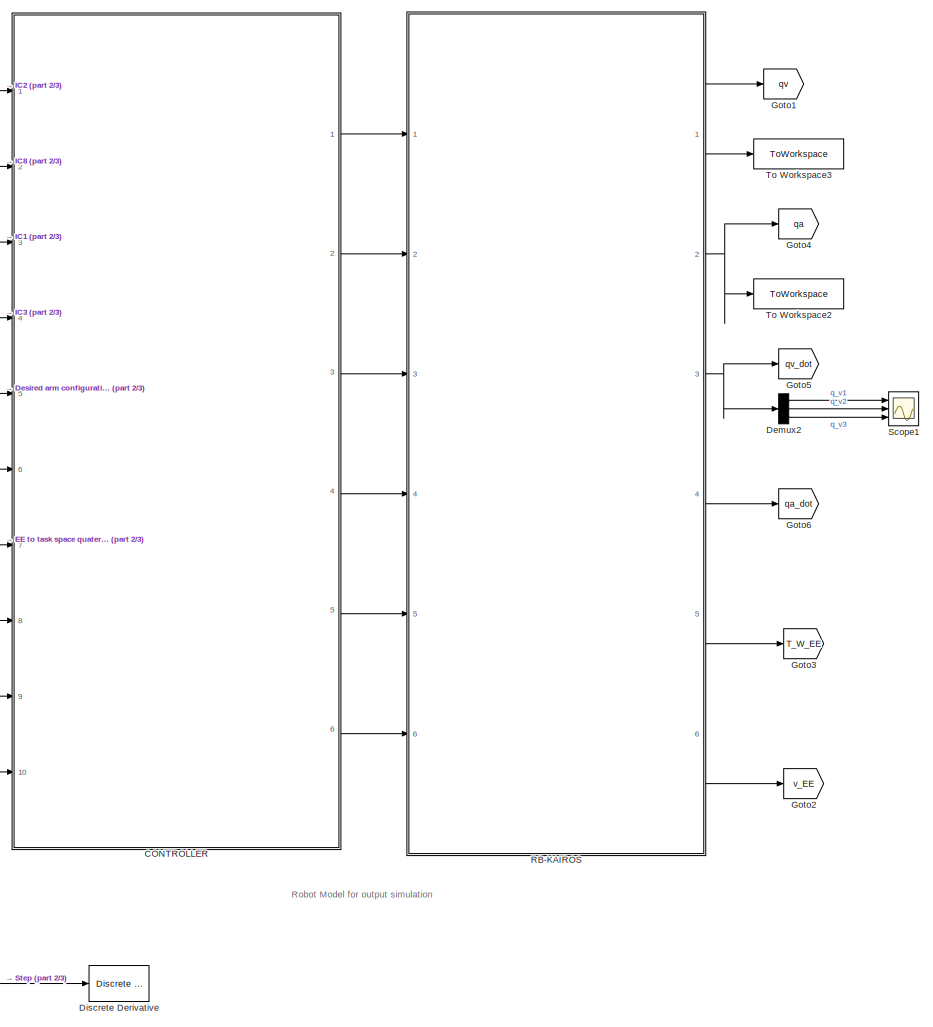
[diagram: root canvas - part 1/3, right side, full height]
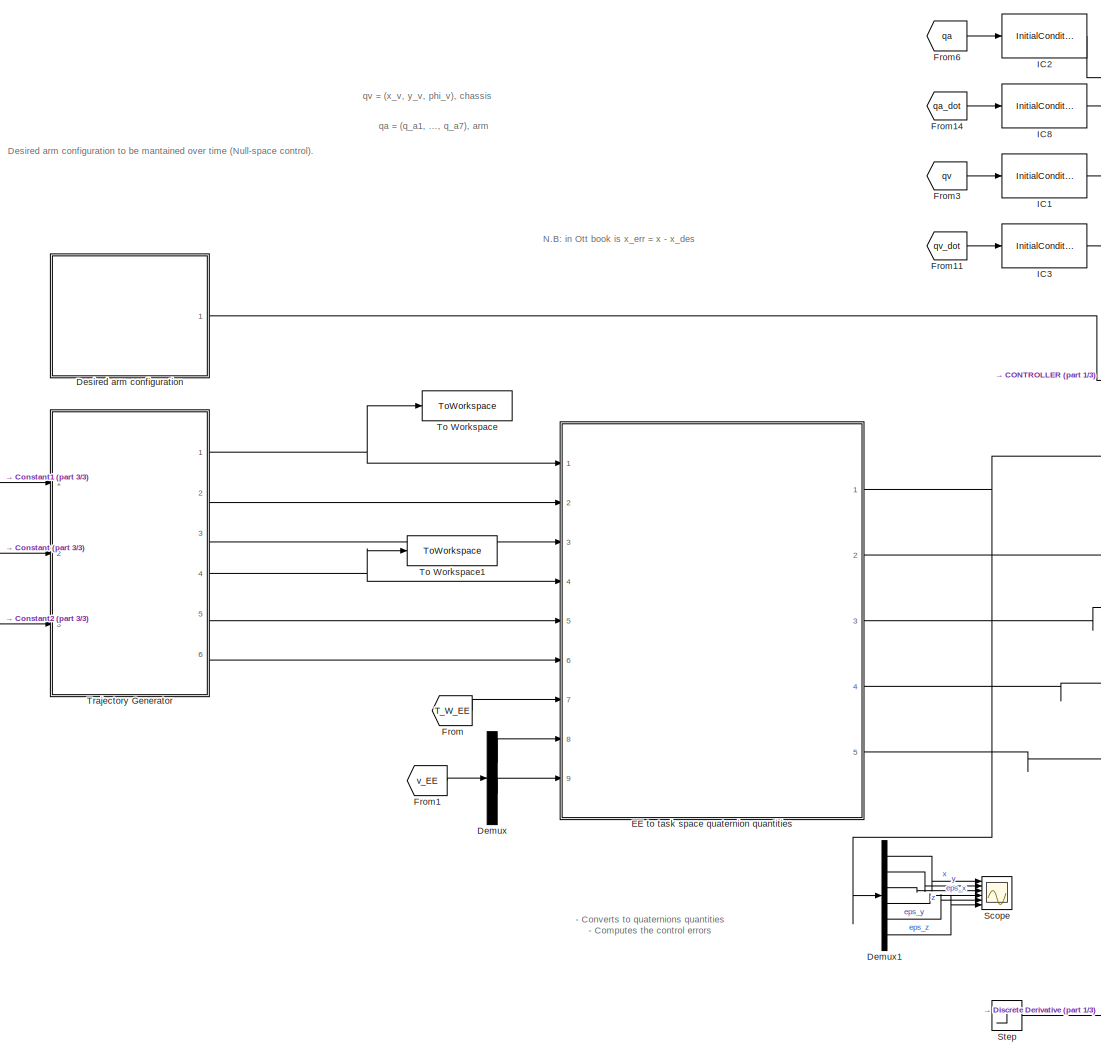
[diagram: root canvas - part 2/3, left side, full height]
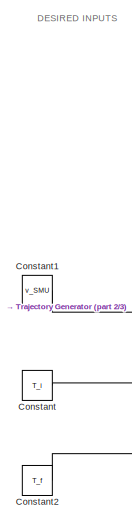
[diagram: root canvas - part 3/3, middle left region]
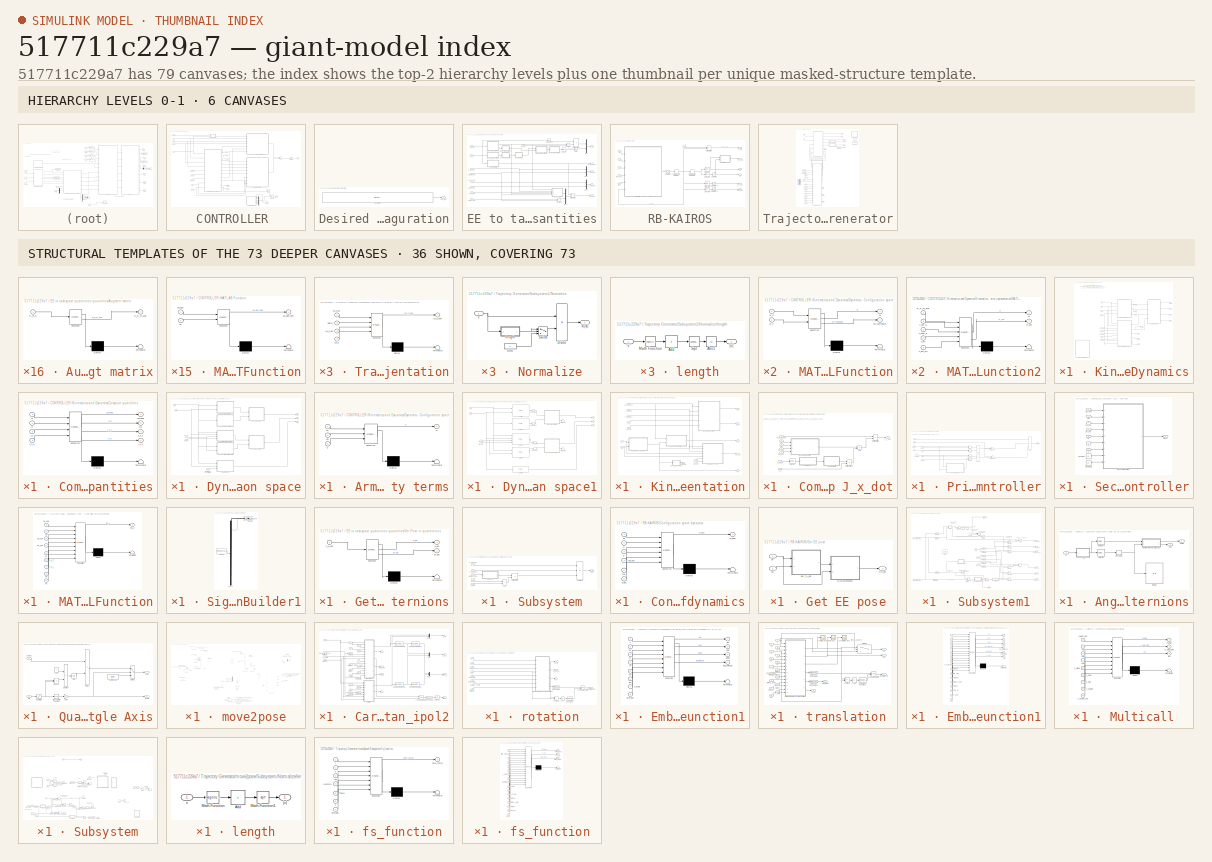
[diagram: thumbnail index - top-2 hierarchy levels (6 canvases) + 36 structural-template representatives of the remaining 73 canvases]
MODEL slx_517711c229a7
KIND model
CONFIG AbsTol = auto
CONFIG EnableMultiTasking = off
CONFIG FixedStep = Ts
CONFIG MaxStep = auto
CONFIG MinStep = auto
CONFIG RelTol = 1e-3
CONFIG SampleTimeConstraint = Unconstrained
CONFIG SolverName = ode4
CONFIG StartTime = 0.0
CONFIG StopTime = t_end
BLOCK [SubSystem] CONTROLLER 
  Ports = [10, 6]
  RequestExecContextInheritance = off
BLOCK [Outport] CONTROLLER /C
  Port = 2
BLOCK [Outport] CONTROLLER /G
  Port = 3
BLOCK [Outport] CONTROLLER /J_b
  Port = 5
BLOCK [SubSystem] CONTROLLER /Kinematics and Dynamics
  Ports = [9, 11]
  RequestExecContextInheritance = off
BLOCK [Outport] CONTROLLER /Kinematics and Dynamics/C
  Port = 2
BLOCK [SubSystem] CONTROLLER /Kinematics and Dynamics/Compute quantities
  ErrorFcn = Stateflow.Translate.translate
  PermitHierarchicalResolution = ExplicitOnly
  Ports = [4, 4]
  RequestExecContextInheritance = off
  SFBlockType = MATLAB Function
  TreatAsAtomicUnit = on
BLOCK [Demux] CONTROLLER /Kinematics and Dynamics/Compute quantities/ Demux 
  Outputs = 1
  Ports = [1, 1]
BLOCK [S-Function] CONTROLLER /Kinematics and Dynamics/Compute quantities/ SFunction 
  EnableBusSupport = on
  FunctionName = sf_sfun
  PortCounts = [4 5]
  Ports = [4, 5]
  SFcnIsStateOwnerBlock = off
  SFunctionDeploymentMode = off
  Tag = Stateflow S-Function 8
BLOCK [Terminator] CONTROLLER /Kinematics and Dynamics/Compute quantities/ Terminator 
BLOCK [Inport] CONTROLLER /Kinematics and Dynamics/Compute quantities/C
  Port = 2
BLOCK [Inport] CONTROLLER /Kinematics and Dynamics/Compute quantities/J_x
  Port = 3
BLOCK [Outport] CONTROLLER /Kinematics and Dynamics/Compute quantities/J_x_T
  Port = 3
BLOCK [Inport] CONTROLLER /Kinematics and Dynamics/Compute quantities/J_x_d
  Port = 4
BLOCK [Outport] CONTROLLER /Kinematics and Dynamics/Compute quantities/J_x_i
  Port = 4
BLOCK [Outport] CONTROLLER /Kinematics and Dynamics/Compute quantities/Lambda
BLOCK [Inport] CONTROLLER /Kinematics and Dynamics/Compute quantities/M
BLOCK [Outport] CONTROLLER /Kinematics and Dynamics/Compute quantities/mu
  Port = 2
BLOCK [SubSystem] CONTROLLER /Kinematics and Dynamics/Dynamics - Configuration space
  Commented = on
  Ports = [4, 3]
  RequestExecContextInheritance = off
BLOCK [SubSystem] CONTROLLER /Kinematics and Dynamics/Dynamics - Configuration space/Arm Coriolis//Centrifugal Matrix 
  ErrorFcn = Stateflow.Translate.translate
  PermitHierarchicalResolution = ExplicitOnly
  Ports = [4, 1]
  RequestExecContextInheritance = off
  SFBlockType = MATLAB Function
  TreatAsAtomicUnit = on
BLOCK [Demux] CONTROLLER /Kinematics and Dynamics/Dynamics - Configuration space/Arm Coriolis//Centrifugal Matrix / Demux 
  Outputs = 1
  Ports = [1, 1]
BLOCK [S-Function] CONTROLLER /Kinematics and Dynamics/Dynamics - Configuration space/Arm Coriolis//Centrifugal Matrix / SFunction 
  EnableBusSupport = on
  FunctionName = sf_sfun
  PortCounts = [4 2]
  Ports = [4, 2]
  SFcnIsStateOwnerBlock = off
  SFunctionDeploymentMode = off
  Tag = Stateflow S-Function 9
BLOCK [Terminator] CONTROLLER /Kinematics and Dynamics/Dynamics - Configuration space/Arm Coriolis//Centrifugal Matrix / Terminator 
BLOCK [Outport] CONTROLLER /Kinematics and Dynamics/Dynamics - Configuration space/Arm Coriolis//Centrifugal Matrix /C
BLOCK [Inport] CONTROLLER /Kinematics and Dynamics/Dynamics - Configuration space/Arm Coriolis//Centrifugal Matrix /qa
  Port = 2
BLOCK [Inport] CONTROLLER /Kinematics and Dynamics/Dynamics - Configuration space/Arm Coriolis//Centrifugal Matrix /qda
  Port = 4
BLOCK [Inport] CONTROLLER /Kinematics and Dynamics/Dynamics - Configuration space/Arm Coriolis//Centrifugal Matrix /qdv
  Port = 3
BLOCK [Inport] CONTROLLER /Kinematics and Dynamics/Dynamics - Configuration space/Arm Coriolis//Centrifugal Matrix /qv
BLOCK [SubSystem] CONTROLLER /Kinematics and Dynamics/Dynamics - Configuration space/Arm Gravity terms
  ErrorFcn = Stateflow.Translate.translate
  PermitHierarchicalResolution = ExplicitOnly
  Ports = [3, 1]
  RequestExecContextInheritance = off
  SFBlockType = MATLAB Function
  TreatAsAtomicUnit = on
BLOCK [Demux] CONTROLLER /Kinematics and Dynamics/Dynamics - Configuration space/Arm Gravity terms/ Demux 
  Outputs = 1
  Ports = [1, 1]
BLOCK [S-Function] CONTROLLER /Kinematics and Dynamics/Dynamics - Configuration space/Arm Gravity terms/ SFunction 
  EnableBusSupport = on
  FunctionName = sf_sfun
  PortCounts = [3 2]
  Ports = [3, 2]
  SFcnIsStateOwnerBlock = off
  SFunctionDeploymentMode = off
  Tag = Stateflow S-Function 10
BLOCK [Terminator] CONTROLLER /Kinematics and Dynamics/Dynamics - Configuration space/Arm Gravity terms/ Terminator 
BLOCK [Outport] CONTROLLER /Kinematics and Dynamics/Dynamics - Configuration space/Arm Gravity terms/G
BLOCK [Inport] CONTROLLER /Kinematics and Dynamics/Dynamics - Configuration space/Arm Gravity terms/g
  Port = 3
BLOCK [Inport] CONTROLLER /Kinematics and Dynamics/Dynamics - Configuration space/Arm Gravity terms/qa
  Port = 2
BLOCK [Inport] CONTROLLER /Kinematics and Dynamics/Dynamics - Configuration space/Arm Gravity terms/qv
BLOCK [Outport] CONTROLLER /Kinematics and Dynamics/Dynamics - Configuration space/C
  Port = 2
BLOCK [SubSystem] CONTROLLER /Kinematics and Dynamics/Dynamics - Configuration space/Chassis Coriolis//Centrifugal Matrix 
  ErrorFcn = Stateflow.Translate.translate
  PermitHierarchicalResolution = ExplicitOnly
  Ports = [2, 1]
  RequestExecContextInheritance = off
  SFBlockType = MATLAB Function
  TreatAsAtomicUnit = on
BLOCK [Demux] CONTROLLER /Kinematics and Dynamics/Dynamics - Configuration space/Chassis Coriolis//Centrifugal Matrix / Demux 
  Outputs = 1
  Ports = [1, 1]
BLOCK [S-Function] CONTROLLER /Kinematics and Dynamics/Dynamics - Configuration space/Chassis Coriolis//Centrifugal Matrix / SFunction 
  EnableBusSupport = on
  FunctionName = sf_sfun
  PortCounts = [2 2]
  Ports = [2, 2]
  SFcnIsStateOwnerBlock = off
  SFunctionDeploymentMode = off
  Tag = Stateflow S-Function 11
BLOCK [Terminator] CONTROLLER /Kinematics and Dynamics/Dynamics - Configuration space/Chassis Coriolis//Centrifugal Matrix / Terminator 
BLOCK [Outport] CONTROLLER /Kinematics and Dynamics/Dynamics - Configuration space/Chassis Coriolis//Centrifugal Matrix /Cv
BLOCK [Inport] CONTROLLER /Kinematics and Dynamics/Dynamics - Configuration space/Chassis Coriolis//Centrifugal Matrix /qdv
  Port = 2
BLOCK [Inport] CONTROLLER /Kinematics and Dynamics/Dynamics - Configuration space/Chassis Coriolis//Centrifugal Matrix /qv
BLOCK [SubSystem] CONTROLLER /Kinematics and Dynamics/Dynamics - Configuration space/Chassis Mass Matrix
  ErrorFcn = Stateflow.Translate.translate
  PermitHierarchicalResolution = ExplicitOnly
  Ports = [1, 1]
  RequestExecContextInheritance = off
  SFBlockType = MATLAB Function
  TreatAsAtomicUnit = on
BLOCK [Demux] CONTROLLER /Kinematics and Dynamics/Dynamics - Configuration space/Chassis Mass Matrix/ Demux 
  Outputs = 1
  Ports = [1, 1]
BLOCK [S-Function] CONTROLLER /Kinematics and Dynamics/Dynamics - Configuration space/Chassis Mass Matrix/ SFunction 
  EnableBusSupport = on
  FunctionName = sf_sfun
  PortCounts = [1 2]
  Ports = [1, 2]
  SFcnIsStateOwnerBlock = off
  SFunctionDeploymentMode = off
  Tag = Stateflow S-Function 12
BLOCK [Terminator] CONTROLLER /Kinematics and Dynamics/Dynamics - Configuration space/Chassis Mass Matrix/ Terminator 
BLOCK [Outport] CONTROLLER /Kinematics and Dynamics/Dynamics - Configuration space/Chassis Mass Matrix/Mv
BLOCK [Inport] CONTROLLER /Kinematics and Dynamics/Dynamics - Configuration space/Chassis Mass Matrix/qv
BLOCK [Outport] CONTROLLER /Kinematics and Dynamics/Dynamics - Configuration space/G
  Port = 3
BLOCK [Constant] CONTROLLER /Kinematics and Dynamics/Dynamics - Configuration space/Gravitational acceleration
  Value = 9.8067
BLOCK [Outport] CONTROLLER /Kinematics and Dynamics/Dynamics - Configuration space/M
BLOCK [SubSystem] CONTROLLER /Kinematics and Dynamics/Dynamics - Configuration space/MATLAB Function
  ErrorFcn = Stateflow.Translate.translate
  PermitHierarchicalResolution = ExplicitOnly
  Ports = [2, 1]
  RequestExecContextInheritance = off
  SFBlockType = MATLAB Function
  TreatAsAtomicUnit = on
BLOCK [Demux] CONTROLLER /Kinematics and Dynamics/Dynamics - Configuration space/MATLAB Function/ Demux 
  Outputs = 1
  Ports = [1, 1]
BLOCK [S-Function] CONTROLLER /Kinematics and Dynamics/Dynamics - Configuration space/MATLAB Function/ SFunction 
  EnableBusSupport = on
  FunctionName = sf_sfun
  PortCounts = [2 2]
  Ports = [2, 2]
  SFcnIsStateOwnerBlock = off
  SFunctionDeploymentMode = off
  Tag = Stateflow S-Function 13
BLOCK [Terminator] CONTROLLER /Kinematics and Dynamics/Dynamics - Configuration space/MATLAB Function/ Terminator 
BLOCK [Outport] CONTROLLER /Kinematics and Dynamics/Dynamics - Configuration space/MATLAB Function/M
BLOCK [Inport] CONTROLLER /Kinematics and Dynamics/Dynamics - Configuration space/MATLAB Function/M_a
BLOCK [Inport] CONTROLLER /Kinematics and Dynamics/Dynamics - Configuration space/MATLAB Function/M_v
  Port = 2
BLOCK [SubSystem] CONTROLLER /Kinematics and Dynamics/Dynamics - Configuration space/MATLAB Function1
  ErrorFcn = Stateflow.Translate.translate
  PermitHierarchicalResolution = ExplicitOnly
  Ports = [2, 1]
  RequestExecContextInheritance = off
  SFBlockType = MATLAB Function
  TreatAsAtomicUnit = on
BLOCK [Demux] CONTROLLER /Kinematics and Dynamics/Dynamics - Configuration space/MATLAB Function1/ Demux 
  Outputs = 1
  Ports = [1, 1]
BLOCK [S-Function] CONTROLLER /Kinematics and Dynamics/Dynamics - Configuration space/MATLAB Function1/ SFunction 
  EnableBusSupport = on
  FunctionName = sf_sfun
  PortCounts = [2 2]
  Ports = [2, 2]
  SFcnIsStateOwnerBlock = off
  SFunctionDeploymentMode = off
  Tag = Stateflow S-Function 26
BLOCK [Terminator] CONTROLLER /Kinematics and Dynamics/Dynamics - Configuration space/MATLAB Function1/ Terminator 
BLOCK [Outport] CONTROLLER /Kinematics and Dynamics/Dynamics - Configuration space/MATLAB Function1/C
BLOCK [Inport] CONTROLLER /Kinematics and Dynamics/Dynamics - Configuration space/MATLAB Function1/C_a
BLOCK [Inport] CONTROLLER /Kinematics and Dynamics/Dynamics - Configuration space/MATLAB Function1/C_v
  Port = 2
BLOCK [SubSystem] CONTROLLER /Kinematics and Dynamics/Dynamics - Configuration space/MATLAB Function4
  ErrorFcn = Stateflow.Translate.translate
  PermitHierarchicalResolution = ExplicitOnly
  Ports = [2, 1]
  RequestExecContextInheritance = off
  SFBlockType = MATLAB Function
  TreatAsAtomicUnit = on
BLOCK [Demux] CONTROLLER /Kinematics and Dynamics/Dynamics - Configuration space/MATLAB Function4/ Demux 
  Outputs = 1
  Ports = [1, 1]
BLOCK [S-Function] CONTROLLER /Kinematics and Dynamics/Dynamics - Configuration space/MATLAB Function4/ SFunction 
  EnableBusSupport = on
  FunctionName = sf_sfun
  PortCounts = [2 2]
  Ports = [2, 2]
  SFcnIsStateOwnerBlock = off
  SFunctionDeploymentMode = off
  Tag = Stateflow S-Function 45
BLOCK [Terminator] CONTROLLER /Kinematics and Dynamics/Dynamics - Configuration space/MATLAB Function4/ Terminator 
BLOCK [Outport] CONTROLLER /Kinematics and Dynamics/Dynamics - Configuration space/MATLAB Function4/M
BLOCK [Inport] CONTROLLER /Kinematics and Dynamics/Dynamics - Configuration space/MATLAB Function4/qa
  Port = 2
BLOCK [Inport] CONTROLLER /Kinematics and Dynamics/Dynamics - Configuration space/MATLAB Function4/qv
BLOCK [Inport] CONTROLLER /Kinematics and Dynamics/Dynamics - Configuration space/qa
  Port = 2
BLOCK [Inport] CONTROLLER /Kinematics and Dynamics/Dynamics - Configuration space/qa_dot
  Port = 4
BLOCK [Inport] CONTROLLER /Kinematics and Dynamics/Dynamics - Configuration space/qv
BLOCK [Inport] CONTROLLER /Kinematics and Dynamics/Dynamics - Configuration space/qv_dot 
  Port = 3
BLOCK [SubSystem] CONTROLLER /Kinematics and Dynamics/Dynamics - Configuration space1
  Ports = [4, 3]
  RequestExecContextInheritance = off
BLOCK [Outport] CONTROLLER /Kinematics and Dynamics/Dynamics - Configuration space1/C
  Port = 2
BLOCK [CCaller] CONTROLLER /Kinematics and Dynamics/Dynamics - Configuration space1/C Caller
  FunctionName = get_C
  PortSpecificationStruct = %)30     .    F @   8    (     @         %    "     4    !     0         %  0 "0    $    _    07)G3F%M90  4&]R=$YA;64 4V-O<&4     26YD97@     5'EP90      4VEZ90      27-';&]B86P   X    P    !@    @    $          4    (     0    (    !         !   @!Q=@  #@   #     &    "     0         !0    @    !     @    $         $  " '%V   .    .     8    (    !          %    "     $    %     0         0    !0...<+2546ch>
  Ports = [4, 1]
BLOCK [CCaller] CONTROLLER /Kinematics and Dynamics/Dynamics - Configuration space1/C Caller1
  FunctionName = get_Cv
  PortSpecificationStruct = %)30     .    6 4   8    (     @         %    "     ,    !     0         %  0 "0    $    _    07)G3F%M90  4&]R=$YA;64 4V-O<&4     26YD97@     5'EP90      4VEZ90      27-';&]B86P   X    P    !@    @    $          4    (     0    (    !         !   @!Q=@  #@   #     &    "     0         !0    @    !     @    $         $  " '%V   .    .     8    (    !          %    "     $    %     0         0    !0...<+1437ch>
  Ports = [2, 1]
BLOCK [CCaller] CONTROLLER /Kinematics and Dynamics/Dynamics - Configuration space1/C Caller3
  FunctionName = get_G
  PortSpecificationStruct = %)30     .    N ,   8    (     @         %    "     (    !     0         %  0 "0    $    _    07)G3F%M90  4&]R=$YA;64 4V-O<&4     26YD97@     5'EP90      4VEZ90      27-';&]B86P   X    P    !@    @    $          4    (     0    (    !         !   @!Q80  #@   #     &    "     0         !0    @    !     @    $         $  " '%A   .    .     8    (    !          %    "     $    %     0         0    !0...<+882ch>
  Ports = [1, 1]
BLOCK [CCaller] CONTROLLER /Kinematics and Dynamics/Dynamics - Configuration space1/C Caller4
  FunctionName = get_M
  PortSpecificationStruct = %)30     .    6 4   8    (     @         %    "     ,    !     0         %  0 "0    $    _    07)G3F%M90  4&]R=$YA;64 4V-O<&4     26YD97@     5'EP90      4VEZ90      27-';&]B86P   X    P    !@    @    $          4    (     0    (    !         !   @!Q=@  #@   #     &    "     0         !0    @    !     @    $         $  " '%V   .    .     8    (    !          %    "     $    %     0         0    !0...<+1437ch>
  Ports = [2, 1]
BLOCK [CCaller] CONTROLLER /Kinematics and Dynamics/Dynamics - Configuration space1/C Caller5
  FunctionName = get_Mv
  PortSpecificationStruct = %)30     .    N ,   8    (     @         %    "     (    !     0         %  0 "0    $    _    07)G3F%M90  4&]R=$YA;64 4V-O<&4     26YD97@     5'EP90      4VEZ90      27-';&]B86P   X    P    !@    @    $          4    (     0    (    !         !   @!Q=@  #@   #     &    "     0         !0    @    !     @    $         $  " '%V   .    .     8    (    !          %    "     $    %     0         0    !0...<+882ch>
  Ports = [1, 1]
BLOCK [Outport] CONTROLLER /Kinematics and Dynamics/Dynamics - Configuration space1/G
  Port = 3
BLOCK [Outport] CONTROLLER /Kinematics and Dynamics/Dynamics - Configuration space1/M
BLOCK [SubSystem] CONTROLLER /Kinematics and Dynamics/Dynamics - Configuration space1/MATLAB Function
  ErrorFcn = Stateflow.Translate.translate
  PermitHierarchicalResolution = ExplicitOnly
  Ports = [2, 2]
  RequestExecContextInheritance = off
  SFBlockType = MATLAB Function
  TreatAsAtomicUnit = on
BLOCK [Demux] CONTROLLER /Kinematics and Dynamics/Dynamics - Configuration space1/MATLAB Function/ Demux 
  Outputs = 1
  Ports = [1, 1]
BLOCK [S-Function] CONTROLLER /Kinematics and Dynamics/Dynamics - Configuration space1/MATLAB Function/ SFunction 
  EnableBusSupport = on
  FunctionName = sf_sfun
  PortCounts = [2 3]
  Ports = [2, 3]
  SFcnIsStateOwnerBlock = off
  SFunctionDeploymentMode = off
  Tag = Stateflow S-Function 19
BLOCK [Terminator] CONTROLLER /Kinematics and Dynamics/Dynamics - Configuration space1/MATLAB Function/ Terminator 
BLOCK [Outport] CONTROLLER /Kinematics and Dynamics/Dynamics - Configuration space1/MATLAB Function/M
BLOCK [Inport] CONTROLLER /Kinematics and Dynamics/Dynamics - Configuration space1/MATLAB Function/M_a
BLOCK [Inport] CONTROLLER /Kinematics and Dynamics/Dynamics - Configuration space1/MATLAB Function/M_v
  Port = 2
BLOCK [Outport] CONTROLLER /Kinematics and Dynamics/Dynamics - Configuration space1/MATLAB Function/Mv_nowheels
  Port = 2
BLOCK [SubSystem] CONTROLLER /Kinematics and Dynamics/Dynamics - Configuration space1/MATLAB Function1
  ErrorFcn = Stateflow.Translate.translate
  PermitHierarchicalResolution = ExplicitOnly
  Ports = [2, 2]
  RequestExecContextInheritance = off
  SFBlockType = MATLAB Function
  TreatAsAtomicUnit = on
BLOCK [Demux] CONTROLLER /Kinematics and Dynamics/Dynamics - Configuration space1/MATLAB Function1/ Demux 
  Outputs = 1
  Ports = [1, 1]
BLOCK [S-Function] CONTROLLER /Kinematics and Dynamics/Dynamics - Configuration space1/MATLAB Function1/ SFunction 
  EnableBusSupport = on
  FunctionName = sf_sfun
  PortCounts = [2 3]
  Ports = [2, 3]
  SFcnIsStateOwnerBlock = off
  SFunctionDeploymentMode = off
  Tag = Stateflow S-Function 20
BLOCK [Terminator] CONTROLLER /Kinematics and Dynamics/Dynamics - Configuration space1/MATLAB Function1/ Terminator 
BLOCK [Outport] CONTROLLER /Kinematics and Dynamics/Dynamics - Configuration space1/MATLAB Function1/C
BLOCK [Inport] CONTROLLER /Kinematics and Dynamics/Dynamics - Configuration space1/MATLAB Function1/C_a
BLOCK [Inport] CONTROLLER /Kinematics and Dynamics/Dynamics - Configuration space1/MATLAB Function1/C_v
  Port = 2
BLOCK [Outport] CONTROLLER /Kinematics and Dynamics/Dynamics - Configuration space1/MATLAB Function1/Cv_nowheels
  Port = 2
BLOCK [Reshape] CONTROLLER /Kinematics and Dynamics/Dynamics - Configuration space1/Reshape
  OutputDimensionality = Customize
  OutputDimensions = [10,10]
  Ports = [1, 1]
BLOCK [Reshape] CONTROLLER /Kinematics and Dynamics/Dynamics - Configuration space1/Reshape1
  OutputDimensionality = Customize
  OutputDimensions = [7,7]
  Ports = [1, 1]
BLOCK [Reshape] CONTROLLER /Kinematics and Dynamics/Dynamics - Configuration space1/Reshape2
  OutputDimensionality = Customize
  OutputDimensions = [7,7]
  Ports = [1, 1]
BLOCK [Reshape] CONTROLLER /Kinematics and Dynamics/Dynamics - Configuration space1/Reshape3
  OutputDimensionality = Customize
  OutputDimensions = [10,10]
  Ports = [1, 1]
BLOCK [Terminator] CONTROLLER /Kinematics and Dynamics/Dynamics - Configuration space1/Terminator
BLOCK [Terminator] CONTROLLER /Kinematics and Dynamics/Dynamics - Configuration space1/Terminator1
BLOCK [Inport] CONTROLLER /Kinematics and Dynamics/Dynamics - Configuration space1/qa
  Port = 2
BLOCK [Inport] CONTROLLER /Kinematics and Dynamics/Dynamics - Configuration space1/qa_dot
  Port = 4
BLOCK [Inport] CONTROLLER /Kinematics and Dynamics/Dynamics - Configuration space1/qv
BLOCK [Inport] CONTROLLER /Kinematics and Dynamics/Dynamics - Configuration space1/qv_dot 
  Port = 3
BLOCK [Outport] CONTROLLER /Kinematics and Dynamics/G
  Port = 3
BLOCK [Outport] CONTROLLER /Kinematics and Dynamics/J_b
  Port = 11
BLOCK [Outport] CONTROLLER /Kinematics and Dynamics/J_x_T
  Port = 9
BLOCK [Outport] CONTROLLER /Kinematics and Dynamics/J_x_dot
  Port = 10
BLOCK [Outport] CONTROLLER /Kinematics and Dynamics/J_x_i
  Port = 8
BLOCK [SubSystem] CONTROLLER /Kinematics and Dynamics/Kinematics - error representation
  Ports = [9, 5]
  RequestExecContextInheritance = off
BLOCK [SubSystem] CONTROLLER /Kinematics and Dynamics/Kinematics - error representation/Compute J_x_dot
  Ports = [7, 1]
  RequestExecContextInheritance = off
BLOCK [Sum] CONTROLLER /Kinematics and Dynamics/Kinematics - error representation/Compute J_x_dot/Add
  IconShape = rectangular
  Inputs = +-
  Ports = [2, 1]
BLOCK [SubSystem] CONTROLLER /Kinematics and Dynamics/Kinematics - error representation/Compute J_x_dot/Augment matrix
  ErrorFcn = Stateflow.Translate.translate
  PermitHierarchicalResolution = ExplicitOnly
  Ports = [1, 1]
  RequestExecContextInheritance = off
  SFBlockType = MATLAB Function
  TreatAsAtomicUnit = on
BLOCK [Demux] CONTROLLER /Kinematics and Dynamics/Kinematics - error representation/Compute J_x_dot/Augment matrix/ Demux 
  Outputs = 1
  Ports = [1, 1]
BLOCK [S-Function] CONTROLLER /Kinematics and Dynamics/Kinematics - error representation/Compute J_x_dot/Augment matrix/ SFunction 
  EnableBusSupport = on
  FunctionName = sf_sfun
  PortCounts = [1 2]
  Ports = [1, 2]
  SFcnIsStateOwnerBlock = off
  SFunctionDeploymentMode = off
  Tag = Stateflow S-Function 24
BLOCK [Terminator] CONTROLLER /Kinematics and Dynamics/Kinematics - error representation/Compute J_x_dot/Augment matrix/ Terminator 
BLOCK [Inport] CONTROLLER /Kinematics and Dynamics/Kinematics - error representation/Compute J_x_dot/Augment matrix/M
BLOCK [Outport] CONTROLLER /Kinematics and Dynamics/Kinematics - error representation/Compute J_x_dot/Augment matrix/M_aug
BLOCK [Inport] CONTROLLER /Kinematics and Dynamics/Kinematics - error representation/Compute J_x_dot/J_b
BLOCK [Outport] CONTROLLER /Kinematics and Dynamics/Kinematics - error representation/Compute J_x_dot/J_x_dot
BLOCK [SubSystem] CONTROLLER /Kinematics and Dynamics/Kinematics - error representation/Compute J_x_dot/MATLAB Function
  ErrorFcn = Stateflow.Translate.translate
  PermitHierarchicalResolution = ExplicitOnly
  Ports = [4, 1]
  RequestExecContextInheritance = off
  SFBlockType = MATLAB Function
  TreatAsAtomicUnit = on
BLOCK [Demux] CONTROLLER /Kinematics and Dynamics/Kinematics - error representation/Compute J_x_dot/MATLAB Function/ Demux 
  Outputs = 1
  Ports = [1, 1]
BLOCK [S-Function] CONTROLLER /Kinematics and Dynamics/Kinematics - error representation/Compute J_x_dot/MATLAB Function/ SFunction 
  EnableBusSupport = on
  FunctionName = sf_sfun
  PortCounts = [4 2]
  Ports = [4, 2]
  SFcnIsStateOwnerBlock = off
  SFunctionDeploymentMode = off
  Tag = Stateflow S-Function 25
BLOCK [Terminator] CONTROLLER /Kinematics and Dynamics/Kinematics - error representation/Compute J_x_dot/MATLAB Function/ Terminator 
BLOCK [Outport] CONTROLLER /Kinematics and Dynamics/Kinematics - error representation/Compute J_x_dot/MATLAB Function/J_dot
BLOCK [Inport] CONTROLLER /Kinematics and Dynamics/Kinematics - error representation/Compute J_x_dot/MATLAB Function/qa
  Port = 2
BLOCK [Inport] CONTROLLER /Kinematics and Dynamics/Kinematics - error representation/Compute J_x_dot/MATLAB Function/qa_dot
  Port = 4
BLOCK [Inport] CONTROLLER /Kinematics and Dynamics/Kinematics - error representation/Compute J_x_dot/MATLAB Function/qv
BLOCK [Inport] CONTROLLER /Kinematics and Dynamics/Kinematics - error representation/Compute J_x_dot/MATLAB Function/qv_dot
  Port = 3
BLOCK [Product] CONTROLLER /Kinematics and Dynamics/Kinematics - error representation/Compute J_x_dot/MatrixMultiply
  Multiplication = Matrix(*)
  Ports = [2, 1]
BLOCK [Product] CONTROLLER /Kinematics and Dynamics/Kinematics - error representation/Compute J_x_dot/MatrixMultiply1
  Multiplication = Matrix(*)
  Ports = [2, 1]
BLOCK [Inport] CONTROLLER /Kinematics and Dynamics/Kinematics - error representation/Compute J_x_dot/R_D_W_aug
  Port = 2
BLOCK [SubSystem] CONTROLLER /Kinematics and Dynamics/Kinematics - error representation/Compute J_x_dot/S(omega)
  ErrorFcn = Stateflow.Translate.translate
  PermitHierarchicalResolution = ExplicitOnly
  Ports = [1, 1]
  RequestExecContextInheritance = off
  SFBlockType = MATLAB Function
  TreatAsAtomicUnit = on
BLOCK [Demux] CONTROLLER /Kinematics and Dynamics/Kinematics - error representation/Compute J_x_dot/S(omega)/ Demux 
  Outputs = 1
  Ports = [1, 1]
BLOCK [S-Function] CONTROLLER /Kinematics and Dynamics/Kinematics - error representation/Compute J_x_dot/S(omega)/ SFunction 
  EnableBusSupport = on
  FunctionName = sf_sfun
  PortCounts = [1 2]
  Ports = [1, 2]
  SFcnIsStateOwnerBlock = off
  SFunctionDeploymentMode = off
  Tag = Stateflow S-Function 23
BLOCK [Terminator] CONTROLLER /Kinematics and Dynamics/Kinematics - error representation/Compute J_x_dot/S(omega)/ Terminator 
BLOCK [Outport] CONTROLLER /Kinematics and Dynamics/Kinematics - error representation/Compute J_x_dot/S(omega)/S
BLOCK [Inport] CONTROLLER /Kinematics and Dynamics/Kinematics - error representation/Compute J_x_dot/S(omega)/v
BLOCK [Selector] CONTROLLER /Kinematics and Dynamics/Kinematics - error representation/Compute J_x_dot/Selector
  IndexOptions = Index vector (dialog)
  Indices = [4:6]
  InputPortWidth = 6
  OutputSizes = 1
  Ports = [1, 1]
BLOCK [Inport] CONTROLLER /Kinematics and Dynamics/Kinematics - error representation/Compute J_x_dot/qa
  Port = 5
BLOCK [Inport] CONTROLLER /Kinematics and Dynamics/Kinematics - error representation/Compute J_x_dot/qa_dot
  Port = 7
BLOCK [Inport] CONTROLLER /Kinematics and Dynamics/Kinematics - error representation/Compute J_x_dot/qv
  Port = 4
BLOCK [Inport] CONTROLLER /Kinematics and Dynamics/Kinematics - error representation/Compute J_x_dot/qv_dot
  Port = 6
BLOCK [Inport] CONTROLLER /Kinematics and Dynamics/Kinematics - error representation/Compute J_x_dot/x_dot_d
  Port = 3
BLOCK [Outport] CONTROLLER /Kinematics and Dynamics/Kinematics - error representation/J_b
  Port = 5
BLOCK [Outport] CONTROLLER /Kinematics and Dynamics/Kinematics - error representation/J_x
BLOCK [Outport] CONTROLLER /Kinematics and Dynamics/Kinematics - error representation/J_x_dot
  Port = 2
BLOCK [SubSystem] CONTROLLER /Kinematics and Dynamics/Kinematics - error representation/MATLAB Function1
  ErrorFcn = Stateflow.Translate.translate
  PermitHierarchicalResolution = ExplicitOnly
  Ports = [1, 1]
  RequestExecContextInheritance = off
  SFBlockType = MATLAB Function
  TreatAsAtomicUnit = on
BLOCK [Demux] CONTROLLER /Kinematics and Dynamics/Kinematics - error representation/MATLAB Function1/ Demux 
  Outputs = 1
  Ports = [1, 1]
BLOCK [S-Function] CONTROLLER /Kinematics and Dynamics/Kinematics - error representation/MATLAB Function1/ SFunction 
  EnableBusSupport = on
  FunctionName = sf_sfun
  PortCounts = [1 2]
  Ports = [1, 2]
  SFcnIsStateOwnerBlock = off
  SFunctionDeploymentMode = off
  Tag = Stateflow S-Function 47
BLOCK [Terminator] CONTROLLER /Kinematics and Dynamics/Kinematics - error representation/MATLAB Function1/ Terminator 
BLOCK [Inport] CONTROLLER /Kinematics and Dynamics/Kinematics - error representation/MATLAB Function1/J
BLOCK [Outport] CONTROLLER /Kinematics and Dynamics/Kinematics - error representation/MATLAB Function1/t
BLOCK [SubSystem] CONTROLLER /Kinematics and Dynamics/Kinematics - error representation/MATLAB Function2
  ErrorFcn = Stateflow.Translate.translate
  PermitHierarchicalResolution = ExplicitOnly
  Ports = [5, 2]
  RequestExecContextInheritance = off
  SFBlockType = MATLAB Function
  TreatAsAtomicUnit = on
BLOCK [Demux] CONTROLLER /Kinematics and Dynamics/Kinematics - error representation/MATLAB Function2/ Demux 
  Outputs = 1
  Ports = [1, 1]
BLOCK [S-Function] CONTROLLER /Kinematics and Dynamics/Kinematics - error representation/MATLAB Function2/ SFunction 
  EnableBusSupport = on
  FunctionName = sf_sfun
  PortCounts = [5 3]
  Ports = [5, 3]
  SFcnIsStateOwnerBlock = off
  SFunctionDeploymentMode = off
  Tag = Stateflow S-Function 48
BLOCK [Terminator] CONTROLLER /Kinematics and Dynamics/Kinematics - error representation/MATLAB Function2/ Terminator 
BLOCK [Inport] CONTROLLER /Kinematics and Dynamics/Kinematics - error representation/MATLAB Function2/R_D_W_aug
BLOCK [Outport] CONTROLLER /Kinematics and Dynamics/Kinematics - error representation/MATLAB Function2/vt
BLOCK [Outport] CONTROLLER /Kinematics and Dynamics/Kinematics - error representation/MATLAB Function2/vt_dot
  Port = 2
BLOCK [Inport] CONTROLLER /Kinematics and Dynamics/Kinematics - error representation/MATLAB Function2/x_ddot_d
  Port = 3
BLOCK [Inport] CONTROLLER /Kinematics and Dynamics/Kinematics - error representation/MATLAB Function2/x_dot_d
  Port = 2
BLOCK [Inport] CONTROLLER /Kinematics and Dynamics/Kinematics - error representation/MATLAB Function2/x_dot_err
  Port = 5
BLOCK [Inport] CONTROLLER /Kinematics and Dynamics/Kinematics - error representation/MATLAB Function2/x_err
  Port = 4
BLOCK [SubSystem] CONTROLLER /Kinematics and Dynamics/Kinematics - error representation/MATLAB Function3
  ErrorFcn = Stateflow.Translate.translate
  PermitHierarchicalResolution = ExplicitOnly
  Ports = [2, 1]
  RequestExecContextInheritance = off
  SFBlockType = MATLAB Function
  TreatAsAtomicUnit = on
BLOCK [Demux] CONTROLLER /Kinematics and Dynamics/Kinematics - error representation/MATLAB Function3/ Demux 
  Outputs = 1
  Ports = [1, 1]
BLOCK [S-Function] CONTROLLER /Kinematics and Dynamics/Kinematics - error representation/MATLAB Function3/ SFunction 
  EnableBusSupport = on
  FunctionName = sf_sfun
  PortCounts = [2 2]
  Ports = [2, 2]
  SFcnIsStateOwnerBlock = off
  SFunctionDeploymentMode = off
  Tag = Stateflow S-Function 49
BLOCK [Terminator] CONTROLLER /Kinematics and Dynamics/Kinematics - error representation/MATLAB Function3/ Terminator 
BLOCK [Inport] CONTROLLER /Kinematics and Dynamics/Kinematics - error representation/MATLAB Function3/J_b
  Port = 2
BLOCK [Outport] CONTROLLER /Kinematics and Dynamics/Kinematics - error representation/MATLAB Function3/J_x
BLOCK [Inport] CONTROLLER /Kinematics and Dynamics/Kinematics - error representation/MATLAB Function3/R_W_D_aug
BLOCK [Inport] CONTROLLER /Kinematics and Dynamics/Kinematics - error representation/R_D_W_aug
  Port = 3
BLOCK [Terminator] CONTROLLER /Kinematics and Dynamics/Kinematics - error representation/Terminator
BLOCK [SubSystem] CONTROLLER /Kinematics and Dynamics/Kinematics - error representation/Whole-Body Jacobian
  ErrorFcn = Stateflow.Translate.translate
  PermitHierarchicalResolution = ExplicitOnly
  Ports = [2, 1]
  RequestExecContextInheritance = off
  SFBlockType = MATLAB Function
  TreatAsAtomicUnit = on
BLOCK [Demux] CONTROLLER /Kinematics and Dynamics/Kinematics - error representation/Whole-Body Jacobian/ Demux 
  Outputs = 1
  Ports = [1, 1]
BLOCK [S-Function] CONTROLLER /Kinematics and Dynamics/Kinematics - error representation/Whole-Body Jacobian/ SFunction 
  EnableBusSupport = on
  FunctionName = sf_sfun
  PortCounts = [2 2]
  Ports = [2, 2]
  SFcnIsStateOwnerBlock = off
  SFunctionDeploymentMode = off
  Tag = Stateflow S-Function 50
BLOCK [Terminator] CONTROLLER /Kinematics and Dynamics/Kinematics - error representation/Whole-Body Jacobian/ Terminator 
BLOCK [Outport] CONTROLLER /Kinematics and Dynamics/Kinematics - error representation/Whole-Body Jacobian/J
BLOCK [Inport] CONTROLLER /Kinematics and Dynamics/Kinematics - error representation/Whole-Body Jacobian/qa
  Port = 2
BLOCK [Inport] CONTROLLER /Kinematics and Dynamics/Kinematics - error representation/Whole-Body Jacobian/qv
BLOCK [Inport] CONTROLLER /Kinematics and Dynamics/Kinematics - error representation/qa
  Port = 2
BLOCK [Inport] CONTROLLER /Kinematics and Dynamics/Kinematics - error representation/qa_dot
  Port = 9
BLOCK [Inport] CONTROLLER /Kinematics and Dynamics/Kinematics - error representation/qv
BLOCK [Inport] CONTROLLER /Kinematics and Dynamics/Kinematics - error representation/qv_dot
  Port = 8
BLOCK [Outport] CONTROLLER /Kinematics and Dynamics/Kinematics - error representation/vt
  Port = 3
BLOCK [Outport] CONTROLLER /Kinematics and Dynamics/Kinematics - error representation/vt_dot
  Port = 4
BLOCK [Inport] CONTROLLER /Kinematics and Dynamics/Kinematics - error representation/x_ddot_des
  Port = 5
BLOCK [Inport] CONTROLLER /Kinematics and Dynamics/Kinematics - error representation/x_dot_des
  Port = 4
BLOCK [Inport] CONTROLLER /Kinematics and Dynamics/Kinematics - error representation/x_dot_err
  Port = 7
BLOCK [Inport] CONTROLLER /Kinematics and Dynamics/Kinematics - error representation/x_err
  Port = 6
BLOCK [Outport] CONTROLLER /Kinematics and Dynamics/Lambda
  Port = 4
BLOCK [Outport] CONTROLLER /Kinematics and Dynamics/M
BLOCK [Inport] CONTROLLER /Kinematics and Dynamics/R_D_W_aug
  Port = 5
BLOCK [Outport] CONTROLLER /Kinematics and Dynamics/mu
  Port = 5
BLOCK [Inport] CONTROLLER /Kinematics and Dynamics/qa
  Port = 2
BLOCK [Inport] CONTROLLER /Kinematics and Dynamics/qa_dot
  Port = 4
BLOCK [Inport] CONTROLLER /Kinematics and Dynamics/qv
BLOCK [Inport] CONTROLLER /Kinematics and Dynamics/qv_dot
  Port = 3
BLOCK [Outport] CONTROLLER /Kinematics and Dynamics/vt
  Port = 6
BLOCK [Outport] CONTROLLER /Kinematics and Dynamics/vt_dot
  Port = 7
BLOCK [Inport] CONTROLLER /Kinematics and Dynamics/x_ddot_des
  Port = 7
BLOCK [Inport] CONTROLLER /Kinematics and Dynamics/x_dot_des
  Port = 6
BLOCK [Inport] CONTROLLER /Kinematics and Dynamics/x_dot_err
  Port = 9
BLOCK [Inport] CONTROLLER /Kinematics and Dynamics/x_err
  Port = 8
BLOCK [Outport] CONTROLLER /M
BLOCK [SubSystem] CONTROLLER /MATLAB Function
  ErrorFcn = Stateflow.Translate.translate
  PermitHierarchicalResolution = ExplicitOnly
  Ports = [2, 1]
  RequestExecContextInheritance = off
  SFBlockType = MATLAB Function
  TreatAsAtomicUnit = on
BLOCK [Demux] CONTROLLER /MATLAB Function/ Demux 
  Outputs = 1
  Ports = [1, 1]
BLOCK [S-Function] CONTROLLER /MATLAB Function/ SFunction 
  EnableBusSupport = on
  FunctionName = sf_sfun
  PortCounts = [2 2]
  Ports = [2, 2]
  SFcnIsStateOwnerBlock = off
  SFunctionDeploymentMode = off
  Tag = Stateflow S-Function 51
BLOCK [Terminator] CONTROLLER /MATLAB Function/ Terminator 
BLOCK [Inport] CONTROLLER /MATLAB Function/qa_des
BLOCK [Outport] CONTROLLER /MATLAB Function/qa_des_new
BLOCK [Inport] CONTROLLER /MATLAB Function/qv
  Port = 2
BLOCK [Product] CONTROLLER /MatrixMultiply
  Multiplication = Matrix(*)
  Ports = [2, 1]
BLOCK [Mux] CONTROLLER /Mux
  DisplayOption = bar
  Inputs = 6
  Ports = [6, 1]
BLOCK [SubSystem] CONTROLLER /Primary task - Controller
  Ports = [8, 1]
  RequestExecContextInheritance = off
BLOCK [Sum] CONTROLLER /Primary task - Controller/Add
  IconShape = rectangular
  Inputs = --
  Ports = [2, 1]
BLOCK [Constant] CONTROLLER /Primary task - Controller/Constant1
  Value = Kc
BLOCK [Inport] CONTROLLER /Primary task - Controller/G
BLOCK [Inport] CONTROLLER /Primary task - Controller/J_x_T
  Port = 8
BLOCK [Inport] CONTROLLER /Primary task - Controller/Lambda
  Port = 2
BLOCK [SubSystem] CONTROLLER /Primary task - Controller/MATLAB Function
  ErrorFcn = Stateflow.Translate.translate
  PermitHierarchicalResolution = ExplicitOnly
  Ports = [2, 1]
  RequestExecContextInheritance = off
  SFBlockType = MATLAB Function
  TreatAsAtomicUnit = on
BLOCK [Demux] CONTROLLER /Primary task - Controller/MATLAB Function/ Demux 
  Outputs = 1
  Ports = [1, 1]
BLOCK [S-Function] CONTROLLER /Primary task - Controller/MATLAB Function/ SFunction 
  EnableBusSupport = on
  FunctionName = sf_sfun
  PortCounts = [2 2]
  Ports = [2, 2]
  SFcnIsStateOwnerBlock = off
  SFunctionDeploymentMode = off
  Tag = Stateflow S-Function 52
BLOCK [Terminator] CONTROLLER /Primary task - Controller/MATLAB Function/ Terminator 
BLOCK [Outport] CONTROLLER /Primary task - Controller/MATLAB Function/Dc
BLOCK [Inport] CONTROLLER /Primary task - Controller/MATLAB Function/Kc
BLOCK [Inport] CONTROLLER /Primary task - Controller/MATLAB Function/Lambda
  Port = 2
BLOCK [Product] CONTROLLER /Primary task - Controller/Product
  Multiplication = Matrix(*)
  Ports = [2, 1]
BLOCK [Product] CONTROLLER /Primary task - Controller/Product1
  Multiplication = Matrix(*)
  Ports = [2, 1]
BLOCK [Product] CONTROLLER /Primary task - Controller/Product2
  Multiplication = Matrix(*)
  Ports = [2, 1]
BLOCK [Product] CONTROLLER /Primary task - Controller/Product3
  Multiplication = Matrix(*)
  Ports = [2, 1]
BLOCK [Sum] CONTROLLER /Primary task - Controller/Sum
  IconShape = rectangular
  Inputs = +++
  Ports = [3, 1]
BLOCK [Sum] CONTROLLER /Primary task - Controller/Sum1
  IconShape = rectangular
  Inputs = --
  Ports = [2, 1]
BLOCK [Inport] CONTROLLER /Primary task - Controller/X_dot_err
  Port = 7
BLOCK [Inport] CONTROLLER /Primary task - Controller/X_err
  Port = 6
BLOCK [Inport] CONTROLLER /Primary task - Controller/mu
  Port = 3
BLOCK [Outport] CONTROLLER /Primary task - Controller/tau_imp
BLOCK [Product] CONTROLLER /Primary task - Controller/to config. space
  Multiplication = Matrix(*)
  Ports = [2, 1]
BLOCK [Product] CONTROLLER /Primary task - Controller/to config. space1
  Multiplication = Matrix(*)
  Ports = [2, 1]
BLOCK [Inport] CONTROLLER /Primary task - Controller/vt
  Port = 4
BLOCK [Inport] CONTROLLER /Primary task - Controller/vt_dot
  Port = 5
BLOCK [Inport] CONTROLLER /R_D_W_aug
  Port = 10
BLOCK [Saturate] CONTROLLER /Saturation
  LowerLimit = -[[300; 300; 300]; 87;\n87;\n87;\n87;\n12;\n12; 12]
  UpperLimit = [[300; 300; 300]; 87;\n87;\n87;\n87;\n12;\n12; 12]
BLOCK [Scope] CONTROLLER /Scope
  Floating = off
  NumInputPorts = 1
  Ports = [1]
  ScopeSpecificationString = Simulink.scopes.TimeScopeBlockCfg('CurrentConfiguration', extmgr.ConfigurationSet(extmgr.Configuration('Core','General UI',true,'FigureColor',[1 1 1]),extmgr.Configuration('Core','Source UI',true),extmgr.Configuration('Sources','WiredSimulink',true,'DataLoggingVariableName','ScopeData1'),extmgr.Configuration('Visuals','Time Domain',true,'SerializedDisplays',{struct('MinYLimReal','-12.5','MaxYLimRe...<+1509ch>
BLOCK [SubSystem] CONTROLLER /Secondary task - Controller
  Ports = [7, 1]
  RequestExecContextInheritance = off
BLOCK [Constant] CONTROLLER /Secondary task - Controller/Constant
  Value = Kp
BLOCK [Constant] CONTROLLER /Secondary task - Controller/Constant1
  Value = Kv
BLOCK [Inport] CONTROLLER /Secondary task - Controller/J_x_T
  Port = 6
BLOCK [Inport] CONTROLLER /Secondary task - Controller/J_x_i
  Port = 7
BLOCK [Inport] CONTROLLER /Secondary task - Controller/M
  Port = 5
BLOCK [SubSystem] CONTROLLER /Secondary task - Controller/MATLAB Function
  ErrorFcn = Stateflow.Translate.translate
  PermitHierarchicalResolution = ExplicitOnly
  Ports = [9, 1]
  RequestExecContextInheritance = off
  SFBlockType = MATLAB Function
  TreatAsAtomicUnit = on
BLOCK [Demux] CONTROLLER /Secondary task - Controller/MATLAB Function/ Demux 
  Outputs = 1
  Ports = [1, 1]
BLOCK [S-Function] CONTROLLER /Secondary task - Controller/MATLAB Function/ SFunction 
  EnableBusSupport = on
  FunctionName = sf_sfun
  PortCounts = [9 2]
  Ports = [9, 2]
  SFcnIsStateOwnerBlock = off
  SFunctionDeploymentMode = off
  Tag = Stateflow S-Function 54
BLOCK [Terminator] CONTROLLER /Secondary task - Controller/MATLAB Function/ Terminator 
BLOCK [Inport] CONTROLLER /Secondary task - Controller/MATLAB Function/J_x_T
  Port = 6
BLOCK [Inport] CONTROLLER /Secondary task - Controller/MATLAB Function/J_x_i
  Port = 7
BLOCK [Inport] CONTROLLER /Secondary task - Controller/MATLAB Function/Kp
  Port = 8
BLOCK [Inport] CONTROLLER /Secondary task - Controller/MATLAB Function/Kv
  Port = 9
BLOCK [Inport] CONTROLLER /Secondary task - Controller/MATLAB Function/M
  Port = 5
BLOCK [Inport] CONTROLLER /Secondary task - Controller/MATLAB Function/qa
  Port = 2
BLOCK [Inport] CONTROLLER /Secondary task - Controller/MATLAB Function/qa_des
BLOCK [Inport] CONTROLLER /Secondary task - Controller/MATLAB Function/qa_dot
  Port = 3
BLOCK [Inport] CONTROLLER /Secondary task - Controller/MATLAB Function/qv_dot
  Port = 4
BLOCK [Outport] CONTROLLER /Secondary task - Controller/MATLAB Function/tau_n
BLOCK [Inport] CONTROLLER /Secondary task - Controller/qa
  Port = 2
BLOCK [Inport] CONTROLLER /Secondary task - Controller/qa_des
BLOCK [Inport] CONTROLLER /Secondary task - Controller/qa_dot
  Port = 3
BLOCK [Inport] CONTROLLER /Secondary task - Controller/qv_dot
  Port = 4
BLOCK [Outport] CONTROLLER /Secondary task - Controller/tau_n
BLOCK [SubSystem] CONTROLLER /Signal Builder1
  ClipboardFcn = sigbuilder_block('clipboard');
  CloseFcn = sigbuilder_block('close');
  ContinueFcn = sigbuilder_block('continue');
  CopyFcn = sigbuilder_block('copy');
  DeleteFcn = sigbuilder_block('delete');
  LoadFcn = sigbuilder_block('load',[721.5 -243.75 1378.5 558.75 ]);
  MaskHideContents = on
  ModelCloseFcn = sigbuilder_block('modelClose');
  NameChangeFcn = sigbuilder_block('namechange');
  OpenFcn = sigbuilder_block('open',[-114 -87.75 1386 594 ]);
  PauseFcn = sigbuilder_block('pause');
  Ports = [0, 6]
  PreSaveFcn = sigbuilder_block('preSave');
  RequestExecContextInheritance = off
  StartFcn = sigbuilder_block('start');
  StopFcn = sigbuilder_block('stop');
  Tag = STV Subsys
BLOCK [Demux] CONTROLLER /Signal Builder1/Demux
  DisplayOption = none
  Outputs = 6
  Ports = [1, 6]
  Tag = STV Demux
BLOCK [FromWorkspace] CONTROLLER /Signal Builder1/FromWs
  OutputAfterFinalValue = Setting to zero
  Tag = STV FromWs
  VariableName = tuvar
BLOCK [Outport] CONTROLLER /Signal Builder1/Signal 1
  Tag = STV Outport
BLOCK [Outport] CONTROLLER /Signal Builder1/Signal 2
  Port = 2
  Tag = STV Outport
BLOCK [Outport] CONTROLLER /Signal Builder1/Signal 3
  Port = 3
  Tag = STV Outport
BLOCK [Outport] CONTROLLER /Signal Builder1/Signal 4
  Port = 4
  Tag = STV Outport
BLOCK [Outport] CONTROLLER /Signal Builder1/Signal 5
  Port = 5
  Tag = STV Outport
BLOCK [Outport] CONTROLLER /Signal Builder1/Signal 6
  Port = 6
  Tag = STV Outport
BLOCK [Sum] CONTROLLER /Sum
  IconShape = rectangular
  Ports = [2, 1]
BLOCK [Terminator] CONTROLLER /Terminator1
BLOCK [Math] CONTROLLER /Transpose
  Operator = transpose
  Ports = [1, 1]
BLOCK [Inport] CONTROLLER /qa
BLOCK [Inport] CONTROLLER /qa_des
  Port = 5
BLOCK [Inport] CONTROLLER /qa_dot
  Port = 2
BLOCK [Inport] CONTROLLER /qv
  Port = 3
BLOCK [Inport] CONTROLLER /qv_dot
  Port = 4
BLOCK [Outport] CONTROLLER /tau
  Port = 4
BLOCK [Outport] CONTROLLER /tau_ext
  Port = 6
BLOCK [Inport] CONTROLLER /x_ddot_des
  Port = 9
BLOCK [Inport] CONTROLLER /x_dot_des
  Port = 8
BLOCK [Inport] CONTROLLER /x_dot_err
  Port = 7
BLOCK [Inport] CONTROLLER /x_err
  Port = 6
BLOCK [Constant] Constant
  Value = T_i
BLOCK [Constant] Constant1
  Value = v_SMU
BLOCK [Constant] Constant2
  Value = T_f
BLOCK [Demux] Demux
  Outputs = 2
  Ports = [1, 2]
BLOCK [Demux] Demux1
  Outputs = 6
  Ports = [1, 6]
BLOCK [Demux] Demux2
  Outputs = 3
  Ports = [1, 3]
BLOCK [SubSystem] Desired arm configuration
  Ports = [0, 1]
  RequestExecContextInheritance = off
BLOCK [Constant] Desired arm configuration/Constant
  SampleTime = model_sample_time
  Value = [0, -0.785, 0, -2.356, 0, 1.57, 0.785]'
BLOCK [Outport] Desired arm configuration/qa_des
BLOCK [Reference] Discrete Derivative  REF=simulink/Discrete/Discrete Derivative
  Commented = on
  Ports = [1, 1]
  SourceBlock = simulink/Discrete/Discrete Derivative
  SourceProductBaseCode = SL
  SourceType = Discrete Derivative
BLOCK [SubSystem] EE to task space quaternion quantities
  Ports = [9, 5]
  RequestExecContextInheritance = off
BLOCK [SubSystem] EE to task space quaternion quantities/Augment matrix
  ErrorFcn = Stateflow.Translate.translate
  PermitHierarchicalResolution = ExplicitOnly
  Ports = [1, 1]
  RequestExecContextInheritance = off
  SFBlockType = MATLAB Function
  TreatAsAtomicUnit = on
BLOCK [Demux] EE to task space quaternion quantities/Augment matrix/ Demux 
  Outputs = 1
  Ports = [1, 1]
BLOCK [S-Function] EE to task space quaternion quantities/Augment matrix/ SFunction 
  EnableBusSupport = on
  FunctionName = sf_sfun
  PortCounts = [1 2]
  Ports = [1, 2]
  SFcnIsStateOwnerBlock = off
  SFunctionDeploymentMode = off
  Tag = Stateflow S-Function 55
BLOCK [Terminator] EE to task space quaternion quantities/Augment matrix/ Terminator 
BLOCK [Outport] EE to task space quaternion quantities/Augment matrix/R_D_W_aug
BLOCK [Inport] EE to task space quaternion quantities/Augment matrix/R_W_D
BLOCK [Gain] EE to task space quaternion quantities/Gain
  Gain = 2
BLOCK [SubSystem] EE to task space quaternion quantities/Get Pose in quaternions
  ErrorFcn = Stateflow.Translate.translate
  PermitHierarchicalResolution = ExplicitOnly
  Ports = [1, 2]
  RequestExecContextInheritance = off
  SFBlockType = MATLAB Function
  TreatAsAtomicUnit = on
BLOCK [Demux] EE to task space quaternion quantities/Get Pose in quaternions/ Demux 
  Outputs = 1
  Ports = [1, 1]
BLOCK [S-Function] EE to task space quaternion quantities/Get Pose in quaternions/ SFunction 
  EnableBusSupport = on
  FunctionName = sf_sfun
  PortCounts = [1 3]
  Ports = [1, 3]
  SFcnIsStateOwnerBlock = off
  SFunctionDeploymentMode = off
  Tag = Stateflow S-Function 56
BLOCK [Terminator] EE to task space quaternion quantities/Get Pose in quaternions/ Terminator 
BLOCK [Inport] EE to task space quaternion quantities/Get Pose in quaternions/T_W_EE
BLOCK [Outport] EE to task space quaternion quantities/Get Pose in quaternions/p_EE
BLOCK [Outport] EE to task space quaternion quantities/Get Pose in quaternions/qt_EE
  Port = 2
BLOCK [SubSystem] EE to task space quaternion quantities/MATLAB Function
  ErrorFcn = Stateflow.Translate.translate
  PermitHierarchicalResolution = ExplicitOnly
  Ports = [1, 1]
  RequestExecContextInheritance = off
  SFBlockType = MATLAB Function
  TreatAsAtomicUnit = on
BLOCK [Demux] EE to task space quaternion quantities/MATLAB Function/ Demux 
  Outputs = 1
  Ports = [1, 1]
BLOCK [S-Function] EE to task space quaternion quantities/MATLAB Function/ SFunction 
  EnableBusSupport = on
  FunctionName = sf_sfun
  PortCounts = [1 2]
  Ports = [1, 2]
  SFcnIsStateOwnerBlock = off
  SFunctionDeploymentMode = off
  Tag = Stateflow S-Function 57
BLOCK [Terminator] EE to task space quaternion quantities/MATLAB Function/ Terminator 
BLOCK [Inport] EE to task space quaternion quantities/MATLAB Function/qt
BLOCK [Outport] EE to task space quaternion quantities/MATLAB Function/qt_unit
BLOCK [SubSystem] EE to task space quaternion quantities/MATLAB Function1
  ErrorFcn = Stateflow.Translate.translate
  PermitHierarchicalResolution = ExplicitOnly
  Ports = [1, 1]
  RequestExecContextInheritance = off
  SFBlockType = MATLAB Function
  TreatAsAtomicUnit = on
BLOCK [Demux] EE to task space quaternion quantities/MATLAB Function1/ Demux 
  Outputs = 1
  Ports = [1, 1]
BLOCK [S-Function] EE to task space quaternion quantities/MATLAB Function1/ SFunction 
  EnableBusSupport = on
  FunctionName = sf_sfun
  PortCounts = [1 2]
  Ports = [1, 2]
  SFcnIsStateOwnerBlock = off
  SFunctionDeploymentMode = off
  Tag = Stateflow S-Function 58
BLOCK [Terminator] EE to task space quaternion quantities/MATLAB Function1/ Terminator 
BLOCK [Inport] EE to task space quaternion quantities/MATLAB Function1/R
BLOCK [Outport] EE to task space quaternion quantities/MATLAB Function1/qt
BLOCK [SubSystem] EE to task space quaternion quantities/MATLAB Function2
  ErrorFcn = Stateflow.Translate.translate
  PermitHierarchicalResolution = ExplicitOnly
  Ports = [1, 1]
  RequestExecContextInheritance = off
  SFBlockType = MATLAB Function
  TreatAsAtomicUnit = on
BLOCK [Demux] EE to task space quaternion quantities/MATLAB Function2/ Demux 
  Outputs = 1
  Ports = [1, 1]
BLOCK [S-Function] EE to task space quaternion quantities/MATLAB Function2/ SFunction 
  EnableBusSupport = on
  FunctionName = sf_sfun
  PortCounts = [1 2]
  Ports = [1, 2]
  SFcnIsStateOwnerBlock = off
  SFunctionDeploymentMode = off
  Tag = Stateflow S-Function 59
BLOCK [Terminator] EE to task space quaternion quantities/MATLAB Function2/ Terminator 
BLOCK [Inport] EE to task space quaternion quantities/MATLAB Function2/qt
BLOCK [Outport] EE to task space quaternion quantities/MATLAB Function2/qt_unit
BLOCK [SubSystem] EE to task space quaternion quantities/MATLAB Function3
  ErrorFcn = Stateflow.Translate.translate
  PermitHierarchicalResolution = ExplicitOnly
  Ports = [1, 1]
  RequestExecContextInheritance = off
  SFBlockType = MATLAB Function
  TreatAsAtomicUnit = on
BLOCK [Demux] EE to task space quaternion quantities/MATLAB Function3/ Demux 
  Outputs = 1
  Ports = [1, 1]
BLOCK [S-Function] EE to task space quaternion quantities/MATLAB Function3/ SFunction 
  EnableBusSupport = on
  FunctionName = sf_sfun
  PortCounts = [1 2]
  Ports = [1, 2]
  SFcnIsStateOwnerBlock = off
  SFunctionDeploymentMode = off
  Tag = Stateflow S-Function 21
BLOCK [Terminator] EE to task space quaternion quantities/MATLAB Function3/ Terminator 
BLOCK [Inport] EE to task space quaternion quantities/MATLAB Function3/qt_err
BLOCK [Outport] EE to task space quaternion quantities/MATLAB Function3/qt_err_smaller_path
BLOCK [SubSystem] EE to task space quaternion quantities/MATLAB Function4
  ErrorFcn = Stateflow.Translate.translate
  PermitHierarchicalResolution = ExplicitOnly
  Ports = [2, 1]
  RequestExecContextInheritance = off
  SFBlockType = MATLAB Function
  TreatAsAtomicUnit = on
BLOCK [Demux] EE to task space quaternion quantities/MATLAB Function4/ Demux 
  Outputs = 1
  Ports = [1, 1]
BLOCK [S-Function] EE to task space quaternion quantities/MATLAB Function4/ SFunction 
  EnableBusSupport = on
  FunctionName = sf_sfun
  PortCounts = [2 2]
  Ports = [2, 2]
  SFcnIsStateOwnerBlock = off
  SFunctionDeploymentMode = off
  Tag = Stateflow S-Function 60
BLOCK [Terminator] EE to task space quaternion quantities/MATLAB Function4/ Terminator 
BLOCK [Inport] EE to task space quaternion quantities/MATLAB Function4/qt1
BLOCK [Inport] EE to task space quaternion quantities/MATLAB Function4/qt2
  Port = 2
BLOCK [Outport] EE to task space quaternion quantities/MATLAB Function4/qt_prod
BLOCK [Product] EE to task space quaternion quantities/MatrixMultiply
  Multiplication = Matrix(*)
  Ports = [2, 1]
BLOCK [Product] EE to task space quaternion quantities/MatrixMultiply1
  Multiplication = Matrix(*)
  Ports = [2, 1]
BLOCK [Mux] EE to task space quaternion quantities/Mux
  DisplayOption = bar
  Inputs = 2
  Ports = [2, 1]
BLOCK [Mux] EE to task space quaternion quantities/Mux1
  DisplayOption = bar
  Inputs = 2
  Ports = [2, 1]
BLOCK [Mux] EE to task space quaternion quantities/Mux2
  DisplayOption = bar
  Inputs = 2
  Ports = [2, 1]
BLOCK [Mux] EE to task space quaternion quantities/Mux3
  DisplayOption = bar
  Inputs = 2
  Ports = [2, 1]
BLOCK [Outport] EE to task space quaternion quantities/R_D_W_aug
  NameLocation = right
  Port = 5
BLOCK [Inport] EE to task space quaternion quantities/R_W_D
  NameLocation = left
  Port = 4
BLOCK [Selector] EE to task space quaternion quantities/Selector
  IndexOptions = Index vector (dialog)
  Indices = [2:4]
  InputPortWidth = 4
  OutputSizes = 1
  Ports = [1, 1]
BLOCK [SubSystem] EE to task space quaternion quantities/Subsystem
  Ports = [5, 1]
  RequestExecContextInheritance = off
BLOCK [Sum] EE to task space quaternion quantities/Subsystem/Add
  IconShape = rectangular
  Inputs = +-
  Ports = [2, 1]
BLOCK [Product] EE to task space quaternion quantities/Subsystem/MatrixMultiply
  Multiplication = Matrix(*)
  Ports = [2, 1]
BLOCK [Outport] EE to task space quaternion quantities/Subsystem/Out1
BLOCK [SubSystem] EE to task space quaternion quantities/Subsystem/S(omega)
  ErrorFcn = Stateflow.Translate.translate
  PermitHierarchicalResolution = ExplicitOnly
  Ports = [1, 1]
  RequestExecContextInheritance = off
  SFBlockType = MATLAB Function
  TreatAsAtomicUnit = on
BLOCK [Demux] EE to task space quaternion quantities/Subsystem/S(omega)/ Demux 
  Outputs = 1
  Ports = [1, 1]
BLOCK [S-Function] EE to task space quaternion quantities/Subsystem/S(omega)/ SFunction 
  EnableBusSupport = on
  FunctionName = sf_sfun
  PortCounts = [1 2]
  Ports = [1, 2]
  SFcnIsStateOwnerBlock = off
  SFunctionDeploymentMode = off
  Tag = Stateflow S-Function 61
BLOCK [Terminator] EE to task space quaternion quantities/Subsystem/S(omega)/ Terminator 
BLOCK [Outport] EE to task space quaternion quantities/Subsystem/S(omega)/S
BLOCK [Inport] EE to task space quaternion quantities/Subsystem/S(omega)/v
BLOCK [Sum] EE to task space quaternion quantities/Subsystem/Subtract1
  IconShape = rectangular
  Inputs = +--
  Ports = [3, 1]
BLOCK [Inport] EE to task space quaternion quantities/Subsystem/omega_des
  NameLocation = left
  Port = 5
BLOCK [Inport] EE to task space quaternion quantities/Subsystem/p_EE
  NameLocation = left
  Port = 4
BLOCK [Inport] EE to task space quaternion quantities/Subsystem/p_des
  NameLocation = left
BLOCK [Inport] EE to task space quaternion quantities/Subsystem/p_dot_EE
  NameLocation = left
  Port = 3
BLOCK [Inport] EE to task space quaternion quantities/Subsystem/p_dot_des
  NameLocation = left
  Port = 2
BLOCK [Sum] EE to task space quaternion quantities/Subtract
  IconShape = rectangular
  Inputs = +-
  Ports = [2, 1]
BLOCK [Sum] EE to task space quaternion quantities/Subtract2
  IconShape = rectangular
  Inputs = +-
  Ports = [2, 1]
BLOCK [Inport] EE to task space quaternion quantities/T_W_EE
  NameLocation = left
  Port = 7
BLOCK [Math] EE to task space quaternion quantities/Transpose
  Operator = transpose
  Ports = [1, 1]
BLOCK [Outport] EE to task space quaternion quantities/X_err
  NameLocation = right
BLOCK [Inport] EE to task space quaternion quantities/alpha_des
  NameLocation = left
  Port = 6
BLOCK [SubSystem] EE to task space quaternion quantities/conjugate
  ErrorFcn = Stateflow.Translate.translate
  PermitHierarchicalResolution = ExplicitOnly
  Ports = [1, 1]
  RequestExecContextInheritance = off
  SFBlockType = MATLAB Function
  TreatAsAtomicUnit = on
BLOCK [Demux] EE to task space quaternion quantities/conjugate/ Demux 
  Outputs = 1
  Ports = [1, 1]
BLOCK [S-Function] EE to task space quaternion quantities/conjugate/ SFunction 
  EnableBusSupport = on
  FunctionName = sf_sfun
  PortCounts = [1 2]
  Ports = [1, 2]
  SFcnIsStateOwnerBlock = off
  SFunctionDeploymentMode = off
  Tag = Stateflow S-Function 62
BLOCK [Terminator] EE to task space quaternion quantities/conjugate/ Terminator 
BLOCK [Inport] EE to task space quaternion quantities/conjugate/qt
BLOCK [Outport] EE to task space quaternion quantities/conjugate/qt_i
BLOCK [Inport] EE to task space quaternion quantities/omega_EE
  NameLocation = left
  Port = 9
BLOCK [Inport] EE to task space quaternion quantities/omega_des
  NameLocation = left
  Port = 5
BLOCK [Inport] EE to task space quaternion quantities/p_ddot_des
  NameLocation = left
  Port = 3
BLOCK [Inport] EE to task space quaternion quantities/p_des
  NameLocation = left
BLOCK [Inport] EE to task space quaternion quantities/p_dot_EE
  NameLocation = left
  Port = 8
BLOCK [Inport] EE to task space quaternion quantities/p_dot_des
  NameLocation = left
  Port = 2
BLOCK [Outport] EE to task space quaternion quantities/x_ddot_des
  NameLocation = right
  Port = 4
BLOCK [Outport] EE to task space quaternion quantities/x_dot_des
  NameLocation = right
  Port = 3
BLOCK [Outport] EE to task space quaternion quantities/x_dot_err
  NameLocation = right
  Port = 2
BLOCK [From] From
  GotoTag = T_W_EE
BLOCK [From] From1
  GotoTag = v_EE
BLOCK [From] From11
  GotoTag = qv_dot
BLOCK [From] From14
  GotoTag = qa_dot
BLOCK [From] From3
  GotoTag = qv
BLOCK [From] From6
  GotoTag = qa
  IconDisplay = Tag and signal name
BLOCK [Goto] Goto1
  GotoTag = qv
BLOCK [Goto] Goto2
  GotoTag = v_EE
  NameLocation = right
BLOCK [Goto] Goto3
  GotoTag = T_W_EE
BLOCK [Goto] Goto4
  GotoTag = qa
BLOCK [Goto] Goto5
  GotoTag = qv_dot
BLOCK [Goto] Goto6
  GotoTag = qa_dot
BLOCK [InitialCondition] IC1
  Value = q_0([1:3])
BLOCK [InitialCondition] IC2
  Value = q_0([4:10])
BLOCK [InitialCondition] IC3
  Value = q_dot_0([1:3])
BLOCK [InitialCondition] IC8
  Value = q_dot_0([4:10])
BLOCK [SubSystem] RB-KAIROS
  Ports = [6, 6]
  RequestExecContextInheritance = off
BLOCK [Inport] RB-KAIROS/C
  Port = 2
BLOCK [SubSystem] RB-KAIROS/Configuration space dynamics
  ErrorFcn = Stateflow.Translate.translate
  PermitHierarchicalResolution = ExplicitOnly
  Ports = [6, 1]
  RequestExecContextInheritance = off
  SFBlockType = MATLAB Function
  TreatAsAtomicUnit = on
BLOCK [Demux] RB-KAIROS/Configuration space dynamics/ Demux 
  Outputs = 1
  Ports = [1, 1]
BLOCK [S-Function] RB-KAIROS/Configuration space dynamics/ SFunction 
  EnableBusSupport = on
  FunctionName = sf_sfun
  PortCounts = [6 2]
  Ports = [6, 2]
  SFcnIsStateOwnerBlock = off
  SFunctionDeploymentMode = off
  Tag = Stateflow S-Function 33
BLOCK [Terminator] RB-KAIROS/Configuration space dynamics/ Terminator 
BLOCK [Inport] RB-KAIROS/Configuration space dynamics/C
  Port = 2
BLOCK [Inport] RB-KAIROS/Configuration space dynamics/M
BLOCK [Inport] RB-KAIROS/Configuration space dynamics/g
  Port = 3
BLOCK [Outport] RB-KAIROS/Configuration space dynamics/q_ddot
BLOCK [Inport] RB-KAIROS/Configuration space dynamics/q_dot
  Port = 6
BLOCK [Inport] RB-KAIROS/Configuration space dynamics/tau
  Port = 5
BLOCK [Inport] RB-KAIROS/Configuration space dynamics/tau_ext
  Port = 4
BLOCK [DiscreteIntegrator] RB-KAIROS/Discrete-Time Integrator
  ICPrevOutput = DiscIntNeverNeededParam
  ICPrevScaledInput = DiscIntNeverNeededParam
  InitialCondition = q_dot_0
  InitialConditionSetting = Auto
  Ports = [1, 1]
  SampleTime = model_sample_time
BLOCK [DiscreteIntegrator] RB-KAIROS/Discrete-Time Integrator1
  ICPrevOutput = DiscIntNeverNeededParam
  ICPrevScaledInput = DiscIntNeverNeededParam
  InitialCondition = q_0
  InitialConditionSetting = Auto
  Ports = [1, 1]
  SampleTime = model_sample_time
BLOCK [SubSystem] RB-KAIROS/Get EE pose
  Ports = [2, 1]
  RequestExecContextInheritance = off
BLOCK [SubSystem] RB-KAIROS/Get EE pose/MATLAB Function
  ErrorFcn = Stateflow.Translate.translate
  PermitHierarchicalResolution = ExplicitOnly
  Ports = [2, 1]
  RequestExecContextInheritance = off
  SFBlockType = MATLAB Function
  TreatAsAtomicUnit = on
BLOCK [Demux] RB-KAIROS/Get EE pose/MATLAB Function/ Demux 
  Outputs = 1
  Ports = [1, 1]
BLOCK [S-Function] RB-KAIROS/Get EE pose/MATLAB Function/ SFunction 
  EnableBusSupport = on
  FunctionName = sf_sfun
  PortCounts = [2 2]
  Ports = [2, 2]
  SFcnIsStateOwnerBlock = off
  SFunctionDeploymentMode = off
  Tag = Stateflow S-Function 15
BLOCK [Terminator] RB-KAIROS/Get EE pose/MATLAB Function/ Terminator 
BLOCK [Inport] RB-KAIROS/Get EE pose/MATLAB Function/T_A_EE
BLOCK [Outport] RB-KAIROS/Get EE pose/MATLAB Function/T_W_EE
BLOCK [Inport] RB-KAIROS/Get EE pose/MATLAB Function/qv
  Port = 2
BLOCK [Outport] RB-KAIROS/Get EE pose/T_W_EE
BLOCK [SubSystem] RB-KAIROS/Get EE pose/get_T_A_EE
  ErrorFcn = Stateflow.Translate.translate
  PermitHierarchicalResolution = ExplicitOnly
  Ports = [2, 1]
  RequestExecContextInheritance = off
  SFBlockType = MATLAB Function
  TreatAsAtomicUnit = on
BLOCK [Demux] RB-KAIROS/Get EE pose/get_T_A_EE/ Demux 
  Outputs = 1
  Ports = [1, 1]
BLOCK [S-Function] RB-KAIROS/Get EE pose/get_T_A_EE/ SFunction 
  EnableBusSupport = on
  FunctionName = sf_sfun
  PortCounts = [2 2]
  Ports = [2, 2]
  SFcnIsStateOwnerBlock = off
  SFunctionDeploymentMode = off
  Tag = Stateflow S-Function 14
BLOCK [Terminator] RB-KAIROS/Get EE pose/get_T_A_EE/ Terminator 
BLOCK [Outport] RB-KAIROS/Get EE pose/get_T_A_EE/T_A_EE
BLOCK [Inport] RB-KAIROS/Get EE pose/get_T_A_EE/qa
  Port = 2
BLOCK [Inport] RB-KAIROS/Get EE pose/get_T_A_EE/qv
BLOCK [Inport] RB-KAIROS/Get EE pose/qa
  Port = 2
BLOCK [Inport] RB-KAIROS/Get EE pose/qv
BLOCK [Inport] RB-KAIROS/J_b
  NameLocation = top
  Port = 5
BLOCK [Inport] RB-KAIROS/M
BLOCK [Product] RB-KAIROS/MatrixMultiply
  Multiplication = Matrix(*)
  Ports = [2, 1]
BLOCK [Saturate] RB-KAIROS/Saturation
  Commented = through
  LowerLimit = [-2.3093; -1.5133; -2.4937; -2.7478; -2.4800; 0.8521; -2.6895]
  UpperLimit = [2.3093; 1.5133; 2.4937; -0.4461; 2.4800; 4.2094; 2.6895]
BLOCK [Saturate] RB-KAIROS/Saturation1
  Commented = through
  LowerLimit = -[2; 1; 1.5; 1.25; 3; 1.5; 3]
  UpperLimit = [2; 1; 1.5; 1.25; 3; 1.5; 3]
BLOCK [Saturate] RB-KAIROS/Saturation2
  Commented = through
  LowerLimit = -[20*ones(3,1); 15;\n7.5;\n10;\n12.5;\n15;\n20;\n20;]
  UpperLimit = [20*ones(3,1); 15;\n7.5;\n10;\n12.5;\n15;\n20;\n20;]
BLOCK [Saturate] RB-KAIROS/Saturation4
  Commented = through
  LowerLimit = -1*ones(3,1)
  UpperLimit = 1*ones(3,1)
BLOCK [Selector] RB-KAIROS/Selector
  IndexOptions = Index vector (dialog)
  Indices = [1:3]
  OutputSizes = 1
  Ports = [1, 1]
BLOCK [Selector] RB-KAIROS/Selector1
  IndexOptions = Index vector (dialog)
  Indices = [4:10]
  OutputSizes = 1
  Ports = [1, 1]
BLOCK [Selector] RB-KAIROS/Selector2
  IndexOptions = Index vector (dialog)
  Indices = [1:3]
  OutputSizes = 1
  Ports = [1, 1]
BLOCK [Selector] RB-KAIROS/Selector3
  IndexOptions = Index vector (dialog)
  Indices = [4:10]
  OutputSizes = 1
  Ports = [1, 1]
BLOCK [Outport] RB-KAIROS/T_W_EE
  Port = 5
BLOCK [Inport] RB-KAIROS/g
  Port = 3
BLOCK [Outport] RB-KAIROS/qa
  Port = 2
BLOCK [Outport] RB-KAIROS/qa_dot
  Port = 4
BLOCK [Outport] RB-KAIROS/qv
BLOCK [Outport] RB-KAIROS/qv_dot
  Port = 3
BLOCK [Inport] RB-KAIROS/tau
  Port = 4
BLOCK [Inport] RB-KAIROS/tau_ext
  Port = 6
BLOCK [Outport] RB-KAIROS/v_EE
  Port = 6
BLOCK [Scope] Scope
  Floating = off
  NumInputPorts = 6
  Ports = [6]
  ScopeSpecificationString = Simulink.scopes.TimeScopeBlockCfg('CurrentConfiguration', extmgr.ConfigurationSet(extmgr.Configuration('Core','General UI',true,'FigureColor',[1 1 1]),extmgr.Configuration('Core','Source UI',true),extmgr.Configuration('Sources','WiredSimulink',true,'DataLoggingVariableName','ScopeData1'),extmgr.Configuration('Visuals','Time Domain',true,'SerializedDisplays',{struct('MinYLimReal','-0.49626','MaxYLi...<+2148ch>
BLOCK [Scope] Scope1
  Floating = off
  NumInputPorts = 3
  Ports = [3]
  ScopeSpecificationString = Simulink.scopes.TimeScopeBlockCfg('CurrentConfiguration', extmgr.ConfigurationSet(extmgr.Configuration('Core','General UI',true,'FigureColor',[1 1 1]),extmgr.Configuration('Core','Source UI',true),extmgr.Configuration('Sources','WiredSimulink',true,'DataLoggingVariableName','ScopeData1'),extmgr.Configuration('Visuals','Time Domain',true,'SerializedDisplays',{struct('MinYLimReal','-1.22162','MaxYLi...<+2136ch>
BLOCK [Step] Step
  After = tau_ext
  Before = zeros(10,1)
  Commented = on
  SampleTime = 0
  Time = 5
BLOCK [ToWorkspace] To Workspace
  FixptAsFi = on
  MaxDataPoints = inf
  Ports = [1]
  SampleTime = -1
  SaveFormat = Timeseries
  VariableName = p_des
BLOCK [ToWorkspace] To Workspace1
  FixptAsFi = on
  MaxDataPoints = inf
  Ports = [1]
  SampleTime = -1
  SaveFormat = Timeseries
  VariableName = R_W_D
BLOCK [ToWorkspace] To Workspace2
  Decimation = 10
  FixptAsFi = on
  MaxDataPoints = inf
  Ports = [1]
  SampleTime = -1
  SaveFormat = Timeseries
  VariableName = qa
BLOCK [ToWorkspace] To Workspace3
  Decimation = 10
  FixptAsFi = on
  MaxDataPoints = inf
  Ports = [1]
  SampleTime = -1
  SaveFormat = Timeseries
  VariableName = qv
BLOCK [SubSystem] Trajectory Generator
  Ports = [3, 6]
  RequestExecContextInheritance = off
BLOCK [Constant] Trajectory Generator/Constant1
  Value = 10
BLOCK [Constant] Trajectory Generator/Constant15
  Value = 0
BLOCK [Constant] Trajectory Generator/Constant2
  Value = 10
BLOCK [Constant] Trajectory Generator/Constant21
BLOCK [Constant] Trajectory Generator/Constant22
  Value = 3
BLOCK [Constant] Trajectory Generator/Constant23
  Value = 0.7
BLOCK [Constant] Trajectory Generator/Constant24
  Value = 0.7
BLOCK [Constant] Trajectory Generator/Constant25
BLOCK [Constant] Trajectory Generator/Constant26
  Value = 5
BLOCK [Constant] Trajectory Generator/Constant27
BLOCK [Constant] Trajectory Generator/Crit1
  Value = 0.3
BLOCK [Constant] Trajectory Generator/Crit2
  Value = 0.9
BLOCK [Constant] Trajectory Generator/Crit3
BLOCK [Reference] Trajectory Generator/Discrete Derivative  REF=simulink/Discrete/Discrete Derivative
  Ports = [1, 1]
  SourceBlock = simulink/Discrete/Discrete Derivative
  SourceProductBaseCode = SL
  SourceType = Discrete Derivative
BLOCK [SubSystem] Trajectory Generator/MATLAB Function1
  ErrorFcn = Stateflow.Translate.translate
  PermitHierarchicalResolution = ExplicitOnly
  Ports = [1, 1]
  RequestExecContextInheritance = off
  SFBlockType = MATLAB Function
  TreatAsAtomicUnit = on
BLOCK [Demux] Trajectory Generator/MATLAB Function1/ Demux 
  Outputs = 1
  Ports = [1, 1]
BLOCK [S-Function] Trajectory Generator/MATLAB Function1/ SFunction 
  EnableBusSupport = on
  FunctionName = sf_sfun
  PortCounts = [1 2]
  Ports = [1, 2]
  SFcnIsStateOwnerBlock = off
  SFunctionDeploymentMode = off
  Tag = Stateflow S-Function 36
BLOCK [Terminator] Trajectory Generator/MATLAB Function1/ Terminator 
BLOCK [Inport] Trajectory Generator/MATLAB Function1/u
BLOCK [Outport] Trajectory Generator/MATLAB Function1/y
BLOCK [SubSystem] Trajectory Generator/MATLAB Function2
  ErrorFcn = Stateflow.Translate.translate
  PermitHierarchicalResolution = ExplicitOnly
  Ports = [2, 1]
  RequestExecContextInheritance = off
  SFBlockType = MATLAB Function
  TreatAsAtomicUnit = on
BLOCK [Demux] Trajectory Generator/MATLAB Function2/ Demux 
  Outputs = 1
  Ports = [1, 1]
BLOCK [S-Function] Trajectory Generator/MATLAB Function2/ SFunction 
  EnableBusSupport = on
  FunctionName = sf_sfun
  PortCounts = [2 2]
  Ports = [2, 2]
  SFcnIsStateOwnerBlock = off
  SFunctionDeploymentMode = off
  Tag = Stateflow S-Function 37
BLOCK [Terminator] Trajectory Generator/MATLAB Function2/ Terminator 
BLOCK [Outport] Trajectory Generator/MATLAB Function2/omega
BLOCK [Inport] Trajectory Generator/MATLAB Function2/rpy
BLOCK [Inport] Trajectory Generator/MATLAB Function2/rpyD
  Port = 2
BLOCK [SubSystem] Trajectory Generator/MATLAB Function3
  Commented = on
  ErrorFcn = Stateflow.Translate.translate
  PermitHierarchicalResolution = ExplicitOnly
  Ports = [2, 1]
  RequestExecContextInheritance = off
  SFBlockType = MATLAB Function
  TreatAsAtomicUnit = on
BLOCK [Demux] Trajectory Generator/MATLAB Function3/ Demux 
  Outputs = 1
  Ports = [1, 1]
BLOCK [S-Function] Trajectory Generator/MATLAB Function3/ SFunction 
  EnableBusSupport = on
  FunctionName = sf_sfun
  PortCounts = [2 2]
  Ports = [2, 2]
  SFcnIsStateOwnerBlock = off
  SFunctionDeploymentMode = off
  Tag = Stateflow S-Function 1
BLOCK [Terminator] Trajectory Generator/MATLAB Function3/ Terminator 
BLOCK [Inport] Trajectory Generator/MATLAB Function3/angle
  Port = 2
BLOCK [Inport] Trajectory Generator/MATLAB Function3/axis
BLOCK [Outport] Trajectory Generator/MATLAB Function3/y
BLOCK [Constant] Trajectory Generator/Max accelerations
  Value = [am am_r]
BLOCK [Constant] Trajectory Generator/Max velocities
  Value = [vm vm_r]
BLOCK [Mux] Trajectory Generator/Mux1
  DisplayOption = bar
  Inputs = 3
  Ports = [3, 1]
BLOCK [Outport] Trajectory Generator/R_W_D
  Port = 4
BLOCK [SubSystem] Trajectory Generator/Subsystem1
  Ports = [5, 8]
  RequestExecContextInheritance = off
BLOCK [Inport] Trajectory Generator/Subsystem1/0_T_1
BLOCK [Inport] Trajectory Generator/Subsystem1/0_T_2
  Port = 2
BLOCK [Abs] Trajectory Generator/Subsystem1/Abs1
  SaturateOnIntegerOverflow = off
BLOCK [Sum] Trajectory Generator/Subsystem1/Add
  IconShape = rectangular
  Ports = [2, 1]
BLOCK [Sum] Trajectory Generator/Subsystem1/Add1
  IconShape = rectangular
  Ports = [2, 1]
BLOCK [SubSystem] Trajectory Generator/Subsystem1/Angle Axis Via Quaternions
  Ports = [1, 2]
  RequestExecContextInheritance = off
BLOCK [Display] Trajectory Generator/Subsystem1/Angle Axis Via Quaternions/Display
  Decimation = 1
  Ports = [1]
BLOCK [SubSystem] Trajectory Generator/Subsystem1/Angle Axis Via Quaternions/Quaternion To Angle Axis
  Ports = [2, 2]
  RequestExecContextInheritance = off
BLOCK [Product] Trajectory Generator/Subsystem1/Angle Axis Via Quaternions/Quaternion To Angle Axis/Divide
  Inputs = */
  Ports = [2, 1]
BLOCK [Gain] Trajectory Generator/Subsystem1/Angle Axis Via Quaternions/Quaternion To Angle Axis/Gain
  Gain = 2
BLOCK [Product] Trajectory Generator/Subsystem1/Angle Axis Via Quaternions/Quaternion To Angle Axis/Product
  Ports = [2, 1]
  RndMeth = Zero
BLOCK [Saturate] Trajectory Generator/Subsystem1/Angle Axis Via Quaternions/Quaternion To Angle Axis/Saturation
  LowerLimit = -1
  UpperLimit = 1
BLOCK [Sqrt] Trajectory Generator/Subsystem1/Angle Axis Via Quaternions/Quaternion To Angle Axis/Sqrt
BLOCK [Sum] Trajectory Generator/Subsystem1/Angle Axis Via Quaternions/Quaternion To Angle Axis/Subtract
  IconShape = rectangular
  Inputs = +-
  Ports = [2, 1]
BLOCK [Switch] Trajectory Generator/Subsystem1/Angle Axis Via Quaternions/Quaternion To Angle Axis/Switch1
  Criteria = u2 ~= 0
  InputSameDT = off
  SaturateOnIntegerOverflow = off
BLOCK [Trigonometry] Trajectory Generator/Subsystem1/Angle Axis Via Quaternions/Quaternion To Angle Axis/Trigonometric Function
  Operator = acos
  Ports = [1, 1]
BLOCK [Outport] Trajectory Generator/Subsystem1/Angle Axis Via Quaternions/Quaternion To Angle Axis/angle
  VectorParamsAs1DForOutWhenUnconnected = off
BLOCK [Outport] Trajectory Generator/Subsystem1/Angle Axis Via Quaternions/Quaternion To Angle Axis/axis
  Port = 2
  VectorParamsAs1DForOutWhenUnconnected = off
BLOCK [Constant] Trajectory Generator/Subsystem1/Angle Axis Via Quaternions/Quaternion To Angle Axis/dummy axis
  Value = [1,0,0]
BLOCK [Inport] Trajectory Generator/Subsystem1/Angle Axis Via Quaternions/Quaternion To Angle Axis/epsilon
  Port = 2
BLOCK [Inport] Trajectory Generator/Subsystem1/Angle Axis Via Quaternions/Quaternion To Angle Axis/eta
BLOCK [Constant] Trajectory Generator/Subsystem1/Angle Axis Via Quaternions/Quaternion To Angle Axis/one
BLOCK [Inport] Trajectory Generator/Subsystem1/Angle Axis Via Quaternions/R
BLOCK [Reshape] Trajectory Generator/Subsystem1/Angle Axis Via Quaternions/Reshape
  OutputDimensionality = Column vector (2-D)
  Ports = [1, 1]
BLOCK [Selector] Trajectory Generator/Subsystem1/Angle Axis Via Quaternions/Selector
  IndexOptions = Index vector (dialog)
  Indices = 2:4
  InputPortWidth = 4
  OutputSizes = 1
  Ports = [1, 1]
BLOCK [Selector] Trajectory Generator/Subsystem1/Angle Axis Via Quaternions/Selector1
  IndexOptions = Index vector (dialog)
  Indices = 1
  InputPortWidth = 4
  OutputSizes = 1
  Ports = [1, 1]
BLOCK [Outport] Trajectory Generator/Subsystem1/Angle Axis Via Quaternions/angle
  VectorParamsAs1DForOutWhenUnconnected = off
BLOCK [Outport] Trajectory Generator/Subsystem1/Angle Axis Via Quaternions/axis
  Port = 2
  VectorParamsAs1DForOutWhenUnconnected = off
BLOCK [SubSystem] Trajectory Generator/Subsystem1/Angle Axis Via Quaternions/r2q
  ErrorFcn = Stateflow.Translate.translate
  PermitHierarchicalResolution = ExplicitOnly
  Ports = [1, 1]
  RequestExecContextInheritance = off
  SFBlockType = MATLAB Function
  TreatAsAtomicUnit = on
BLOCK [Demux] Trajectory Generator/Subsystem1/Angle Axis Via Quaternions/r2q/ Demux 
  Outputs = 1
  Ports = [1, 1]
BLOCK [S-Function] Trajectory Generator/Subsystem1/Angle Axis Via Quaternions/r2q/ SFunction 
  EnableBusSupport = on
  FunctionName = sf_sfun
  PortCounts = [1 2]
  Ports = [1, 2]
  SFcnIsStateOwnerBlock = off
  SFunctionDeploymentMode = off
  Tag = Stateflow S-Function 6
BLOCK [Terminator] Trajectory Generator/Subsystem1/Angle Axis Via Quaternions/r2q/ Terminator 
BLOCK [Inport] Trajectory Generator/Subsystem1/Angle Axis Via Quaternions/r2q/R
BLOCK [Outport] Trajectory Generator/Subsystem1/Angle Axis Via Quaternions/r2q/q
  VectorParamsAs1DForOutWhenUnconnected = off
BLOCK [Product] Trajectory Generator/Subsystem1/Divide
  Inputs = /*
  Ports = [2, 1]
BLOCK [DotProduct] Trajectory Generator/Subsystem1/Dot Product
  OutDataTypeStr = Inherit: Inherit via internal rule
  OutMin = 0
BLOCK [Outport] Trajectory Generator/Subsystem1/Euld_out
  Port = 4
BLOCK [SubSystem] Trajectory Generator/Subsystem1/MATLAB Function
  ErrorFcn = Stateflow.Translate.translate
  PermitHierarchicalResolution = ExplicitOnly
  Ports = [1, 1]
  RequestExecContextInheritance = off
  SFBlockType = MATLAB Function
  TreatAsAtomicUnit = on
BLOCK [Demux] Trajectory Generator/Subsystem1/MATLAB Function/ Demux 
  Outputs = 1
  Ports = [1, 1]
BLOCK [S-Function] Trajectory Generator/Subsystem1/MATLAB Function/ SFunction 
  EnableBusSupport = on
  FunctionName = sf_sfun
  PortCounts = [1 2]
  Ports = [1, 2]
  SFcnIsStateOwnerBlock = off
  SFunctionDeploymentMode = off
  Tag = Stateflow S-Function 2
BLOCK [Terminator] Trajectory Generator/Subsystem1/MATLAB Function/ Terminator 
BLOCK [Inport] Trajectory Generator/Subsystem1/MATLAB Function/u
BLOCK [Outport] Trajectory Generator/Subsystem1/MATLAB Function/y
BLOCK [Math] Trajectory Generator/Subsystem1/Math Function4
  Operator = transpose
  Ports = [1, 1]
  SignedPower = on
BLOCK [SubSystem] Trajectory Generator/Subsystem1/Normalize
  Ports = [1, 1]
  RequestExecContextInheritance = off
BLOCK [Product] Trajectory Generator/Subsystem1/Normalize/Divide
  Inputs = */
  Ports = [2, 1]
BLOCK [Switch] Trajectory Generator/Subsystem1/Normalize/Switch
  Criteria = u2 > Threshold
  InputSameDT = off
  SaturateOnIntegerOverflow = off
BLOCK [SubSystem] Trajectory Generator/Subsystem1/Normalize/length
  Ports = [1, 1]
  RequestExecContextInheritance = off
BLOCK [Abs] Trajectory Generator/Subsystem1/Normalize/length/Abs1
  SaturateOnIntegerOverflow = off
BLOCK [Sum] Trajectory Generator/Subsystem1/Normalize/length/Add
  IconShape = rectangular
  Inputs = +
  Ports = [1, 1]
BLOCK [Math] Trajectory Generator/Subsystem1/Normalize/length/Math Function
  Operator = magnitude^2
  Ports = [1, 1]
  SignedPower = on
BLOCK [Sqrt] Trajectory Generator/Subsystem1/Normalize/length/Sqrt
  Operator = signedSqrt
BLOCK [Inport] Trajectory Generator/Subsystem1/Normalize/length/v
BLOCK [Outport] Trajectory Generator/Subsystem1/Normalize/length/|v|
  VectorParamsAs1DForOutWhenUnconnected = off
BLOCK [Constant] Trajectory Generator/Subsystem1/Normalize/one
BLOCK [Inport] Trajectory Generator/Subsystem1/Normalize/x
BLOCK [Outport] Trajectory Generator/Subsystem1/Normalize/x//||x||
  VectorParamsAs1DForOutWhenUnconnected = off
BLOCK [Product] Trajectory Generator/Subsystem1/Product
  Ports = [2, 1]
BLOCK [Product] Trajectory Generator/Subsystem1/Product1
  Ports = [2, 1]
BLOCK [Product] Trajectory Generator/Subsystem1/Product2
  Multiplication = Matrix(*)
  Ports = [2, 1]
  RndMeth = Zero
BLOCK [Product] Trajectory Generator/Subsystem1/Product3
  Multiplication = Matrix(*)
  Ports = [2, 1]
BLOCK [Product] Trajectory Generator/Subsystem1/Product4
  Ports = [2, 1]
BLOCK [Product] Trajectory Generator/Subsystem1/Product5
  Ports = [2, 1]
BLOCK [Product] Trajectory Generator/Subsystem1/Product6
  Ports = [2, 1]
BLOCK [Product] Trajectory Generator/Subsystem1/Product7
  Ports = [2, 1]
BLOCK [Reference] Trajectory Generator/Subsystem1/R2rpy  REF=transformations_lib/R2rpy  (lib defined in mdl_2ce55236bfae, slx_92415576b6a2)
  Commented = on
  Ports = [1, 1]
  SourceBlock = transformations_lib/R2rpy
  SourceType = SubSystem
BLOCK [Reshape] Trajectory Generator/Subsystem1/Reshape
  OutputDimensionality = Customize
  OutputDimensions = [4,4]
  Ports = [1, 1]
BLOCK [Reshape] Trajectory Generator/Subsystem1/Reshape1
  OutputDimensionality = Customize
  OutputDimensions = [4,4]
  Ports = [1, 1]
BLOCK [Selector] Trajectory Generator/Subsystem1/Selector1
  IndexOptions = Index vector (dialog)
  Indices = 2
  InputPortWidth = 2
  OutputSizes = 1
  Ports = [1, 1]
BLOCK [Selector] Trajectory Generator/Subsystem1/Selector10
  IndexOptions = Index vector (dialog),Index vector (dialog)
  Indices = [1:3],[1:3]
  InputPortWidth = 7
  NumberOfDimensions = 2
  OutputSizes = 1
  Ports = [1, 1]
BLOCK [Selector] Trajectory Generator/Subsystem1/Selector2
  IndexOptions = Index vector (dialog)
  Indices = 1
  InputPortWidth = 2
  OutputSizes = 1
  Ports = [1, 1]
BLOCK [Selector] Trajectory Generator/Subsystem1/Selector3
  IndexOptions = Index vector (dialog)
  Indices = 2
  InputPortWidth = 2
  OutputSizes = 1
  Ports = [1, 1]
BLOCK [Selector] Trajectory Generator/Subsystem1/Selector4
  IndexOptions = Index vector (dialog)
  Indices = 1
  InputPortWidth = 2
  OutputSizes = 1
  Ports = [1, 1]
BLOCK [Selector] Trajectory Generator/Subsystem1/Selector5
  IndexOptions = Index vector (dialog)
  Indices = 2
  InputPortWidth = 2
  OutputSizes = 1
  Ports = [1, 1]
BLOCK [Selector] Trajectory Generator/Subsystem1/Selector6
  IndexOptions = Index vector (dialog)
  Indices = 1
  InputPortWidth = 2
  OutputSizes = 1
  Ports = [1, 1]
BLOCK [Selector] Trajectory Generator/Subsystem1/Selector7
  IndexOptions = Index vector (dialog),Index vector (dialog)
  Indices = [1:3],[4]
  InputPortWidth = 7
  NumberOfDimensions = 2
  OutputSizes = 1
  Ports = [1, 1]
BLOCK [Selector] Trajectory Generator/Subsystem1/Selector8
  IndexOptions = Index vector (dialog),Index vector (dialog)
  Indices = [1:3],[1:3]
  InputPortWidth = 7
  NumberOfDimensions = 2
  OutputSizes = 1
  Ports = [1, 1]
BLOCK [Selector] Trajectory Generator/Subsystem1/Selector9
  IndexOptions = Index vector (dialog),Index vector (dialog)
  Indices = [1:3],[4]
  InputPortWidth = 7
  NumberOfDimensions = 2
  OutputSizes = 1
  Ports = [1, 1]
BLOCK [Sqrt] Trajectory Generator/Subsystem1/Sqrt
  Operator = signedSqrt
BLOCK [Sum] Trajectory Generator/Subsystem1/Subtract
  IconShape = rectangular
  Inputs = +-
  Ports = [2, 1]
BLOCK [Switch] Trajectory Generator/Subsystem1/Switch
  Criteria = u2 > Threshold
  InputSameDT = off
  SaturateOnIntegerOverflow = off
BLOCK [Inport] Trajectory Generator/Subsystem1/Xd_in
  Port = 3
BLOCK [Outport] Trajectory Generator/Subsystem1/dEul_out
  Port = 5
  VectorParamsAs1DForOutWhenUnconnected = off
BLOCK [Inport] Trajectory Generator/Subsystem1/dXd_in
  Port = 4
BLOCK [Outport] Trajectory Generator/Subsystem1/ddEul_out
  Port = 6
  VectorParamsAs1DForOutWhenUnconnected = off
BLOCK [Inport] Trajectory Generator/Subsystem1/ddXd_in
  Port = 5
BLOCK [Outport] Trajectory Generator/Subsystem1/ddp_des_out
  Port = 3
  VectorParamsAs1DForOutWhenUnconnected = off
BLOCK [Outport] Trajectory Generator/Subsystem1/dp_des_out
  Port = 2
  VectorParamsAs1DForOutWhenUnconnected = off
BLOCK [Constant] Trajectory Generator/Subsystem1/one
BLOCK [Outport] Trajectory Generator/Subsystem1/p_des_out
  VectorParamsAs1DForOutWhenUnconnected = off
BLOCK [Outport] Trajectory Generator/Subsystem1/rot_f
  Port = 8
  VectorParamsAs1DForOutWhenUnconnected = off
BLOCK [Outport] Trajectory Generator/Subsystem1/trans_f
  Port = 7
  VectorParamsAs1DForOutWhenUnconnected = off
BLOCK [Inport] Trajectory Generator/T_f
  Port = 3
BLOCK [Inport] Trajectory Generator/T_i
  Port = 2
BLOCK [Terminator] Trajectory Generator/Terminator
BLOCK [Terminator] Trajectory Generator/Terminator1
BLOCK [Terminator] Trajectory Generator/Terminator2
BLOCK [Terminator] Trajectory Generator/Terminator3
BLOCK [Outport] Trajectory Generator/alpha_des
  Port = 6
BLOCK [Outport] Trajectory Generator/ddp_des
  Port = 3
BLOCK [Outport] Trajectory Generator/dp_des
  Port = 2
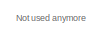
[diagram: Trajectory Generator/move2pose - part 1/6, top left region]
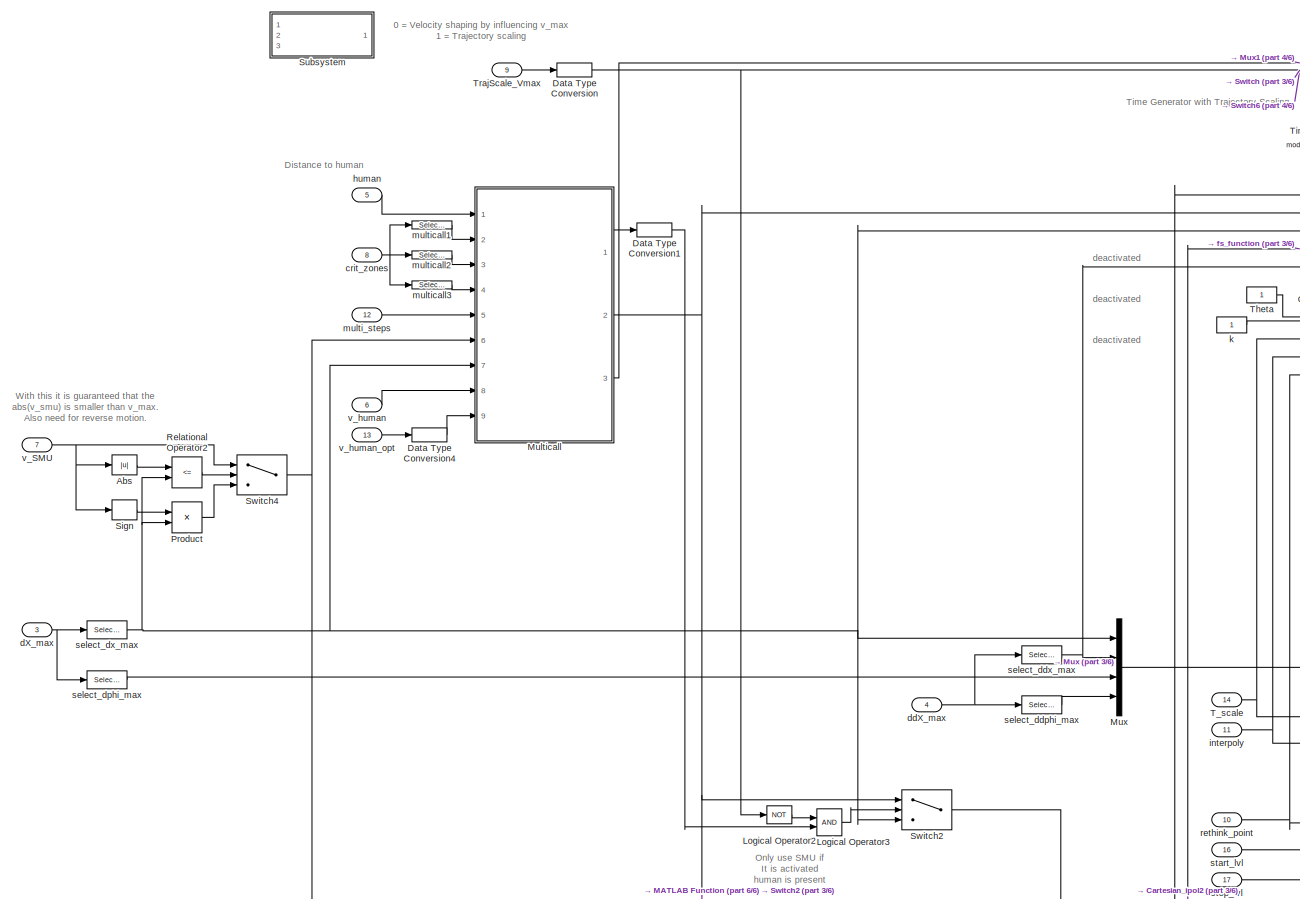
[diagram: Trajectory Generator/move2pose - part 2/6, middle left region]
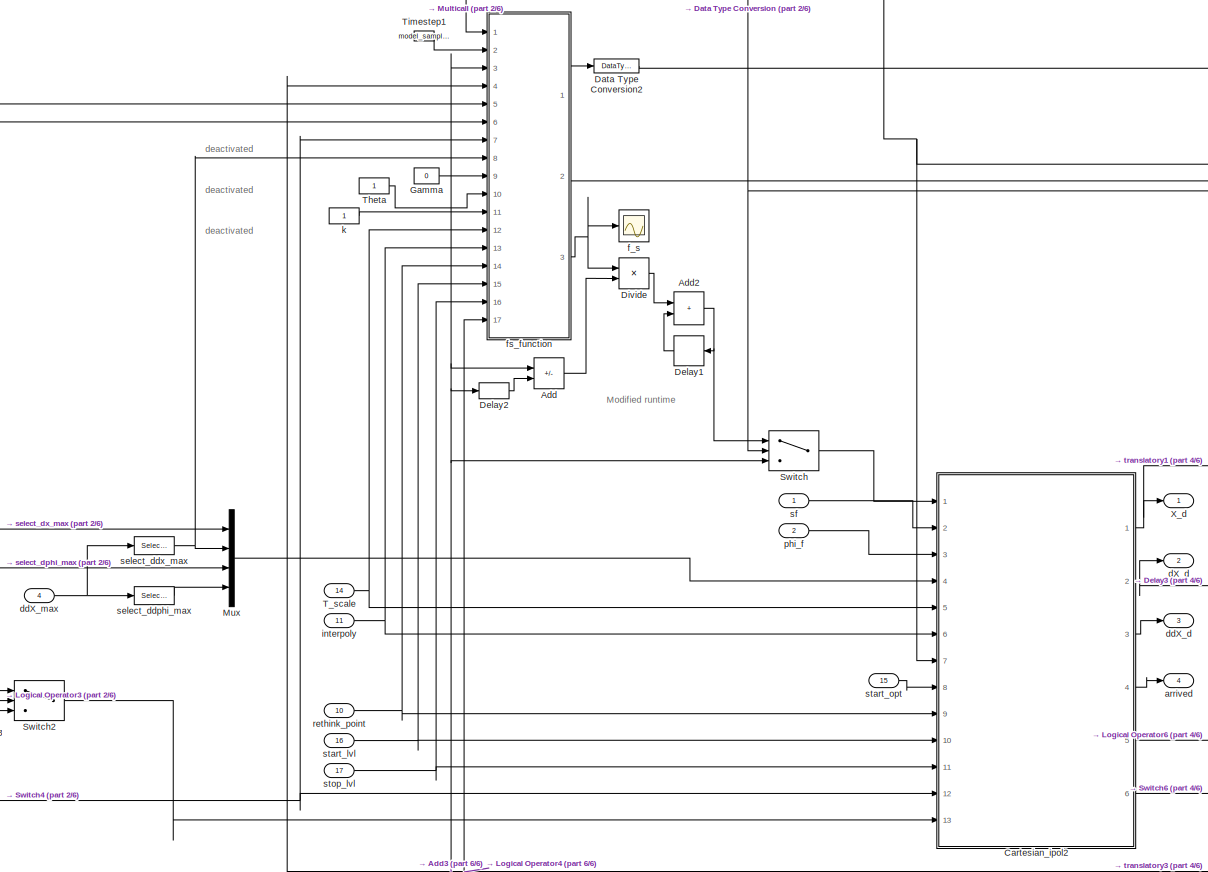
[diagram: Trajectory Generator/move2pose - part 3/6, central region]
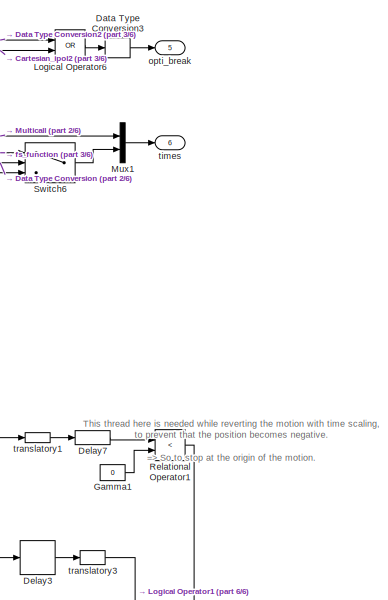
[diagram: Trajectory Generator/move2pose - part 4/6, middle right region]
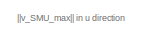
[diagram: Trajectory Generator/move2pose - part 5/6, middle left region]
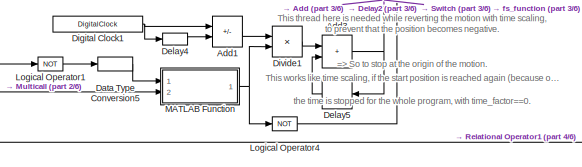
[diagram: Trajectory Generator/move2pose - part 6/6, bottom center region]
BLOCK [SubSystem] Trajectory Generator/move2pose
  Ports = [17, 6]
  RequestExecContextInheritance = off
BLOCK [Abs] Trajectory Generator/move2pose/Abs
  SaturateOnIntegerOverflow = off
BLOCK [Sum] Trajectory Generator/move2pose/Add
  IconShape = rectangular
  Inputs = +-
  Ports = [2, 1]
BLOCK [Sum] Trajectory Generator/move2pose/Add1
  IconShape = rectangular
  Inputs = +-
  Ports = [2, 1]
BLOCK [Sum] Trajectory Generator/move2pose/Add2
  IconShape = rectangular
  Ports = [2, 1]
BLOCK [Sum] Trajectory Generator/move2pose/Add3
  IconShape = rectangular
  Ports = [2, 1]
BLOCK [SubSystem] Trajectory Generator/move2pose/Cartesian_ipol2
  Ports = [13, 6]
  RequestExecContextInheritance = off
  TreatAsAtomicUnit = on
BLOCK [DataTypeConversion] Trajectory Generator/move2pose/Cartesian_ipol2/Data Type Conversion2
  OutDataTypeStr = double
  RndMeth = Floor
  SaturateOnIntegerOverflow = off
BLOCK [Reference] Trajectory Generator/move2pose/Cartesian_ipol2/Discrete Derivative IC  REF=utils/Discrete Derivative IC  (lib defined in mdl_b4a2d5202953, slx_566556b4cd74)
  Ports = [1, 1]
  SourceBlock = utils/Discrete Derivative IC
BLOCK [Reference] Trajectory Generator/move2pose/Cartesian_ipol2/Discrete Derivative IC1  REF=utils/Discrete Derivative IC  (lib defined in mdl_b4a2d5202953, slx_566556b4cd74)
  Ports = [1, 1]
  SourceBlock = utils/Discrete Derivative IC
BLOCK [Reference] Trajectory Generator/move2pose/Cartesian_ipol2/Discrete Derivative IC2  REF=utils/Discrete Derivative IC  (lib defined in mdl_b4a2d5202953, slx_566556b4cd74)
  Ports = [1, 1]
  SourceBlock = utils/Discrete Derivative IC
BLOCK [Reference] Trajectory Generator/move2pose/Cartesian_ipol2/Discrete Derivative IC3  REF=utils/Discrete Derivative IC  (lib defined in mdl_b4a2d5202953, slx_566556b4cd74)
  Ports = [1, 1]
  SourceBlock = utils/Discrete Derivative IC
BLOCK [Logic] Trajectory Generator/move2pose/Cartesian_ipol2/Logical Operator
  AllPortsSameDT = off
  OutDataTypeStr = boolean
  Ports = [2, 1]
BLOCK [Mux] Trajectory Generator/move2pose/Cartesian_ipol2/Mux
  DisplayOption = bar
  Inputs = 2
  Ports = [2, 1]
BLOCK [Mux] Trajectory Generator/move2pose/Cartesian_ipol2/Mux2
  DisplayOption = bar
  Inputs = 2
  Ports = [2, 1]
BLOCK [Mux] Trajectory Generator/move2pose/Cartesian_ipol2/Mux3
  DisplayOption = bar
  Inputs = 2
  Ports = [2, 1]
BLOCK [Selector] Trajectory Generator/move2pose/Cartesian_ipol2/Selector1
  IndexOptions = Index vector (dialog)
  Indices = 2
  InputPortWidth = 4
  OutputSizes = 1
  Ports = [1, 1]
BLOCK [Selector] Trajectory Generator/move2pose/Cartesian_ipol2/Selector3
  IndexOptions = Index vector (dialog)
  Indices = 3
  InputPortWidth = 4
  OutputSizes = 1
  Ports = [1, 1]
BLOCK [Selector] Trajectory Generator/move2pose/Cartesian_ipol2/Selector4
  IndexOptions = Index vector (dialog)
  Indices = 4
  InputPortWidth = 4
  OutputSizes = 1
  Ports = [1, 1]
BLOCK [Selector] Trajectory Generator/move2pose/Cartesian_ipol2/Selector5
  IndexOptions = Index vector (dialog)
  Indices = 1
  InputPortWidth = 4
  OutputSizes = 1
  Ports = [1, 1]
BLOCK [Terminator] Trajectory Generator/move2pose/Cartesian_ipol2/T1
BLOCK [Terminator] Trajectory Generator/move2pose/Cartesian_ipol2/T7
BLOCK [Outport] Trajectory Generator/move2pose/Cartesian_ipol2/T_est
  Port = 6
  VectorParamsAs1DForOutWhenUnconnected = off
BLOCK [Inport] Trajectory Generator/move2pose/Cartesian_ipol2/T_scale
  Port = 5
BLOCK [Inport] Trajectory Generator/move2pose/Cartesian_ipol2/Tm
  Port = 7
BLOCK [UnitDelay] Trajectory Generator/move2pose/Cartesian_ipol2/Unit Delay
  HasFrameUpgradeWarning = on
  SampleTime = -1
BLOCK [Outport] Trajectory Generator/move2pose/Cartesian_ipol2/X_d
  VectorParamsAs1DForOutWhenUnconnected = off
BLOCK [Outport] Trajectory Generator/move2pose/Cartesian_ipol2/arrived
  Port = 4
  VectorParamsAs1DForOutWhenUnconnected = off
BLOCK [Outport] Trajectory Generator/move2pose/Cartesian_ipol2/dX_d
  Port = 2
  VectorParamsAs1DForOutWhenUnconnected = off
BLOCK [Outport] Trajectory Generator/move2pose/Cartesian_ipol2/ddX_d
  Port = 3
  VectorParamsAs1DForOutWhenUnconnected = off
BLOCK [Constant] Trajectory Generator/move2pose/Cartesian_ipol2/dphi_0
  Value = 0
BLOCK [Inport] Trajectory Generator/move2pose/Cartesian_ipol2/interpoly
  Port = 6
BLOCK [Inport] Trajectory Generator/move2pose/Cartesian_ipol2/max. velo_accel [m//s],[rad//s]
  Port = 4
BLOCK [Outport] Trajectory Generator/move2pose/Cartesian_ipol2/opti_break
  Port = 5
  VectorParamsAs1DForOutWhenUnconnected = off
BLOCK [Inport] Trajectory Generator/move2pose/Cartesian_ipol2/phi_f
  Port = 3
BLOCK [Constant] Trajectory Generator/move2pose/Cartesian_ipol2/phi_i
  Value = 0
BLOCK [Inport] Trajectory Generator/move2pose/Cartesian_ipol2/rethink_point
  Port = 9
BLOCK [SubSystem] Trajectory Generator/move2pose/Cartesian_ipol2/rotation
  Ports = [8, 3]
  RequestExecContextInheritance = off
BLOCK [Abs] Trajectory Generator/move2pose/Cartesian_ipol2/rotation/Abs1
  SaturateOnIntegerOverflow = off
BLOCK [Reference] Trajectory Generator/move2pose/Cartesian_ipol2/rotation/Compare To Constant  REF=simulink/Logic and Bit
Operations/Compare
To Constant
  Ports = [1, 1]
  SourceBlock = simulink/Logic and Bit\nOperations/Compare\nTo Constant
  SourceProductBaseCode = SL
  SourceType = Compare To Constant
BLOCK [DataTypeConversion] Trajectory Generator/move2pose/Cartesian_ipol2/rotation/Data Type Conversion
  OutDataTypeStr = boolean
  RndMeth = Floor
  SaturateOnIntegerOverflow = off
BLOCK [SubSystem] Trajectory Generator/move2pose/Cartesian_ipol2/rotation/Embedded MATLAB Function1
  ErrorFcn = Stateflow.Translate.translate
  PermitHierarchicalResolution = ExplicitOnly
  Ports = [8, 4]
  RequestExecContextInheritance = off
  SFBlockType = MATLAB Function
  TreatAsAtomicUnit = on
BLOCK [Demux] Trajectory Generator/move2pose/Cartesian_ipol2/rotation/Embedded MATLAB Function1/ Demux 
  Outputs = 1
  Ports = [1, 1]
BLOCK [S-Function] Trajectory Generator/move2pose/Cartesian_ipol2/rotation/Embedded MATLAB Function1/ SFunction 
  EnableBusSupport = on
  FunctionName = sf_sfun
  PortCounts = [8 5]
  Ports = [8, 5]
  SFcnIsStateOwnerBlock = off
  SFunctionDeploymentMode = off
  Tag = Stateflow S-Function 3
BLOCK [Terminator] Trajectory Generator/move2pose/Cartesian_ipol2/rotation/Embedded MATLAB Function1/ Terminator 
BLOCK [Inport] Trajectory Generator/move2pose/Cartesian_ipol2/rotation/Embedded MATLAB Function1/T_scale
  Port = 7
BLOCK [Inport] Trajectory Generator/move2pose/Cartesian_ipol2/rotation/Embedded MATLAB Function1/am
  Port = 6
BLOCK [Outport] Trajectory Generator/move2pose/Cartesian_ipol2/rotation/Embedded MATLAB Function1/ddqd
  Port = 3
  VectorParamsAs1DForOutWhenUnconnected = off
BLOCK [Outport] Trajectory Generator/move2pose/Cartesian_ipol2/rotation/Embedded MATLAB Function1/dqd
  Port = 2
  VectorParamsAs1DForOutWhenUnconnected = off
BLOCK [Inport] Trajectory Generator/move2pose/Cartesian_ipol2/rotation/Embedded MATLAB Function1/interpoly
  Port = 8
BLOCK [Outport] Trajectory Generator/move2pose/Cartesian_ipol2/rotation/Embedded MATLAB Function1/ipol_finished
  Port = 4
  VectorParamsAs1DForOutWhenUnconnected = off
BLOCK [Outport] Trajectory Generator/move2pose/Cartesian_ipol2/rotation/Embedded MATLAB Function1/qd
  VectorParamsAs1DForOutWhenUnconnected = off
BLOCK [Inport] Trajectory Generator/move2pose/Cartesian_ipol2/rotation/Embedded MATLAB Function1/s0
  Port = 2
BLOCK [Inport] Trajectory Generator/move2pose/Cartesian_ipol2/rotation/Embedded MATLAB Function1/sf
  Port = 4
BLOCK [Inport] Trajectory Generator/move2pose/Cartesian_ipol2/rotation/Embedded MATLAB Function1/t
BLOCK [Inport] Trajectory Generator/move2pose/Cartesian_ipol2/rotation/Embedded MATLAB Function1/v0
  Port = 3
BLOCK [Inport] Trajectory Generator/move2pose/Cartesian_ipol2/rotation/Embedded MATLAB Function1/vm
  Port = 5
BLOCK [Logic] Trajectory Generator/move2pose/Cartesian_ipol2/rotation/Logical Operator2
  AllPortsSameDT = off
  Operator = OR
  OutDataTypeStr = boolean
  Ports = [2, 1]
BLOCK [Sum] Trajectory Generator/move2pose/Cartesian_ipol2/rotation/Subtract1
  IconShape = rectangular
  Inputs = -+
  Ports = [2, 1]
BLOCK [Terminator] Trajectory Generator/move2pose/Cartesian_ipol2/rotation/T7
BLOCK [Inport] Trajectory Generator/move2pose/Cartesian_ipol2/rotation/T_scale
  Port = 7
BLOCK [Outport] Trajectory Generator/move2pose/Cartesian_ipol2/rotation/d_phi_d
  Port = 2
  VectorParamsAs1DForOutWhenUnconnected = off
BLOCK [Inport] Trajectory Generator/move2pose/Cartesian_ipol2/rotation/ddphi_max
  Port = 6
BLOCK [Inport] Trajectory Generator/move2pose/Cartesian_ipol2/rotation/dphi_0
  Port = 3
BLOCK [Inport] Trajectory Generator/move2pose/Cartesian_ipol2/rotation/dphi_max
  Port = 5
BLOCK [Inport] Trajectory Generator/move2pose/Cartesian_ipol2/rotation/interpoly
  Port = 8
BLOCK [Outport] Trajectory Generator/move2pose/Cartesian_ipol2/rotation/ipol_finished
  Port = 3
  VectorParamsAs1DForOutWhenUnconnected = off
BLOCK [Inport] Trajectory Generator/move2pose/Cartesian_ipol2/rotation/phi_0
  Port = 2
BLOCK [Outport] Trajectory Generator/move2pose/Cartesian_ipol2/rotation/phi_d
  VectorParamsAs1DForOutWhenUnconnected = off
BLOCK [Inport] Trajectory Generator/move2pose/Cartesian_ipol2/rotation/phi_f
  Port = 4
BLOCK [Inport] Trajectory Generator/move2pose/Cartesian_ipol2/rotation/t
BLOCK [Inport] Trajectory Generator/move2pose/Cartesian_ipol2/sf
  Port = 2
BLOCK [Constant] Trajectory Generator/move2pose/Cartesian_ipol2/si
  Value = 0
BLOCK [Inport] Trajectory Generator/move2pose/Cartesian_ipol2/start_lvl
  Port = 10
BLOCK [Inport] Trajectory Generator/move2pose/Cartesian_ipol2/start_opt
  Port = 8
BLOCK [Inport] Trajectory Generator/move2pose/Cartesian_ipol2/stop_lvl
  Port = 11
BLOCK [Inport] Trajectory Generator/move2pose/Cartesian_ipol2/t
BLOCK [SubSystem] Trajectory Generator/move2pose/Cartesian_ipol2/translation
  Ports = [15, 5]
  RequestExecContextInheritance = off
BLOCK [Abs] Trajectory Generator/move2pose/Cartesian_ipol2/translation/Abs
  SaturateOnIntegerOverflow = off
BLOCK [Scope] Trajectory Generator/move2pose/Cartesian_ipol2/translation/Acceleration_real
  Floating = off
  NumInputPorts = 1
  Ports = [1]
  ScopeSpecificationString = Simulink.scopes.TimeScopeBlockCfg('CurrentConfiguration', extmgr.ConfigurationSet(extmgr.Configuration('Core','General UI',true),extmgr.Configuration('Core','Source UI',true),extmgr.Configuration('Sources','WiredSimulink',true,'DataLoggingVariableName','ScopeData1'),extmgr.Configuration('Visuals','Time Domain',true,'SerializedDisplays',{struct('MinYLimReal','-1.14615','MaxYLimReal','0.7939','YLabe...<+1488ch>
BLOCK [Reference] Trajectory Generator/move2pose/Cartesian_ipol2/translation/Compare To Constant  REF=simulink/Logic and Bit
Operations/Compare
To Constant
  Ports = [1, 1]
  SourceBlock = simulink/Logic and Bit\nOperations/Compare\nTo Constant
  SourceProductBaseCode = SL
  SourceType = Compare To Constant
BLOCK [DataTypeConversion] Trajectory Generator/move2pose/Cartesian_ipol2/translation/Data Type Conversion
  OutDataTypeStr = boolean
  RndMeth = Floor
  SaturateOnIntegerOverflow = off
BLOCK [DataTypeConversion] Trajectory Generator/move2pose/Cartesian_ipol2/translation/Data Type Conversion1
  OutDataTypeStr = boolean
  RndMeth = Floor
  SaturateOnIntegerOverflow = off
BLOCK [SubSystem] Trajectory Generator/move2pose/Cartesian_ipol2/translation/Embedded MATLAB Function1
  ErrorFcn = Stateflow.Translate.translate
  PermitHierarchicalResolution = ExplicitOnly
  Ports = [16, 6]
  RequestExecContextInheritance = off
  SFBlockType = MATLAB Function
  TreatAsAtomicUnit = on
BLOCK [Demux] Trajectory Generator/move2pose/Cartesian_ipol2/translation/Embedded MATLAB Function1/ Demux 
  Outputs = 1
  Ports = [1, 1]
BLOCK [S-Function] Trajectory Generator/move2pose/Cartesian_ipol2/translation/Embedded MATLAB Function1/ SFunction 
  EnableBusSupport = on
  FunctionName = sf_sfun
  PortCounts = [16 7]
  Ports = [16, 7]
  SFcnIsStateOwnerBlock = off
  SFunctionDeploymentMode = off
  Tag = Stateflow S-Function 4
BLOCK [Terminator] Trajectory Generator/move2pose/Cartesian_ipol2/translation/Embedded MATLAB Function1/ Terminator 
BLOCK [Outport] Trajectory Generator/move2pose/Cartesian_ipol2/translation/Embedded MATLAB Function1/T_est
  Port = 6
  VectorParamsAs1DForOutWhenUnconnected = off
BLOCK [Inport] Trajectory Generator/move2pose/Cartesian_ipol2/translation/Embedded MATLAB Function1/T_scale
  Port = 8
BLOCK [Inport] Trajectory Generator/move2pose/Cartesian_ipol2/translation/Embedded MATLAB Function1/Tm
  Port = 7
BLOCK [Inport] Trajectory Generator/move2pose/Cartesian_ipol2/translation/Embedded MATLAB Function1/am
  Port = 6
BLOCK [Outport] Trajectory Generator/move2pose/Cartesian_ipol2/translation/Embedded MATLAB Function1/ddqd
  Port = 3
  VectorParamsAs1DForOutWhenUnconnected = off
BLOCK [Outport] Trajectory Generator/move2pose/Cartesian_ipol2/translation/Embedded MATLAB Function1/dqd
  Port = 2
  VectorParamsAs1DForOutWhenUnconnected = off
BLOCK [Inport] Trajectory Generator/move2pose/Cartesian_ipol2/translation/Embedded MATLAB Function1/interpoly
  Port = 9
BLOCK [Outport] Trajectory Generator/move2pose/Cartesian_ipol2/translation/Embedded MATLAB Function1/ipol_finished
  Port = 4
  VectorParamsAs1DForOutWhenUnconnected = off
BLOCK [Outport] Trajectory Generator/move2pose/Cartesian_ipol2/translation/Embedded MATLAB Function1/opti_break
  Port = 5
  VectorParamsAs1DForOutWhenUnconnected = off
BLOCK [Outport] Trajectory Generator/move2pose/Cartesian_ipol2/translation/Embedded MATLAB Function1/qd
  VectorParamsAs1DForOutWhenUnconnected = off
BLOCK [Inport] Trajectory Generator/move2pose/Cartesian_ipol2/translation/Embedded MATLAB Function1/rethink_point
  Port = 12
BLOCK [Inport] Trajectory Generator/move2pose/Cartesian_ipol2/translation/Embedded MATLAB Function1/s0
  Port = 2
BLOCK [Inport] Trajectory Generator/move2pose/Cartesian_ipol2/translation/Embedded MATLAB Function1/sf
  Port = 4
BLOCK [Inport] Trajectory Generator/move2pose/Cartesian_ipol2/translation/Embedded MATLAB Function1/start_lvl
  Port = 13
BLOCK [Inport] Trajectory Generator/move2pose/Cartesian_ipol2/translation/Embedded MATLAB Function1/start_opt
  Port = 11
BLOCK [Inport] Trajectory Generator/move2pose/Cartesian_ipol2/translation/Embedded MATLAB Function1/stop_lvl
  Port = 14
BLOCK [Inport] Trajectory Generator/move2pose/Cartesian_ipol2/translation/Embedded MATLAB Function1/t
BLOCK [Inport] Trajectory Generator/move2pose/Cartesian_ipol2/translation/Embedded MATLAB Function1/time_step
  Port = 10
BLOCK [Inport] Trajectory Generator/move2pose/Cartesian_ipol2/translation/Embedded MATLAB Function1/v0
  Port = 3
BLOCK [Inport] Trajectory Generator/move2pose/Cartesian_ipol2/translation/Embedded MATLAB Function1/v_smu
  Port = 15
BLOCK [Inport] Trajectory Generator/move2pose/Cartesian_ipol2/translation/Embedded MATLAB Function1/vd
  Port = 5
BLOCK [Inport] Trajectory Generator/move2pose/Cartesian_ipol2/translation/Embedded MATLAB Function1/vm
  Port = 16
BLOCK [Logic] Trajectory Generator/move2pose/Cartesian_ipol2/translation/Logical Operator1
  AllPortsSameDT = off
  Operator = OR
  OutDataTypeStr = boolean
  Ports = [2, 1]
BLOCK [Scope] Trajectory Generator/move2pose/Cartesian_ipol2/translation/Position_real
  Floating = off
  NumInputPorts = 1
  Ports = [1]
  ScopeSpecificationString = Simulink.scopes.TimeScopeBlockCfg('CurrentConfiguration', extmgr.ConfigurationSet(extmgr.Configuration('Core','General UI',true),extmgr.Configuration('Core','Source UI',true),extmgr.Configuration('Sources','WiredSimulink',true,'DataLoggingVariableName','ScopeData2'),extmgr.Configuration('Visuals','Time Domain',true,'SerializedDisplays',{struct('MinYLimReal','-0.125','MaxYLimReal','1.125','YLabelRe...<+1474ch>
BLOCK [Sum] Trajectory Generator/move2pose/Cartesian_ipol2/translation/Subtract1
  IconShape = rectangular
  Inputs = -+
  Ports = [2, 1]
BLOCK [Switch] Trajectory Generator/move2pose/Cartesian_ipol2/translation/Switch3
  Criteria = u2 ~= 0
  InputSameDT = off
  SaturateOnIntegerOverflow = off
BLOCK [Outport] Trajectory Generator/move2pose/Cartesian_ipol2/translation/T_est
  Port = 5
  VectorParamsAs1DForOutWhenUnconnected = off
BLOCK [Inport] Trajectory Generator/move2pose/Cartesian_ipol2/translation/T_scale
  Port = 7
BLOCK [Constant] Trajectory Generator/move2pose/Cartesian_ipol2/translation/Timestep
  Value = model_sample_time
BLOCK [Inport] Trajectory Generator/move2pose/Cartesian_ipol2/translation/Tm
  Port = 9
BLOCK [Scope] Trajectory Generator/move2pose/Cartesian_ipol2/translation/Velocity_real
  Floating = off
  NumInputPorts = 1
  Ports = [1]
  ScopeSpecificationString = Simulink.scopes.TimeScopeBlockCfg('CurrentConfiguration', extmgr.ConfigurationSet(extmgr.Configuration('Core','General UI',true),extmgr.Configuration('Core','Source UI',true),extmgr.Configuration('Sources','WiredSimulink',true,'DataLoggingVariableName','ScopeData6'),extmgr.Configuration('Visuals','Time Domain',true,'SerializedDisplays',{struct('MinYLimReal','-0.0375','MaxYLimReal','0.3375','YLabel...<+1481ch>
BLOCK [Inport] Trajectory Generator/move2pose/Cartesian_ipol2/translation/am
  Port = 6
BLOCK [Outport] Trajectory Generator/move2pose/Cartesian_ipol2/translation/dqd
  Port = 2
  VectorParamsAs1DForOutWhenUnconnected = off
BLOCK [Inport] Trajectory Generator/move2pose/Cartesian_ipol2/translation/interpoly
  Port = 8
BLOCK [Outport] Trajectory Generator/move2pose/Cartesian_ipol2/translation/ipol_finished
  Port = 3
  VectorParamsAs1DForOutWhenUnconnected = off
BLOCK [Outport] Trajectory Generator/move2pose/Cartesian_ipol2/translation/opti_break
  Port = 4
  VectorParamsAs1DForOutWhenUnconnected = off
BLOCK [Outport] Trajectory Generator/move2pose/Cartesian_ipol2/translation/qd
  VectorParamsAs1DForOutWhenUnconnected = off
BLOCK [Inport] Trajectory Generator/move2pose/Cartesian_ipol2/translation/rethink_point
  Port = 11
BLOCK [Inport] Trajectory Generator/move2pose/Cartesian_ipol2/translation/s0
  Port = 2
BLOCK [Inport] Trajectory Generator/move2pose/Cartesian_ipol2/translation/sf
  Port = 4
BLOCK [Inport] Trajectory Generator/move2pose/Cartesian_ipol2/translation/start_lvl
  Port = 12
BLOCK [Inport] Trajectory Generator/move2pose/Cartesian_ipol2/translation/start_opt
  Port = 10
BLOCK [Inport] Trajectory Generator/move2pose/Cartesian_ipol2/translation/stop_lvl
  Port = 13
BLOCK [Inport] Trajectory Generator/move2pose/Cartesian_ipol2/translation/t
BLOCK [Inport] Trajectory Generator/move2pose/Cartesian_ipol2/translation/v0
  Port = 3
BLOCK [Inport] Trajectory Generator/move2pose/Cartesian_ipol2/translation/v_smu
  Port = 14
BLOCK [Inport] Trajectory Generator/move2pose/Cartesian_ipol2/translation/vd
  Port = 5
BLOCK [Inport] Trajectory Generator/move2pose/Cartesian_ipol2/translation/vm
  Port = 15
BLOCK [Constant] Trajectory Generator/move2pose/Cartesian_ipol2/v0
  Value = 0
BLOCK [Inport] Trajectory Generator/move2pose/Cartesian_ipol2/v_smu
  Port = 12
BLOCK [Inport] Trajectory Generator/move2pose/Cartesian_ipol2/vd
  Port = 13
BLOCK [DataTypeConversion] Trajectory Generator/move2pose/Data Type Conversion
  OutDataTypeStr = boolean
  RndMeth = Floor
  SaturateOnIntegerOverflow = off
BLOCK [DataTypeConversion] Trajectory Generator/move2pose/Data Type Conversion1
  OutDataTypeStr = boolean
  RndMeth = Floor
  SaturateOnIntegerOverflow = off
BLOCK [DataTypeConversion] Trajectory Generator/move2pose/Data Type Conversion2
  OutDataTypeStr = boolean
  RndMeth = Floor
  SaturateOnIntegerOverflow = off
BLOCK [DataTypeConversion] Trajectory Generator/move2pose/Data Type Conversion3
  OutDataTypeStr = double
  RndMeth = Floor
  SaturateOnIntegerOverflow = off
BLOCK [DataTypeConversion] Trajectory Generator/move2pose/Data Type Conversion4
  OutDataTypeStr = boolean
  RndMeth = Floor
  SaturateOnIntegerOverflow = off
BLOCK [DataTypeConversion] Trajectory Generator/move2pose/Data Type Conversion5
  OutDataTypeStr = double
  RndMeth = Floor
  SaturateOnIntegerOverflow = off
BLOCK [Delay] Trajectory Generator/move2pose/Delay1
  DelayLength = 1
  InputPortMap = u0
  Ports = [1, 1]
BLOCK [Delay] Trajectory Generator/move2pose/Delay2
  DelayLength = 1
  InputPortMap = u0
  Ports = [1, 1]
BLOCK [Delay] Trajectory Generator/move2pose/Delay3
  DelayLength = 1
  InputPortMap = u0
  Ports = [1, 1]
BLOCK [Delay] Trajectory Generator/move2pose/Delay4
  DelayLength = 1
  InputPortMap = u0
  Ports = [1, 1]
BLOCK [Delay] Trajectory Generator/move2pose/Delay5
  DelayLength = 1
  InputPortMap = u0
  Ports = [1, 1]
BLOCK [Delay] Trajectory Generator/move2pose/Delay7
  DelayLength = 1
  InputPortMap = u0
  Ports = [1, 1]
BLOCK [DigitalClock] Trajectory Generator/move2pose/Digital Clock1
  SampleTime = model_sample_time
BLOCK [Product] Trajectory Generator/move2pose/Divide
  Inputs = **
  Ports = [2, 1]
BLOCK [Product] Trajectory Generator/move2pose/Divide1
  Inputs = **
  Ports = [2, 1]
BLOCK [Constant] Trajectory Generator/move2pose/Gamma
  Value = 0
BLOCK [Constant] Trajectory Generator/move2pose/Gamma1
  Value = 0
BLOCK [Logic] Trajectory Generator/move2pose/Logical Operator1
  AllPortsSameDT = off
  Operator = NOT
  OutDataTypeStr = boolean
  Ports = [1, 1]
BLOCK [Logic] Trajectory Generator/move2pose/Logical Operator2
  AllPortsSameDT = off
  Operator = NOT
  OutDataTypeStr = boolean
  Ports = [1, 1]
BLOCK [Logic] Trajectory Generator/move2pose/Logical Operator3
  AllPortsSameDT = off
  OutDataTypeStr = boolean
  Ports = [2, 1]
BLOCK [Logic] Trajectory Generator/move2pose/Logical Operator4
  AllPortsSameDT = off
  Operator = NOT
  OutDataTypeStr = boolean
  Ports = [1, 1]
BLOCK [Logic] Trajectory Generator/move2pose/Logical Operator6
  AllPortsSameDT = off
  Operator = OR
  OutDataTypeStr = boolean
  Ports = [2, 1]
BLOCK [SubSystem] Trajectory Generator/move2pose/MATLAB Function
  ErrorFcn = Stateflow.Translate.translate
  PermitHierarchicalResolution = ExplicitOnly
  Ports = [2, 1]
  RequestExecContextInheritance = off
  SFBlockType = MATLAB Function
  TreatAsAtomicUnit = on
BLOCK [Demux] Trajectory Generator/move2pose/MATLAB Function/ Demux 
  Outputs = 1
  Ports = [1, 1]
BLOCK [S-Function] Trajectory Generator/move2pose/MATLAB Function/ SFunction 
  EnableBusSupport = on
  FunctionName = sf_sfun
  PortCounts = [2 2]
  Ports = [2, 2]
  SFcnIsStateOwnerBlock = off
  SFunctionDeploymentMode = off
  Tag = Stateflow S-Function 5
BLOCK [Terminator] Trajectory Generator/move2pose/MATLAB Function/ Terminator 
BLOCK [Inport] Trajectory Generator/move2pose/MATLAB Function/in
BLOCK [Outport] Trajectory Generator/move2pose/MATLAB Function/out
  VectorParamsAs1DForOutWhenUnconnected = off
BLOCK [Inport] Trajectory Generator/move2pose/MATLAB Function/reset
  Port = 2
BLOCK [SubSystem] Trajectory Generator/move2pose/Multicall
  ErrorFcn = Stateflow.Translate.translate
  PermitHierarchicalResolution = ExplicitOnly
  Ports = [9, 3]
  RequestExecContextInheritance = off
  SFBlockType = MATLAB Function
  TreatAsAtomicUnit = on
BLOCK [Demux] Trajectory Generator/move2pose/Multicall/ Demux 
  Outputs = 1
  Ports = [1, 1]
BLOCK [S-Function] Trajectory Generator/move2pose/Multicall/ SFunction 
  EnableBusSupport = on
  FunctionName = sf_sfun
  PortCounts = [9 4]
  Ports = [9, 4]
  SFcnIsStateOwnerBlock = off
  SFunctionDeploymentMode = off
  Tag = Stateflow S-Function 7
BLOCK [Terminator] Trajectory Generator/move2pose/Multicall/ Terminator 
BLOCK [Outport] Trajectory Generator/move2pose/Multicall/Tm
  Port = 3
  VectorParamsAs1DForOutWhenUnconnected = off
BLOCK [Inport] Trajectory Generator/move2pose/Multicall/crit1
  Port = 2
BLOCK [Inport] Trajectory Generator/move2pose/Multicall/crit2
  Port = 3
BLOCK [Inport] Trajectory Generator/move2pose/Multicall/crit3
  Port = 4
BLOCK [Outport] Trajectory Generator/move2pose/Multicall/human
  VectorParamsAs1DForOutWhenUnconnected = off
BLOCK [Inport] Trajectory Generator/move2pose/Multicall/human_dist
BLOCK [Inport] Trajectory Generator/move2pose/Multicall/n_steps
  Port = 5
BLOCK [Inport] Trajectory Generator/move2pose/Multicall/v_SMU
  Port = 6
BLOCK [Outport] Trajectory Generator/move2pose/Multicall/v_SMU_step
  Port = 2
  VectorParamsAs1DForOutWhenUnconnected = off
BLOCK [Inport] Trajectory Generator/move2pose/Multicall/v_human
  Port = 8
BLOCK [Inport] Trajectory Generator/move2pose/Multicall/v_human_opt
  Port = 9
BLOCK [Inport] Trajectory Generator/move2pose/Multicall/v_max
  Port = 7
BLOCK [Mux] Trajectory Generator/move2pose/Mux
  DisplayOption = bar
  Ports = [4, 1]
BLOCK [Mux] Trajectory Generator/move2pose/Mux1
  DisplayOption = bar
  Inputs = 2
  Ports = [2, 1]
BLOCK [Product] Trajectory Generator/move2pose/Product
  Ports = [2, 1]
BLOCK [RelationalOperator] Trajectory Generator/move2pose/Relational Operator1
  InputSameDT = off
  Operator = <
  OutDataTypeStr = boolean
  Ports = [2, 1]
  RndMeth = Simplest
BLOCK [RelationalOperator] Trajectory Generator/move2pose/Relational Operator2
  InputSameDT = off
  Operator = <=
  OutDataTypeStr = boolean
  Ports = [2, 1]
  RndMeth = Simplest
BLOCK [Signum] Trajectory Generator/move2pose/Sign
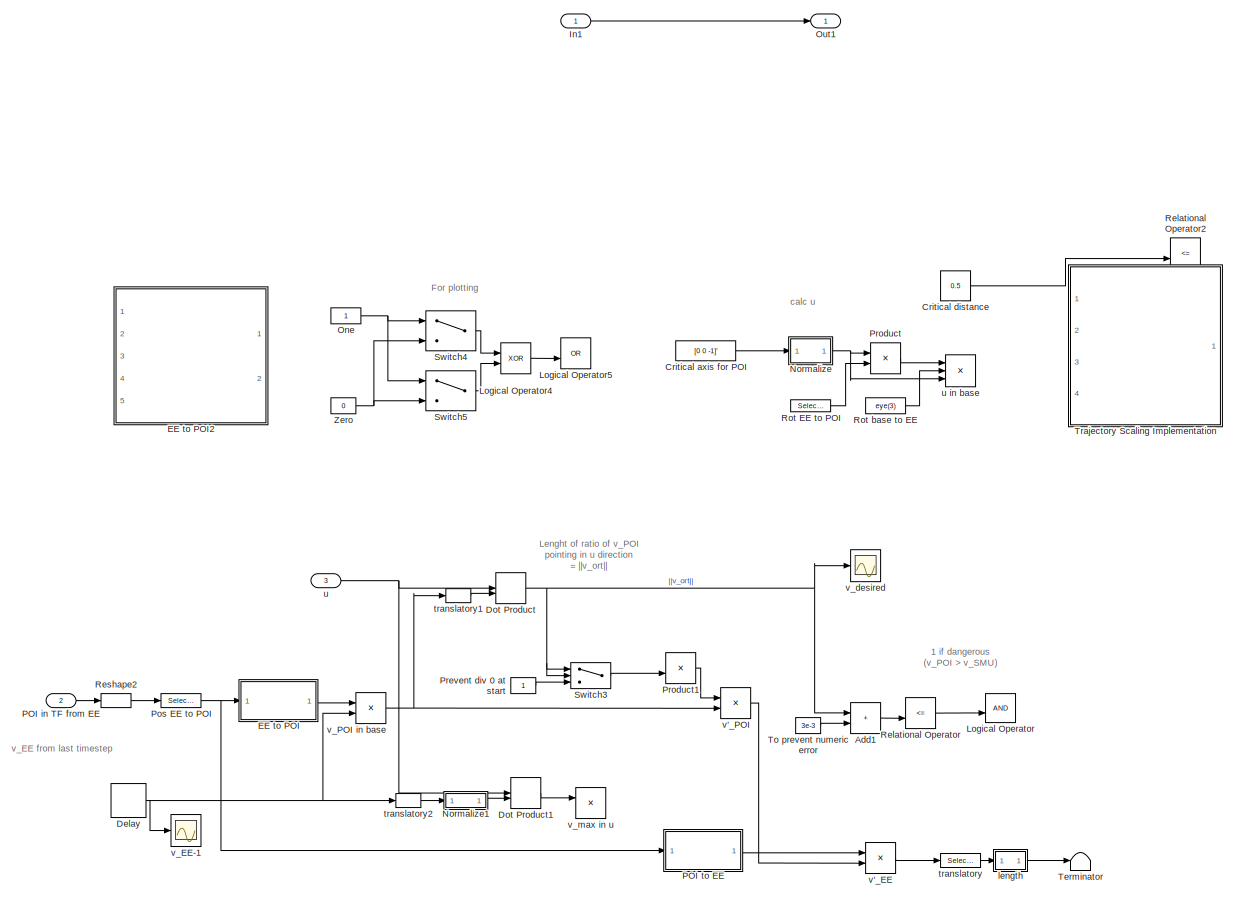
[diagram: Trajectory Generator/move2pose/Subsystem - part 1/2, center side, full height]
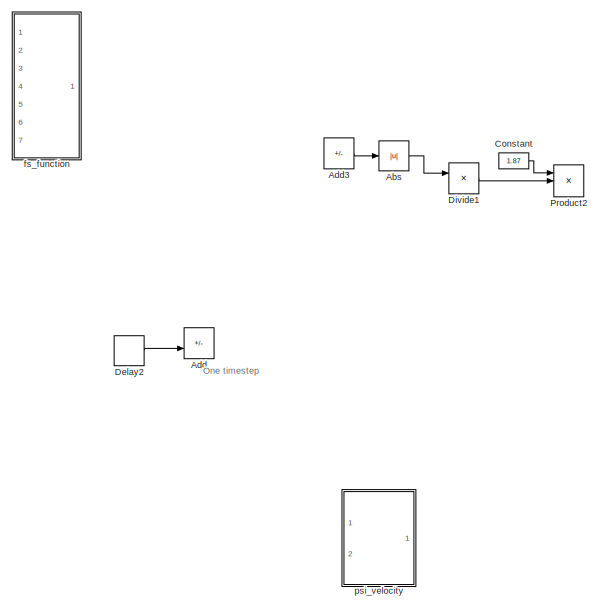
[diagram: Trajectory Generator/move2pose/Subsystem - part 2/2, middle right region]
BLOCK [SubSystem] Trajectory Generator/move2pose/Subsystem
  Commented = on
  Ports = [3, 1]
  RequestExecContextInheritance = off
BLOCK [Abs] Trajectory Generator/move2pose/Subsystem/Abs
  SaturateOnIntegerOverflow = off
BLOCK [Sum] Trajectory Generator/move2pose/Subsystem/Add
  IconShape = rectangular
  Inputs = +-
  Ports = [2, 1]
BLOCK [Sum] Trajectory Generator/move2pose/Subsystem/Add1
  Commented = on
  IconShape = rectangular
  Ports = [2, 1]
BLOCK [Sum] Trajectory Generator/move2pose/Subsystem/Add3
  IconShape = rectangular
  Inputs = -+
  Ports = [2, 1]
BLOCK [Constant] Trajectory Generator/move2pose/Subsystem/Constant
  Value = 1.87
BLOCK [Constant] Trajectory Generator/move2pose/Subsystem/Critical axis for POI
  Commented = on
  Value = [0 0 -1]'
BLOCK [Constant] Trajectory Generator/move2pose/Subsystem/Critical distance
  Commented = on
  Value = 0.5
BLOCK [Delay] Trajectory Generator/move2pose/Subsystem/Delay
  DelayLength = 1
  InputPortMap = u0
  Ports = [1, 1]
BLOCK [Delay] Trajectory Generator/move2pose/Subsystem/Delay2
  DelayLength = 1
  InputPortMap = u0
  Ports = [1, 1]
BLOCK [Product] Trajectory Generator/move2pose/Subsystem/Divide1
  Inputs = */
  Ports = [2, 1]
BLOCK [DotProduct] Trajectory Generator/move2pose/Subsystem/Dot Product
  OutDataTypeStr = Inherit: Inherit via internal rule
BLOCK [DotProduct] Trajectory Generator/move2pose/Subsystem/Dot Product1
  Commented = on
  OutDataTypeStr = Inherit: Inherit via internal rule
BLOCK [SubSystem] Trajectory Generator/move2pose/Subsystem/EE to POI
  Commented = on
  ErrorFcn = Stateflow.Translate.translate
  PermitHierarchicalResolution = ExplicitOnly
  Ports = [1, 1]
  RequestExecContextInheritance = off
  SFBlockType = MATLAB Function
  TreatAsAtomicUnit = on
BLOCK [Demux] Trajectory Generator/move2pose/Subsystem/EE to POI/ Demux 
  Outputs = 1
  Ports = [1, 1]
BLOCK [S-Function] Trajectory Generator/move2pose/Subsystem/EE to POI/ SFunction 
  EnableBusSupport = on
  FunctionName = sf_sfun
  PortCounts = [1 2]
  Ports = [1, 2]
  SFcnIsStateOwnerBlock = off
  SFunctionDeploymentMode = off
  Tag = Stateflow S-Function 16
BLOCK [Terminator] Trajectory Generator/move2pose/Subsystem/EE to POI/ Terminator 
BLOCK [Inport] Trajectory Generator/move2pose/Subsystem/EE to POI/p_POI
BLOCK [Outport] Trajectory Generator/move2pose/Subsystem/EE to POI/transform
  VectorParamsAs1DForOutWhenUnconnected = off
BLOCK [SubSystem] Trajectory Generator/move2pose/Subsystem/EE to POI2
  Commented = on
  ErrorFcn = Stateflow.Translate.translate
  PermitHierarchicalResolution = ExplicitOnly
  Ports = [5, 2]
  RequestExecContextInheritance = off
  SFBlockType = MATLAB Function
  TreatAsAtomicUnit = on
BLOCK [Demux] Trajectory Generator/move2pose/Subsystem/EE to POI2/ Demux 
  Outputs = 1
  Ports = [1, 1]
BLOCK [S-Function] Trajectory Generator/move2pose/Subsystem/EE to POI2/ SFunction 
  EnableBusSupport = on
  FunctionName = sf_sfun
  PortCounts = [5 3]
  Ports = [5, 3]
  SFcnIsStateOwnerBlock = off
  SFunctionDeploymentMode = off
  Tag = Stateflow S-Function 17
BLOCK [Terminator] Trajectory Generator/move2pose/Subsystem/EE to POI2/ Terminator 
BLOCK [Inport] Trajectory Generator/move2pose/Subsystem/EE to POI2/crit1
  Port = 2
BLOCK [Inport] Trajectory Generator/move2pose/Subsystem/EE to POI2/crit2
  Port = 3
BLOCK [Outport] Trajectory Generator/move2pose/Subsystem/EE to POI2/human
  VectorParamsAs1DForOutWhenUnconnected = off
BLOCK [Inport] Trajectory Generator/move2pose/Subsystem/EE to POI2/human_dist
BLOCK [Inport] Trajectory Generator/move2pose/Subsystem/EE to POI2/v_SMU
  Port = 4
BLOCK [Outport] Trajectory Generator/move2pose/Subsystem/EE to POI2/v_SMU_inter
  Port = 2
  VectorParamsAs1DForOutWhenUnconnected = off
BLOCK [Inport] Trajectory Generator/move2pose/Subsystem/EE to POI2/v_max
  Port = 5
BLOCK [Inport] Trajectory Generator/move2pose/Subsystem/In1
BLOCK [Logic] Trajectory Generator/move2pose/Subsystem/Logical Operator
  AllPortsSameDT = off
  Commented = on
  OutDataTypeStr = boolean
  Ports = [2, 1]
BLOCK [Logic] Trajectory Generator/move2pose/Subsystem/Logical Operator4
  AllPortsSameDT = off
  Commented = on
  Operator = XOR
  OutDataTypeStr = boolean
  Ports = [2, 1]
BLOCK [Logic] Trajectory Generator/move2pose/Subsystem/Logical Operator5
  AllPortsSameDT = off
  Commented = on
  Operator = OR
  OutDataTypeStr = boolean
  Ports = [2, 1]
BLOCK [SubSystem] Trajectory Generator/move2pose/Subsystem/Normalize
  Commented = on
  Ports = [1, 1]
  RequestExecContextInheritance = off
BLOCK [Product] Trajectory Generator/move2pose/Subsystem/Normalize/Divide
  Inputs = */
  Ports = [2, 1]
BLOCK [Switch] Trajectory Generator/move2pose/Subsystem/Normalize/Switch
  Criteria = u2 > Threshold
  InputSameDT = off
  SaturateOnIntegerOverflow = off
BLOCK [SubSystem] Trajectory Generator/move2pose/Subsystem/Normalize/length
  Ports = [1, 1]
  RequestExecContextInheritance = off
BLOCK [Sum] Trajectory Generator/move2pose/Subsystem/Normalize/length/Add
  IconShape = rectangular
  Inputs = +
  Ports = [1, 1]
BLOCK [Math] Trajectory Generator/move2pose/Subsystem/Normalize/length/Math Function
  Operator = magnitude^2
  Ports = [1, 1]
  SignedPower = on
BLOCK [Math] Trajectory Generator/move2pose/Subsystem/Normalize/length/Math Function1
  Operator = sqrt
  Ports = [1, 1]
  SignedPower = on
BLOCK [Inport] Trajectory Generator/move2pose/Subsystem/Normalize/length/v
BLOCK [Outport] Trajectory Generator/move2pose/Subsystem/Normalize/length/|v|
  VectorParamsAs1DForOutWhenUnconnected = off
BLOCK [Constant] Trajectory Generator/move2pose/Subsystem/Normalize/one
BLOCK [Inport] Trajectory Generator/move2pose/Subsystem/Normalize/x
BLOCK [Outport] Trajectory Generator/move2pose/Subsystem/Normalize/x//||x||
  VectorParamsAs1DForOutWhenUnconnected = off
BLOCK [SubSystem] Trajectory Generator/move2pose/Subsystem/Normalize1
  Commented = on
  Ports = [1, 1]
  RequestExecContextInheritance = off
BLOCK [Product] Trajectory Generator/move2pose/Subsystem/Normalize1/Divide
  Inputs = */
  Ports = [2, 1]
BLOCK [Switch] Trajectory Generator/move2pose/Subsystem/Normalize1/Switch
  Criteria = u2 > Threshold
  InputSameDT = off
  SaturateOnIntegerOverflow = off
BLOCK [SubSystem] Trajectory Generator/move2pose/Subsystem/Normalize1/length
  Ports = [1, 1]
  RequestExecContextInheritance = off
BLOCK [Abs] Trajectory Generator/move2pose/Subsystem/Normalize1/length/Abs1
  SaturateOnIntegerOverflow = off
BLOCK [Sum] Trajectory Generator/move2pose/Subsystem/Normalize1/length/Add
  IconShape = rectangular
  Inputs = +
  Ports = [1, 1]
BLOCK [Math] Trajectory Generator/move2pose/Subsystem/Normalize1/length/Math Function
  Operator = magnitude^2
  Ports = [1, 1]
  SignedPower = on
BLOCK [Sqrt] Trajectory Generator/move2pose/Subsystem/Normalize1/length/Sqrt
  Operator = signedSqrt
BLOCK [Inport] Trajectory Generator/move2pose/Subsystem/Normalize1/length/v
BLOCK [Outport] Trajectory Generator/move2pose/Subsystem/Normalize1/length/|v|
  VectorParamsAs1DForOutWhenUnconnected = off
BLOCK [Constant] Trajectory Generator/move2pose/Subsystem/Normalize1/one
BLOCK [Inport] Trajectory Generator/move2pose/Subsystem/Normalize1/x
BLOCK [Outport] Trajectory Generator/move2pose/Subsystem/Normalize1/x//||x||
  VectorParamsAs1DForOutWhenUnconnected = off
BLOCK [Constant] Trajectory Generator/move2pose/Subsystem/One
  Commented = on
BLOCK [Outport] Trajectory Generator/move2pose/Subsystem/Out1
  VectorParamsAs1DForOutWhenUnconnected = off
BLOCK [Inport] Trajectory Generator/move2pose/Subsystem/POI in TF from EE
  Port = 2
BLOCK [SubSystem] Trajectory Generator/move2pose/Subsystem/POI to EE
  Commented = on
  ErrorFcn = Stateflow.Translate.translate
  PermitHierarchicalResolution = ExplicitOnly
  Ports = [1, 1]
  RequestExecContextInheritance = off
  SFBlockType = MATLAB Function
  TreatAsAtomicUnit = on
BLOCK [Demux] Trajectory Generator/move2pose/Subsystem/POI to EE/ Demux 
  Outputs = 1
  Ports = [1, 1]
BLOCK [S-Function] Trajectory Generator/move2pose/Subsystem/POI to EE/ SFunction 
  EnableBusSupport = on
  FunctionName = sf_sfun
  PortCounts = [1 2]
  Ports = [1, 2]
  SFcnIsStateOwnerBlock = off
  SFunctionDeploymentMode = off
  Tag = Stateflow S-Function 18
BLOCK [Terminator] Trajectory Generator/move2pose/Subsystem/POI to EE/ Terminator 
BLOCK [Inport] Trajectory Generator/move2pose/Subsystem/POI to EE/p_POI
BLOCK [Outport] Trajectory Generator/move2pose/Subsystem/POI to EE/transform
  VectorParamsAs1DForOutWhenUnconnected = off
BLOCK [Selector] Trajectory Generator/move2pose/Subsystem/Pos EE to POI
  IndexOptions = Index vector (dialog),Index vector (dialog)
  Indices = [1:3],[4]
  InputPortWidth = 7
  NumberOfDimensions = 2
  OutputSizes = 1
  Ports = [1, 1]
BLOCK [Constant] Trajectory Generator/move2pose/Subsystem/Prevent div 0 at start
BLOCK [Product] Trajectory Generator/move2pose/Subsystem/Product
  Commented = on
  Multiplication = Matrix(*)
  Ports = [2, 1]
BLOCK [Product] Trajectory Generator/move2pose/Subsystem/Product1
  Inputs = */
  Ports = [2, 1]
BLOCK [Product] Trajectory Generator/move2pose/Subsystem/Product2
  Inputs = 3
  Ports = [3, 1]
BLOCK [RelationalOperator] Trajectory Generator/move2pose/Subsystem/Relational Operator
  Commented = on
  InputSameDT = off
  Operator = <=
  OutDataTypeStr = boolean
  Ports = [2, 1]
  RndMeth = Simplest
BLOCK [RelationalOperator] Trajectory Generator/move2pose/Subsystem/Relational Operator2
  Commented = on
  InputSameDT = off
  Operator = <=
  OutDataTypeStr = boolean
  Ports = [2, 1]
  RndMeth = Simplest
BLOCK [Reshape] Trajectory Generator/move2pose/Subsystem/Reshape2
  OutputDimensionality = Customize
  OutputDimensions = [4,4]
  Ports = [1, 1]
BLOCK [Selector] Trajectory Generator/move2pose/Subsystem/Rot EE to POI
  Commented = on
  IndexOptions = Index vector (dialog),Index vector (dialog)
  Indices = [1:3],[1:3]
  InputPortWidth = 7
  NumberOfDimensions = 2
  OutputSizes = 1
  Ports = [1, 1]
BLOCK [Constant] Trajectory Generator/move2pose/Subsystem/Rot base to EE
  Commented = on
  Value = eye(3)
BLOCK [Switch] Trajectory Generator/move2pose/Subsystem/Switch3
  Criteria = u2 > Threshold
  InputSameDT = off
  SaturateOnIntegerOverflow = off
BLOCK [Switch] Trajectory Generator/move2pose/Subsystem/Switch4
  Commented = on
  Criteria = u2 > Threshold
  InputSameDT = off
  SaturateOnIntegerOverflow = off
  Threshold = 0.15
BLOCK [Switch] Trajectory Generator/move2pose/Subsystem/Switch5
  Commented = on
  Criteria = u2 > Threshold
  InputSameDT = off
  SaturateOnIntegerOverflow = off
  Threshold = 0.45
BLOCK [Terminator] Trajectory Generator/move2pose/Subsystem/Terminator
BLOCK [Constant] Trajectory Generator/move2pose/Subsystem/To prevent numeric error
  Commented = on
  Value = 3e-3
BLOCK [SubSystem] Trajectory Generator/move2pose/Subsystem/Trajectory Scaling Implementation
  Commented = on
  ErrorFcn = Stateflow.Translate.translate
  PermitHierarchicalResolution = ExplicitOnly
  Ports = [4, 1]
  RequestExecContextInheritance = off
  SFBlockType = MATLAB Function
  TreatAsAtomicUnit = on
BLOCK [Demux] Trajectory Generator/move2pose/Subsystem/Trajectory Scaling Implementation/ Demux 
  Outputs = 1
  Ports = [1, 1]
BLOCK [S-Function] Trajectory Generator/move2pose/Subsystem/Trajectory Scaling Implementation/ SFunction 
  EnableBusSupport = on
  FunctionName = sf_sfun
  PortCounts = [4 2]
  Ports = [4, 2]
  SFcnIsStateOwnerBlock = off
  SFunctionDeploymentMode = off
  Tag = Stateflow S-Function 22
BLOCK [Terminator] Trajectory Generator/move2pose/Subsystem/Trajectory Scaling Implementation/ Terminator 
BLOCK [Inport] Trajectory Generator/move2pose/Subsystem/Trajectory Scaling Implementation/dX_d
  Port = 4
BLOCK [Outport] Trajectory Generator/move2pose/Subsystem/Trajectory Scaling Implementation/dX_d_new
  VectorParamsAs1DForOutWhenUnconnected = off
BLOCK [Inport] Trajectory Generator/move2pose/Subsystem/Trajectory Scaling Implementation/dX_d_old
  Port = 3
BLOCK [Inport] Trajectory Generator/move2pose/Subsystem/Trajectory Scaling Implementation/dX_max
BLOCK [Inport] Trajectory Generator/move2pose/Subsystem/Trajectory Scaling Implementation/delta_t
  Port = 2
BLOCK [Constant] Trajectory Generator/move2pose/Subsystem/Zero
  Commented = on
  Value = 0
BLOCK [SubSystem] Trajectory Generator/move2pose/Subsystem/fs_function
  Commented = on
  ErrorFcn = Stateflow.Translate.translate
  PermitHierarchicalResolution = ExplicitOnly
  Ports = [7, 1]
  RequestExecContextInheritance = off
  SFBlockType = MATLAB Function
  TreatAsAtomicUnit = on
BLOCK [Demux] Trajectory Generator/move2pose/Subsystem/fs_function/ Demux 
  Outputs = 1
  Ports = [1, 1]
BLOCK [S-Function] Trajectory Generator/move2pose/Subsystem/fs_function/ SFunction 
  EnableBusSupport = on
  FunctionName = sf_sfun
  PortCounts = [7 2]
  Ports = [7, 2]
  SFcnIsStateOwnerBlock = off
  SFunctionDeploymentMode = off
  Tag = Stateflow S-Function 27
BLOCK [Terminator] Trajectory Generator/move2pose/Subsystem/fs_function/ Terminator 
BLOCK [Inport] Trajectory Generator/move2pose/Subsystem/fs_function/Gamma
  Port = 4
BLOCK [Inport] Trajectory Generator/move2pose/Subsystem/fs_function/T
  Port = 2
BLOCK [Inport] Trajectory Generator/move2pose/Subsystem/fs_function/Theta
  Port = 5
BLOCK [Inport] Trajectory Generator/move2pose/Subsystem/fs_function/interpoly
  Port = 7
BLOCK [Inport] Trajectory Generator/move2pose/Subsystem/fs_function/k
  Port = 6
BLOCK [Inport] Trajectory Generator/move2pose/Subsystem/fs_function/psi
  Port = 3
BLOCK [Inport] Trajectory Generator/move2pose/Subsystem/fs_function/t
BLOCK [Outport] Trajectory Generator/move2pose/Subsystem/fs_function/time_factor
  VectorParamsAs1DForOutWhenUnconnected = off
BLOCK [SubSystem] Trajectory Generator/move2pose/Subsystem/length
  Ports = [1, 1]
  RequestExecContextInheritance = off
BLOCK [Abs] Trajectory Generator/move2pose/Subsystem/length/Abs1
  SaturateOnIntegerOverflow = off
BLOCK [Sum] Trajectory Generator/move2pose/Subsystem/length/Add
  IconShape = rectangular
  Inputs = +
  Ports = [1, 1]
BLOCK [Math] Trajectory Generator/move2pose/Subsystem/length/Math Function
  Operator = magnitude^2
  Ports = [1, 1]
  SignedPower = on
BLOCK [Sqrt] Trajectory Generator/move2pose/Subsystem/length/Sqrt
  Operator = signedSqrt
BLOCK [Inport] Trajectory Generator/move2pose/Subsystem/length/v
BLOCK [Outport] Trajectory Generator/move2pose/Subsystem/length/|v|
  VectorParamsAs1DForOutWhenUnconnected = off
BLOCK [SubSystem] Trajectory Generator/move2pose/Subsystem/psi_velocity
  ErrorFcn = Stateflow.Translate.translate
  PermitHierarchicalResolution = ExplicitOnly
  Ports = [2, 1]
  RequestExecContextInheritance = off
  SFBlockType = MATLAB Function
  TreatAsAtomicUnit = on
BLOCK [Demux] Trajectory Generator/move2pose/Subsystem/psi_velocity/ Demux 
  Outputs = 1
  Ports = [1, 1]
BLOCK [S-Function] Trajectory Generator/move2pose/Subsystem/psi_velocity/ SFunction 
  EnableBusSupport = on
  FunctionName = sf_sfun
  PortCounts = [2 2]
  Ports = [2, 2]
  SFcnIsStateOwnerBlock = off
  SFunctionDeploymentMode = off
  Tag = Stateflow S-Function 28
BLOCK [Terminator] Trajectory Generator/move2pose/Subsystem/psi_velocity/ Terminator 
BLOCK [Outport] Trajectory Generator/move2pose/Subsystem/psi_velocity/psi
  VectorParamsAs1DForOutWhenUnconnected = off
BLOCK [Inport] Trajectory Generator/move2pose/Subsystem/psi_velocity/v_desired
BLOCK [Inport] Trajectory Generator/move2pose/Subsystem/psi_velocity/v_safe
  Port = 2
BLOCK [Selector] Trajectory Generator/move2pose/Subsystem/translatory
  IndexOptions = Index vector (dialog)
  Indices = [1:3]
  InputPortWidth = 6
  OutputSizes = 1
  Ports = [1, 1]
BLOCK [Selector] Trajectory Generator/move2pose/Subsystem/translatory1
  IndexOptions = Index vector (dialog)
  Indices = [1:3]
  InputPortWidth = 6
  OutputSizes = 1
  Ports = [1, 1]
BLOCK [Selector] Trajectory Generator/move2pose/Subsystem/translatory2
  Commented = on
  IndexOptions = Index vector (dialog)
  Indices = [1:3]
  InputPortWidth = 6
  OutputSizes = 1
  Ports = [1, 1]
BLOCK [Inport] Trajectory Generator/move2pose/Subsystem/u
  Port = 3
BLOCK [Product] Trajectory Generator/move2pose/Subsystem/u in base
  Commented = on
  Inputs = 3
  Multiplication = Matrix(*)
  Ports = [3, 1]
BLOCK [Product] Trajectory Generator/move2pose/Subsystem/v'_EE
  Multiplication = Matrix(*)
  Ports = [2, 1]
BLOCK [Product] Trajectory Generator/move2pose/Subsystem/v'_POI
  Ports = [2, 1]
BLOCK [Scope] Trajectory Generator/move2pose/Subsystem/v_EE-1
  Floating = off
  NumInputPorts = 1
  Ports = [1]
  ScopeSpecificationString = Simulink.scopes.TimeScopeBlockCfg('CurrentConfiguration', extmgr.ConfigurationSet(extmgr.Configuration('Core','General UI',true),extmgr.Configuration('Core','Source UI',true),extmgr.Configuration('Sources','WiredSimulink',true,'DataLoggingVariableName','ScopeData1'),extmgr.Configuration('Visuals','Time Domain',true,'SerializedDisplays',{struct('MinYLimReal','-0.3375','MaxYLimReal','0.0375','YLabel...<+1509ch>
BLOCK [Product] Trajectory Generator/move2pose/Subsystem/v_POI in base
  Multiplication = Matrix(*)
  Ports = [2, 1]
BLOCK [Scope] Trajectory Generator/move2pose/Subsystem/v_desired
  Commented = on
  Floating = off
  NumInputPorts = 1
  Ports = [1]
  ScopeSpecificationString = Simulink.scopes.TimeScopeBlockCfg('CurrentConfiguration', extmgr.ConfigurationSet(extmgr.Configuration('Core','General UI',true),extmgr.Configuration('Core','Source UI',true),extmgr.Configuration('Sources','WiredSimulink',true,'DataLoggingVariableName','ScopeData2'),extmgr.Configuration('Visuals','Time Domain',true,'SerializedDisplays',{struct('MinYLimReal','-0.0375','MaxYLimReal','0.3375','YLabel...<+1463ch>
BLOCK [Product] Trajectory Generator/move2pose/Subsystem/v_max in u
  Commented = on
  Ports = [2, 1]
BLOCK [Switch] Trajectory Generator/move2pose/Switch
  Criteria = u2 > Threshold
  InputSameDT = off
  SaturateOnIntegerOverflow = off
BLOCK [Switch] Trajectory Generator/move2pose/Switch2
  Criteria = u2 > Threshold
  InputSameDT = off
  SaturateOnIntegerOverflow = off
BLOCK [Switch] Trajectory Generator/move2pose/Switch4
  Criteria = u2 > Threshold
  InputSameDT = off
  SaturateOnIntegerOverflow = off
BLOCK [Switch] Trajectory Generator/move2pose/Switch6
  Criteria = u2 > Threshold
  InputSameDT = off
  SaturateOnIntegerOverflow = off
BLOCK [Inport] Trajectory Generator/move2pose/T_scale
  Port = 14
BLOCK [Constant] Trajectory Generator/move2pose/Theta
BLOCK [Constant] Trajectory Generator/move2pose/Timestep1
  Value = model_sample_time
BLOCK [Inport] Trajectory Generator/move2pose/TrajScale_Vmax
  Port = 9
BLOCK [Outport] Trajectory Generator/move2pose/X_d
  VectorParamsAs1DForOutWhenUnconnected = off
BLOCK [Outport] Trajectory Generator/move2pose/arrived
  Port = 4
  VectorParamsAs1DForOutWhenUnconnected = off
BLOCK [Inport] Trajectory Generator/move2pose/crit_zones
  Port = 8
BLOCK [Outport] Trajectory Generator/move2pose/dX_d
  Port = 2
  VectorParamsAs1DForOutWhenUnconnected = off
BLOCK [Inport] Trajectory Generator/move2pose/dX_max
  Port = 3
BLOCK [Outport] Trajectory Generator/move2pose/ddX_d
  Port = 3
  VectorParamsAs1DForOutWhenUnconnected = off
BLOCK [Inport] Trajectory Generator/move2pose/ddX_max
  Port = 4
BLOCK [Scope] Trajectory Generator/move2pose/f_s
  Floating = off
  NumInputPorts = 1
  Ports = [1]
  ScopeSpecificationString = Simulink.scopes.TimeScopeBlockCfg('CurrentConfiguration', extmgr.ConfigurationSet(extmgr.Configuration('Core','General UI',true),extmgr.Configuration('Core','Source UI',true),extmgr.Configuration('Sources','WiredSimulink',true,'DataLoggingVariableName','ScopeData3'),extmgr.Configuration('Visuals','Time Domain',true,'SerializedDisplays',{struct('MinYLimReal','0.25','MaxYLimReal','1.08333','YLabelRe...<+1443ch>
BLOCK [SubSystem] Trajectory Generator/move2pose/fs_function
  ErrorFcn = Stateflow.Translate.translate
  PermitHierarchicalResolution = ExplicitOnly
  Ports = [17, 3]
  RequestExecContextInheritance = off
  SFBlockType = MATLAB Function
  TreatAsAtomicUnit = on
BLOCK [Demux] Trajectory Generator/move2pose/fs_function/ Demux 
  Outputs = 1
  Ports = [1, 1]
BLOCK [S-Function] Trajectory Generator/move2pose/fs_function/ SFunction 
  EnableBusSupport = on
  FunctionName = sf_sfun
  PortCounts = [17 4]
  Ports = [17, 4]
  SFcnIsStateOwnerBlock = off
  SFunctionDeploymentMode = off
  Tag = Stateflow S-Function 29
BLOCK [Terminator] Trajectory Generator/move2pose/fs_function/ Terminator 
BLOCK [Inport] Trajectory Generator/move2pose/fs_function/Gamma
  Port = 9
BLOCK [Outport] Trajectory Generator/move2pose/fs_function/T_est
  Port = 2
  VectorParamsAs1DForOutWhenUnconnected = off
BLOCK [Inport] Trajectory Generator/move2pose/fs_function/T_scale
  Port = 12
BLOCK [Inport] Trajectory Generator/move2pose/fs_function/Theta
  Port = 10
BLOCK [Inport] Trajectory Generator/move2pose/fs_function/Tm
BLOCK [Inport] Trajectory Generator/move2pose/fs_function/am
  Port = 8
BLOCK [Inport] Trajectory Generator/move2pose/fs_function/interpoly
  Port = 13
BLOCK [Inport] Trajectory Generator/move2pose/fs_function/k
  Port = 11
BLOCK [Outport] Trajectory Generator/move2pose/fs_function/opti_break
  VectorParamsAs1DForOutWhenUnconnected = off
BLOCK [Inport] Trajectory Generator/move2pose/fs_function/reset
  Port = 17
BLOCK [Inport] Trajectory Generator/move2pose/fs_function/rethink_point
  Port = 14
BLOCK [Inport] Trajectory Generator/move2pose/fs_function/start_lvl
  Port = 15
BLOCK [Inport] Trajectory Generator/move2pose/fs_function/stop_lvl
  Port = 16
BLOCK [Inport] Trajectory Generator/move2pose/fs_function/t
  Port = 3
BLOCK [Outport] Trajectory Generator/move2pose/fs_function/time_factor
  Port = 3
  VectorParamsAs1DForOutWhenUnconnected = off
BLOCK [Inport] Trajectory Generator/move2pose/fs_function/time_step
  Port = 2
BLOCK [Inport] Trajectory Generator/move2pose/fs_function/v_smu
  Port = 7
BLOCK [Inport] Trajectory Generator/move2pose/fs_function/vc
  Port = 4
BLOCK [Inport] Trajectory Generator/move2pose/fs_function/vd
  Port = 5
BLOCK [Inport] Trajectory Generator/move2pose/fs_function/vm
  Port = 6
BLOCK [Inport] Trajectory Generator/move2pose/human
  Port = 5
BLOCK [Inport] Trajectory Generator/move2pose/interpoly
  Port = 11
BLOCK [Constant] Trajectory Generator/move2pose/k
BLOCK [Inport] Trajectory Generator/move2pose/multi_steps
  Port = 12
BLOCK [Selector] Trajectory Generator/move2pose/multicall1
  IndexOptions = Index vector (dialog)
  Indices = 1
  InputPortWidth = 3
  OutputSizes = 1
  Ports = [1, 1]
BLOCK [Selector] Trajectory Generator/move2pose/multicall2
  IndexOptions = Index vector (dialog)
  Indices = 2
  InputPortWidth = 3
  OutputSizes = 1
  Ports = [1, 1]
BLOCK [Selector] Trajectory Generator/move2pose/multicall3
  IndexOptions = Index vector (dialog)
  Indices = 3
  InputPortWidth = 3
  OutputSizes = 1
  Ports = [1, 1]
BLOCK [Outport] Trajectory Generator/move2pose/opti_break
  Port = 5
  VectorParamsAs1DForOutWhenUnconnected = off
BLOCK [Inport] Trajectory Generator/move2pose/phi_f
  Port = 2
BLOCK [Inport] Trajectory Generator/move2pose/rethink_point
  Port = 10
BLOCK [Selector] Trajectory Generator/move2pose/select_ddphi_max
  IndexOptions = Index vector (dialog)
  Indices = 2
  InputPortWidth = 2
  OutputSizes = 1
  Ports = [1, 1]
BLOCK [Selector] Trajectory Generator/move2pose/select_ddx_max
  IndexOptions = Index vector (dialog)
  Indices = 1
  InputPortWidth = 2
  OutputSizes = 1
  Ports = [1, 1]
BLOCK [Selector] Trajectory Generator/move2pose/select_dphi_max
  IndexOptions = Index vector (dialog)
  Indices = 2
  InputPortWidth = 2
  OutputSizes = 1
  Ports = [1, 1]
BLOCK [Selector] Trajectory Generator/move2pose/select_dx_max
  IndexOptions = Index vector (dialog)
  Indices = 1
  InputPortWidth = 2
  OutputSizes = 1
  Ports = [1, 1]
BLOCK [Inport] Trajectory Generator/move2pose/sf
BLOCK [Inport] Trajectory Generator/move2pose/start_lvl
  Port = 16
BLOCK [Inport] Trajectory Generator/move2pose/start_opt
  Port = 15
BLOCK [Inport] Trajectory Generator/move2pose/stop_lvl
  Port = 17
BLOCK [Outport] Trajectory Generator/move2pose/times
  Port = 6
  VectorParamsAs1DForOutWhenUnconnected = off
BLOCK [Selector] Trajectory Generator/move2pose/translatory1
  IndexOptions = Index vector (dialog)
  Indices = 1
  InputPortWidth = 2
  OutputSizes = 1
  Ports = [1, 1]
BLOCK [Selector] Trajectory Generator/move2pose/translatory3
  IndexOptions = Index vector (dialog)
  Indices = 1
  InputPortWidth = 2
  OutputSizes = 1
  Ports = [1, 1]
BLOCK [Inport] Trajectory Generator/move2pose/v_SMU
  Port = 7
BLOCK [Inport] Trajectory Generator/move2pose/v_human
  Port = 6
BLOCK [Inport] Trajectory Generator/move2pose/v_human_opt
  Port = 13
BLOCK [Constant] Trajectory Generator/n_steps
  Value = 2
BLOCK [Outport] Trajectory Generator/omega_des
  Port = 5
BLOCK [Outport] Trajectory Generator/p_des
BLOCK [Reference] Trajectory Generator/rpy2r  REF=transformations_lib/rpy2r  (lib defined in mdl_2ce55236bfae, slx_92415576b6a2)
  Commented = on
  Ports = [1, 1]
  SourceBlock = transformations_lib/rpy2r
  SourceType = SubSystem
BLOCK [Reference] Trajectory Generator/rpyD2omega1  REF=transformations_lib/rpyD2omega  (lib defined in mdl_2ce55236bfae, slx_92415576b6a2)
  Commented = on
  Ports = [2, 1]
  SourceBlock = transformations_lib/rpyD2omega
  SourceType = SubSystem
BLOCK [Inport] Trajectory Generator/v_SMU
ANNOTATION (root): - Converts to quaternions quantities - Computes the control errors
ANNOTATION (root): DESIRED INPUTS
ANNOTATION (root): Desired arm configuration to be mantained over time (Null-space control).
ANNOTATION (root): N.B: in Ott book is x_err = x - x_des
ANNOTATION (root): Robot Model for output simulation
ANNOTATION (root): qa = (q_a1, ..., q_a7), arm
ANNOTATION (root): qv = (x_v, y_v, phi_v), chassis
ANNOTATION CONTROLLER /Kinematics and Dynamics: Legend Lambda: inertia of the whole robot in cartesian space mu: coriolis and centrifugal coefficient of the whole robot in cartesian space G: gravity in the configuration space J_A_T: transposed of the analytical Jacobian of the whole robot
ANNOTATION CONTROLLER /Kinematics and Dynamics/Kinematics - error representation/Compute J_x_dot: J_x_dot = R_D_W_aug*J_b_dot - R_D_W_aug*S(omega_d)_aug*J_b = R_D_W_aug*(J_b_dot - S(omega_d)_aug*J_b)
ANNOTATION CONTROLLER /Primary task - Controller: tau_imp = G+J_T*(Lambda*(-vt_dot) + mu*(-vt) - K_d*X_err - D_d*X_dot_err)
ANNOTATION Trajectory Generator/Subsystem1: Rot from Init to final
ANNOTATION Trajectory Generator/Subsystem1: Rot from Init to origin
ANNOTATION Trajectory Generator/Subsystem1: Rot to Final point
ANNOTATION Trajectory Generator/Subsystem1: Rot to Initial point
ANNOTATION Trajectory Generator/Subsystem1: Vector s pointing from s0 to sf: sf = s0 + s
ANNOTATION Trajectory Generator/Subsystem1: global waypoint vector
ANNOTATION Trajectory Generator/Subsystem1: lenght of s
ANNOTATION Trajectory Generator/Subsystem1: prevent devision through 0
ANNOTATION Trajectory Generator/Subsystem1: unit vector of s = direction of s
ANNOTATION Trajectory Generator/Subsystem1: vector to go in the direction of s
ANNOTATION Trajectory Generator/move2pose: 0 = Velocity shaping by influencing v_max 1 = Trajectory scaling
ANNOTATION Trajectory Generator/move2pose: deactivated
ANNOTATION Trajectory Generator/move2pose: Distance to human
ANNOTATION Trajectory Generator/move2pose: Modified runtime
ANNOTATION Trajectory Generator/move2pose: Not used anymore
ANNOTATION Trajectory Generator/move2pose: Only use SMU if It is activated human is present
ANNOTATION Trajectory Generator/move2pose: This thread here is needed while reverting the motion with time scaling, to prevent that the position becomes negative. => So to stop at the origin of the motion.
ANNOTATION Trajectory Generator/move2pose: This works like time scaling, if the start position is reached again (because of reverting the motion), the time is stopped for the whole program, with time_factor==0.
ANNOTATION Trajectory Generator/move2pose: Time Generator with Trajectory Scaling
ANNOTATION Trajectory Generator/move2pose: With this it is guaranteed that the abs(v_smu) is smaller than v_max. Also need for reverse motion.
ANNOTATION Trajectory Generator/move2pose: ||v_SMU_max|| in u direction
ANNOTATION Trajectory Generator/move2pose/Cartesian_ipol2/translation: If time is 0, output is s0
ANNOTATION Trajectory Generator/move2pose/Subsystem: 1 if dangerous (v_POI > v_SMU)
ANNOTATION Trajectory Generator/move2pose/Subsystem: For plotting
ANNOTATION Trajectory Generator/move2pose/Subsystem: Lenght of ratio of v_POI pointing in u direction = ||v_ort||
ANNOTATION Trajectory Generator/move2pose/Subsystem: One timestep
ANNOTATION Trajectory Generator/move2pose/Subsystem: calc u
ANNOTATION Trajectory Generator/move2pose/Subsystem: v_EE from last timestep
LINE CONTROLLER /Kinematics and Dynamics/Compute quantities:1 -> CONTROLLER /Kinematics and Dynamics/Lambda:1
LINE CONTROLLER /Kinematics and Dynamics/Compute quantities:2 -> CONTROLLER /Kinematics and Dynamics/mu:1
LINE CONTROLLER /Kinematics and Dynamics/Compute quantities:3 -> CONTROLLER /Kinematics and Dynamics/J_x_T:1
LINE CONTROLLER /Kinematics and Dynamics/Compute quantities:4 -> CONTROLLER /Kinematics and Dynamics/J_x_i:1
LINE CONTROLLER /Kinematics and Dynamics/Dynamics - Configuration space/Arm Coriolis//Centrifugal Matrix :1 -> CONTROLLER /Kinematics and Dynamics/Dynamics - Configuration space/MATLAB Function1:1
LINE CONTROLLER /Kinematics and Dynamics/Dynamics - Configuration space/Arm Gravity terms:1 -> CONTROLLER /Kinematics and Dynamics/Dynamics - Configuration space/G:1
LINE CONTROLLER /Kinematics and Dynamics/Dynamics - Configuration space/Chassis Coriolis//Centrifugal Matrix :1 -> CONTROLLER /Kinematics and Dynamics/Dynamics - Configuration space/MATLAB Function1:2
LINE CONTROLLER /Kinematics and Dynamics/Dynamics - Configuration space/Chassis Mass Matrix:1 -> CONTROLLER /Kinematics and Dynamics/Dynamics - Configuration space/MATLAB Function:2
LINE CONTROLLER /Kinematics and Dynamics/Dynamics - Configuration space/Gravitational acceleration:1 -> CONTROLLER /Kinematics and Dynamics/Dynamics - Configuration space/Arm Gravity terms:3
LINE CONTROLLER /Kinematics and Dynamics/Dynamics - Configuration space/MATLAB Function1:1 -> CONTROLLER /Kinematics and Dynamics/Dynamics - Configuration space/C:1
LINE CONTROLLER /Kinematics and Dynamics/Dynamics - Configuration space/MATLAB Function4:1 -> CONTROLLER /Kinematics and Dynamics/Dynamics - Configuration space/MATLAB Function:1
LINE CONTROLLER /Kinematics and Dynamics/Dynamics - Configuration space/MATLAB Function:1 -> CONTROLLER /Kinematics and Dynamics/Dynamics - Configuration space/M:1
NET CONTROLLER /Kinematics and Dynamics/Dynamics - Configuration space/qa:1 -> CONTROLLER /Kinematics and Dynamics/Dynamics - Configuration space/Arm Coriolis//Centrifugal Matrix :2, CONTROLLER /Kinematics and Dynamics/Dynamics - Configuration space/Arm Gravity terms:2, CONTROLLER /Kinematics and Dynamics/Dynamics - Configuration space/MATLAB Function4:2
LINE CONTROLLER /Kinematics and Dynamics/Dynamics - Configuration space/qa_dot:1 -> CONTROLLER /Kinematics and Dynamics/Dynamics - Configuration space/Arm Coriolis//Centrifugal Matrix :4
NET CONTROLLER /Kinematics and Dynamics/Dynamics - Configuration space/qv:1 -> CONTROLLER /Kinematics and Dynamics/Dynamics - Configuration space/Arm Coriolis//Centrifugal Matrix :1, CONTROLLER /Kinematics and Dynamics/Dynamics - Configuration space/Arm Gravity terms:1, CONTROLLER /Kinematics and Dynamics/Dynamics - Configuration space/Chassis Coriolis//Centrifugal Matrix :1, CONTROLLER /Kinematics and Dynamics/Dynamics - Configuration space/Chassis Mass Matrix:1, CONTROLLER /Kinematics and Dynamics/Dynamics - Configuration space/MATLAB Function4:1
NET CONTROLLER /Kinematics and Dynamics/Dynamics - Configuration space/qv_dot :1 -> CONTROLLER /Kinematics and Dynamics/Dynamics - Configuration space/Arm Coriolis//Centrifugal Matrix :3, CONTROLLER /Kinematics and Dynamics/Dynamics - Configuration space/Chassis Coriolis//Centrifugal Matrix :2
LINE CONTROLLER /Kinematics and Dynamics/Dynamics - Configuration space1/C Caller1:1 -> CONTROLLER /Kinematics and Dynamics/Dynamics - Configuration space1/Reshape1:1
LINE CONTROLLER /Kinematics and Dynamics/Dynamics - Configuration space1/C Caller3:1 -> CONTROLLER /Kinematics and Dynamics/Dynamics - Configuration space1/G:1
LINE CONTROLLER /Kinematics and Dynamics/Dynamics - Configuration space1/C Caller4:1 -> CONTROLLER /Kinematics and Dynamics/Dynamics - Configuration space1/Reshape3:1
LINE CONTROLLER /Kinematics and Dynamics/Dynamics - Configuration space1/C Caller5:1 -> CONTROLLER /Kinematics and Dynamics/Dynamics - Configuration space1/Reshape2:1
LINE CONTROLLER /Kinematics and Dynamics/Dynamics - Configuration space1/C Caller:1 -> CONTROLLER /Kinematics and Dynamics/Dynamics - Configuration space1/Reshape:1
LINE CONTROLLER /Kinematics and Dynamics/Dynamics - Configuration space1/MATLAB Function1:1 -> CONTROLLER /Kinematics and Dynamics/Dynamics - Configuration space1/C:1
LINE CONTROLLER /Kinematics and Dynamics/Dynamics - Configuration space1/MATLAB Function1:2 -> CONTROLLER /Kinematics and Dynamics/Dynamics - Configuration space1/Terminator1:1
LINE CONTROLLER /Kinematics and Dynamics/Dynamics - Configuration space1/MATLAB Function:1 -> CONTROLLER /Kinematics and Dynamics/Dynamics - Configuration space1/M:1
LINE CONTROLLER /Kinematics and Dynamics/Dynamics - Configuration space1/MATLAB Function:2 -> CONTROLLER /Kinematics and Dynamics/Dynamics - Configuration space1/Terminator:1
LINE CONTROLLER /Kinematics and Dynamics/Dynamics - Configuration space1/Reshape1:1 -> CONTROLLER /Kinematics and Dynamics/Dynamics - Configuration space1/MATLAB Function1:2
LINE CONTROLLER /Kinematics and Dynamics/Dynamics - Configuration space1/Reshape2:1 -> CONTROLLER /Kinematics and Dynamics/Dynamics - Configuration space1/MATLAB Function:2
LINE CONTROLLER /Kinematics and Dynamics/Dynamics - Configuration space1/Reshape3:1 -> CONTROLLER /Kinematics and Dynamics/Dynamics - Configuration space1/MATLAB Function:1
LINE CONTROLLER /Kinematics and Dynamics/Dynamics - Configuration space1/Reshape:1 -> CONTROLLER /Kinematics and Dynamics/Dynamics - Configuration space1/MATLAB Function1:1
NET CONTROLLER /Kinematics and Dynamics/Dynamics - Configuration space1/qa:1 -> CONTROLLER /Kinematics and Dynamics/Dynamics - Configuration space1/C Caller3:1, CONTROLLER /Kinematics and Dynamics/Dynamics - Configuration space1/C Caller4:2, CONTROLLER /Kinematics and Dynamics/Dynamics - Configuration space1/C Caller:2
LINE CONTROLLER /Kinematics and Dynamics/Dynamics - Configuration space1/qa_dot:1 -> CONTROLLER /Kinematics and Dynamics/Dynamics - Configuration space1/C Caller:4
NET CONTROLLER /Kinematics and Dynamics/Dynamics - Configuration space1/qv:1 -> CONTROLLER /Kinematics and Dynamics/Dynamics - Configuration space1/C Caller1:1, CONTROLLER /Kinematics and Dynamics/Dynamics - Configuration space1/C Caller4:1, CONTROLLER /Kinematics and Dynamics/Dynamics - Configuration space1/C Caller5:1, CONTROLLER /Kinematics and Dynamics/Dynamics - Configuration space1/C Caller:1
NET CONTROLLER /Kinematics and Dynamics/Dynamics - Configuration space1/qv_dot :1 -> CONTROLLER /Kinematics and Dynamics/Dynamics - Configuration space1/C Caller1:2, CONTROLLER /Kinematics and Dynamics/Dynamics - Configuration space1/C Caller:3
NET CONTROLLER /Kinematics and Dynamics/Dynamics - Configuration space1:1 -> CONTROLLER /Kinematics and Dynamics/Compute quantities:1, CONTROLLER /Kinematics and Dynamics/M:1
NET CONTROLLER /Kinematics and Dynamics/Dynamics - Configuration space1:2 -> CONTROLLER /Kinematics and Dynamics/C:1, CONTROLLER /Kinematics and Dynamics/Compute quantities:2
LINE CONTROLLER /Kinematics and Dynamics/Dynamics - Configuration space1:3 -> CONTROLLER /Kinematics and Dynamics/G:1
LINE CONTROLLER /Kinematics and Dynamics/Kinematics - error representation/Compute J_x_dot/Add:1 -> CONTROLLER /Kinematics and Dynamics/Kinematics - error representation/Compute J_x_dot/MatrixMultiply:2
LINE CONTROLLER /Kinematics and Dynamics/Kinematics - error representation/Compute J_x_dot/Augment matrix:1 -> CONTROLLER /Kinematics and Dynamics/Kinematics - error representation/Compute J_x_dot/MatrixMultiply1:1
LINE CONTROLLER /Kinematics and Dynamics/Kinematics - error representation/Compute J_x_dot/J_b:1 -> CONTROLLER /Kinematics and Dynamics/Kinematics - error representation/Compute J_x_dot/MatrixMultiply1:2
LINE CONTROLLER /Kinematics and Dynamics/Kinematics - error representation/Compute J_x_dot/MATLAB Function:1 -> CONTROLLER /Kinematics and Dynamics/Kinematics - error representation/Compute J_x_dot/Add:1
LINE CONTROLLER /Kinematics and Dynamics/Kinematics - error representation/Compute J_x_dot/MatrixMultiply1:1 -> CONTROLLER /Kinematics and Dynamics/Kinematics - error representation/Compute J_x_dot/Add:2
LINE CONTROLLER /Kinematics and Dynamics/Kinematics - error representation/Compute J_x_dot/MatrixMultiply:1 -> CONTROLLER /Kinematics and Dynamics/Kinematics - error representation/Compute J_x_dot/J_x_dot:1
LINE CONTROLLER /Kinematics and Dynamics/Kinematics - error representation/Compute J_x_dot/R_D_W_aug:1 -> CONTROLLER /Kinematics and Dynamics/Kinematics - error representation/Compute J_x_dot/MatrixMultiply:1
LINE CONTROLLER /Kinematics and Dynamics/Kinematics - error representation/Compute J_x_dot/S(omega):1 -> CONTROLLER /Kinematics and Dynamics/Kinematics - error representation/Compute J_x_dot/Augment matrix:1
LINE CONTROLLER /Kinematics and Dynamics/Kinematics - error representation/Compute J_x_dot/Selector:1 -> CONTROLLER /Kinematics and Dynamics/Kinematics - error representation/Compute J_x_dot/S(omega):1
LINE CONTROLLER /Kinematics and Dynamics/Kinematics - error representation/Compute J_x_dot/qa:1 -> CONTROLLER /Kinematics and Dynamics/Kinematics - error representation/Compute J_x_dot/MATLAB Function:2
LINE CONTROLLER /Kinematics and Dynamics/Kinematics - error representation/Compute J_x_dot/qa_dot:1 -> CONTROLLER /Kinematics and Dynamics/Kinematics - error representation/Compute J_x_dot/MATLAB Function:4
LINE CONTROLLER /Kinematics and Dynamics/Kinematics - error representation/Compute J_x_dot/qv:1 -> CONTROLLER /Kinematics and Dynamics/Kinematics - error representation/Compute J_x_dot/MATLAB Function:1
LINE CONTROLLER /Kinematics and Dynamics/Kinematics - error representation/Compute J_x_dot/qv_dot:1 -> CONTROLLER /Kinematics and Dynamics/Kinematics - error representation/Compute J_x_dot/MATLAB Function:3
LINE CONTROLLER /Kinematics and Dynamics/Kinematics - error representation/Compute J_x_dot/x_dot_d:1 -> CONTROLLER /Kinematics and Dynamics/Kinematics - error representation/Compute J_x_dot/Selector:1
LINE CONTROLLER /Kinematics and Dynamics/Kinematics - error representation/Compute J_x_dot:1 -> CONTROLLER /Kinematics and Dynamics/Kinematics - error representation/J_x_dot:1
LINE CONTROLLER /Kinematics and Dynamics/Kinematics - error representation/MATLAB Function1:1 -> CONTROLLER /Kinematics and Dynamics/Kinematics - error representation/Terminator:1
LINE CONTROLLER /Kinematics and Dynamics/Kinematics - error representation/MATLAB Function2:1 -> CONTROLLER /Kinematics and Dynamics/Kinematics - error representation/vt:1
LINE CONTROLLER /Kinematics and Dynamics/Kinematics - error representation/MATLAB Function2:2 -> CONTROLLER /Kinematics and Dynamics/Kinematics - error representation/vt_dot:1
LINE CONTROLLER /Kinematics and Dynamics/Kinematics - error representation/MATLAB Function3:1 -> CONTROLLER /Kinematics and Dynamics/Kinematics - error representation/J_x:1
NET CONTROLLER /Kinematics and Dynamics/Kinematics - error representation/R_D_W_aug:1 -> CONTROLLER /Kinematics and Dynamics/Kinematics - error representation/Compute J_x_dot:2, CONTROLLER /Kinematics and Dynamics/Kinematics - error representation/MATLAB Function2:1, CONTROLLER /Kinematics and Dynamics/Kinematics - error representation/MATLAB Function3:1
NET CONTROLLER /Kinematics and Dynamics/Kinematics - error representation/Whole-Body Jacobian:1 -> CONTROLLER /Kinematics and Dynamics/Kinematics - error representation/Compute J_x_dot:1, CONTROLLER /Kinematics and Dynamics/Kinematics - error representation/J_b:1, CONTROLLER /Kinematics and Dynamics/Kinematics - error representation/MATLAB Function1:1, CONTROLLER /Kinematics and Dynamics/Kinematics - error representation/MATLAB Function3:2
NET CONTROLLER /Kinematics and Dynamics/Kinematics - error representation/qa:1 -> CONTROLLER /Kinematics and Dynamics/Kinematics - error representation/Compute J_x_dot:5, CONTROLLER /Kinematics and Dynamics/Kinematics - error representation/Whole-Body Jacobian:2
LINE CONTROLLER /Kinematics and Dynamics/Kinematics - error representation/qa_dot:1 -> CONTROLLER /Kinematics and Dynamics/Kinematics - error representation/Compute J_x_dot:7
NET CONTROLLER /Kinematics and Dynamics/Kinematics - error representation/qv:1 -> CONTROLLER /Kinematics and Dynamics/Kinematics - error representation/Compute J_x_dot:4, CONTROLLER /Kinematics and Dynamics/Kinematics - error representation/Whole-Body Jacobian:1
LINE CONTROLLER /Kinematics and Dynamics/Kinematics - error representation/qv_dot:1 -> CONTROLLER /Kinematics and Dynamics/Kinematics - error representation/Compute J_x_dot:6
LINE CONTROLLER /Kinematics and Dynamics/Kinematics - error representation/x_ddot_des:1 -> CONTROLLER /Kinematics and Dynamics/Kinematics - error representation/MATLAB Function2:3
NET CONTROLLER /Kinematics and Dynamics/Kinematics - error representation/x_dot_des:1 -> CONTROLLER /Kinematics and Dynamics/Kinematics - error representation/Compute J_x_dot:3, CONTROLLER /Kinematics and Dynamics/Kinematics - error representation/MATLAB Function2:2
LINE CONTROLLER /Kinematics and Dynamics/Kinematics - error representation/x_dot_err:1 -> CONTROLLER /Kinematics and Dynamics/Kinematics - error representation/MATLAB Function2:5
LINE CONTROLLER /Kinematics and Dynamics/Kinematics - error representation/x_err:1 -> CONTROLLER /Kinematics and Dynamics/Kinematics - error representation/MATLAB Function2:4
LINE CONTROLLER /Kinematics and Dynamics/Kinematics - error representation:1 -> CONTROLLER /Kinematics and Dynamics/Compute quantities:3
NET CONTROLLER /Kinematics and Dynamics/Kinematics - error representation:2 -> CONTROLLER /Kinematics and Dynamics/Compute quantities:4, CONTROLLER /Kinematics and Dynamics/J_x_dot:1
LINE CONTROLLER /Kinematics and Dynamics/Kinematics - error representation:3 -> CONTROLLER /Kinematics and Dynamics/vt:1
LINE CONTROLLER /Kinematics and Dynamics/Kinematics - error representation:4 -> CONTROLLER /Kinematics and Dynamics/vt_dot:1
LINE CONTROLLER /Kinematics and Dynamics/Kinematics - error representation:5 -> CONTROLLER /Kinematics and Dynamics/J_b:1
LINE CONTROLLER /Kinematics and Dynamics/R_D_W_aug:1 -> CONTROLLER /Kinematics and Dynamics/Kinematics - error representation:3
NET CONTROLLER /Kinematics and Dynamics/qa:1 -> CONTROLLER /Kinematics and Dynamics/Dynamics - Configuration space1:2, CONTROLLER /Kinematics and Dynamics/Kinematics - error representation:2
NET CONTROLLER /Kinematics and Dynamics/qa_dot:1 -> CONTROLLER /Kinematics and Dynamics/Dynamics - Configuration space1:4, CONTROLLER /Kinematics and Dynamics/Kinematics - error representation:9
NET CONTROLLER /Kinematics and Dynamics/qv:1 -> CONTROLLER /Kinematics and Dynamics/Dynamics - Configuration space1:1, CONTROLLER /Kinematics and Dynamics/Kinematics - error representation:1
NET CONTROLLER /Kinematics and Dynamics/qv_dot:1 -> CONTROLLER /Kinematics and Dynamics/Dynamics - Configuration space1:3, CONTROLLER /Kinematics and Dynamics/Kinematics - error representation:8
LINE CONTROLLER /Kinematics and Dynamics/x_ddot_des:1 -> CONTROLLER /Kinematics and Dynamics/Kinematics - error representation:5
LINE CONTROLLER /Kinematics and Dynamics/x_dot_des:1 -> CONTROLLER /Kinematics and Dynamics/Kinematics - error representation:4
LINE CONTROLLER /Kinematics and Dynamics/x_dot_err:1 -> CONTROLLER /Kinematics and Dynamics/Kinematics - error representation:7
LINE CONTROLLER /Kinematics and Dynamics/x_err:1 -> CONTROLLER /Kinematics and Dynamics/Kinematics - error representation:6
NET CONTROLLER /Kinematics and Dynamics:1 -> CONTROLLER /M:1, CONTROLLER /Secondary task - Controller:5
LINE CONTROLLER /Kinematics and Dynamics:10 -> CONTROLLER /Terminator1:1
NET CONTROLLER /Kinematics and Dynamics:11 -> CONTROLLER /J_b:1, CONTROLLER /Transpose:1
LINE CONTROLLER /Kinematics and Dynamics:2 -> CONTROLLER /C:1
NET CONTROLLER /Kinematics and Dynamics:3 -> CONTROLLER /G:1, CONTROLLER /Primary task - Controller:1
LINE CONTROLLER /Kinematics and Dynamics:4 -> CONTROLLER /Primary task - Controller:2
LINE CONTROLLER /Kinematics and Dynamics:5 -> CONTROLLER /Primary task - Controller:3
LINE CONTROLLER /Kinematics and Dynamics:6 -> CONTROLLER /Primary task - Controller:4
LINE CONTROLLER /Kinematics and Dynamics:7 -> CONTROLLER /Primary task - Controller:5
LINE CONTROLLER /Kinematics and Dynamics:8 -> CONTROLLER /Secondary task - Controller:7
NET CONTROLLER /Kinematics and Dynamics:9 -> CONTROLLER /Primary task - Controller:8, CONTROLLER /Secondary task - Controller:6
LINE CONTROLLER /MATLAB Function:1 -> CONTROLLER /Secondary task - Controller:1
LINE CONTROLLER /MatrixMultiply:1 -> CONTROLLER /tau_ext:1
LINE CONTROLLER /Mux:1 -> CONTROLLER /MatrixMultiply:2
LINE CONTROLLER /Primary task - Controller/Add:1 -> CONTROLLER /Primary task - Controller/to config. space:2
NET CONTROLLER /Primary task - Controller/Constant1:1 -> CONTROLLER /Primary task - Controller/MATLAB Function:1, CONTROLLER /Primary task - Controller/Product2:1
LINE CONTROLLER /Primary task - Controller/G:1 -> CONTROLLER /Primary task - Controller/Sum:1
NET CONTROLLER /Primary task - Controller/J_x_T:1 -> CONTROLLER /Primary task - Controller/to config. space1:1, CONTROLLER /Primary task - Controller/to config. space:1
NET CONTROLLER /Primary task - Controller/Lambda:1 -> CONTROLLER /Primary task - Controller/MATLAB Function:2, CONTROLLER /Primary task - Controller/Product:1
LINE CONTROLLER /Primary task - Controller/MATLAB Function:1 -> CONTROLLER /Primary task - Controller/Product3:1
LINE CONTROLLER /Primary task - Controller/Product1:1 -> CONTROLLER /Primary task - Controller/Add:2
LINE CONTROLLER /Primary task - Controller/Product2:1 -> CONTROLLER /Primary task - Controller/Sum1:1
LINE CONTROLLER /Primary task - Controller/Product3:1 -> CONTROLLER /Primary task - Controller/Sum1:2
LINE CONTROLLER /Primary task - Controller/Product:1 -> CONTROLLER /Primary task - Controller/Add:1
LINE CONTROLLER /Primary task - Controller/Sum1:1 -> CONTROLLER /Primary task - Controller/to config. space1:2
LINE CONTROLLER /Primary task - Controller/Sum:1 -> CONTROLLER /Primary task - Controller/tau_imp:1
LINE CONTROLLER /Primary task - Controller/X_dot_err:1 -> CONTROLLER /Primary task - Controller/Product3:2
LINE CONTROLLER /Primary task - Controller/X_err:1 -> CONTROLLER /Primary task - Controller/Product2:2
LINE CONTROLLER /Primary task - Controller/mu:1 -> CONTROLLER /Primary task - Controller/Product1:1
LINE CONTROLLER /Primary task - Controller/to config. space1:1 -> CONTROLLER /Primary task - Controller/Sum:3
LINE CONTROLLER /Primary task - Controller/to config. space:1 -> CONTROLLER /Primary task - Controller/Sum:2
LINE CONTROLLER /Primary task - Controller/vt:1 -> CONTROLLER /Primary task - Controller/Product1:2
LINE CONTROLLER /Primary task - Controller/vt_dot:1 -> CONTROLLER /Primary task - Controller/Product:2
LINE CONTROLLER /Primary task - Controller:1 -> CONTROLLER /Sum:2
LINE CONTROLLER /R_D_W_aug:1 -> CONTROLLER /Kinematics and Dynamics:5
LINE CONTROLLER /Saturation:1 -> CONTROLLER /tau:1
LINE CONTROLLER /Secondary task - Controller/Constant1:1 -> CONTROLLER /Secondary task - Controller/MATLAB Function:9
LINE CONTROLLER /Secondary task - Controller/Constant:1 -> CONTROLLER /Secondary task - Controller/MATLAB Function:8
LINE CONTROLLER /Secondary task - Controller/J_x_T:1 -> CONTROLLER /Secondary task - Controller/MATLAB Function:6
LINE CONTROLLER /Secondary task - Controller/J_x_i:1 -> CONTROLLER /Secondary task - Controller/MATLAB Function:7
LINE CONTROLLER /Secondary task - Controller/M:1 -> CONTROLLER /Secondary task - Controller/MATLAB Function:5
LINE CONTROLLER /Secondary task - Controller/MATLAB Function:1 -> CONTROLLER /Secondary task - Controller/tau_n:1
LINE CONTROLLER /Secondary task - Controller/qa:1 -> CONTROLLER /Secondary task - Controller/MATLAB Function:2
LINE CONTROLLER /Secondary task - Controller/qa_des:1 -> CONTROLLER /Secondary task - Controller/MATLAB Function:1
LINE CONTROLLER /Secondary task - Controller/qa_dot:1 -> CONTROLLER /Secondary task - Controller/MATLAB Function:3
LINE CONTROLLER /Secondary task - Controller/qv_dot:1 -> CONTROLLER /Secondary task - Controller/MATLAB Function:4
LINE CONTROLLER /Secondary task - Controller:1 -> CONTROLLER /Sum:1
LINE CONTROLLER /Signal Builder1:1 -> CONTROLLER /Mux:1
NET CONTROLLER /Signal Builder1:2 -> CONTROLLER /Mux:2, CONTROLLER /Scope:1
LINE CONTROLLER /Signal Builder1:3 -> CONTROLLER /Mux:3
LINE CONTROLLER /Signal Builder1:4 -> CONTROLLER /Mux:4
LINE CONTROLLER /Signal Builder1:5 -> CONTROLLER /Mux:5
LINE CONTROLLER /Signal Builder1:6 -> CONTROLLER /Mux:6
LINE CONTROLLER /Sum:1 -> CONTROLLER /Saturation:1
LINE CONTROLLER /Transpose:1 -> CONTROLLER /MatrixMultiply:1
NET CONTROLLER /qa:1 -> CONTROLLER /Kinematics and Dynamics:2, CONTROLLER /Secondary task - Controller:2
LINE CONTROLLER /qa_des:1 -> CONTROLLER /MATLAB Function:1
NET CONTROLLER /qa_dot:1 -> CONTROLLER /Kinematics and Dynamics:4, CONTROLLER /Secondary task - Controller:3
NET CONTROLLER /qv:1 -> CONTROLLER /Kinematics and Dynamics:1, CONTROLLER /MATLAB Function:2
NET CONTROLLER /qv_dot:1 -> CONTROLLER /Kinematics and Dynamics:3, CONTROLLER /Secondary task - Controller:4
LINE CONTROLLER /x_ddot_des:1 -> CONTROLLER /Kinematics and Dynamics:7
LINE CONTROLLER /x_dot_des:1 -> CONTROLLER /Kinematics and Dynamics:6
NET CONTROLLER /x_dot_err:1 -> CONTROLLER /Kinematics and Dynamics:9, CONTROLLER /Primary task - Controller:7
NET CONTROLLER /x_err:1 -> CONTROLLER /Kinematics and Dynamics:8, CONTROLLER /Primary task - Controller:6
LINE CONTROLLER :1 -> RB-KAIROS:1
LINE CONTROLLER :2 -> RB-KAIROS:2
LINE CONTROLLER :3 -> RB-KAIROS:3
LINE CONTROLLER :4 -> RB-KAIROS:4
LINE CONTROLLER :5 -> RB-KAIROS:5
LINE CONTROLLER :6 -> RB-KAIROS:6
LINE Constant1:1 -> Trajectory Generator:1
LINE Constant2:1 -> Trajectory Generator:3
LINE Constant:1 -> Trajectory Generator:2
LINE Demux1:1 -> Scope:1
LINE Demux1:2 -> Scope:2
LINE Demux1:3 -> Scope:3
LINE Demux1:4 -> Scope:4
LINE Demux1:5 -> Scope:5
LINE Demux1:6 -> Scope:6
LINE Demux2:1 -> Scope1:1
LINE Demux2:2 -> Scope1:2
LINE Demux2:3 -> Scope1:3
LINE Demux:1 -> EE to task space quaternion quantities:8
LINE Demux:2 -> EE to task space quaternion quantities:9
LINE Desired arm configuration/Constant:1 -> Desired arm configuration/qa_des:1
LINE Desired arm configuration:1 -> CONTROLLER :5
NET EE to task space quaternion quantities/Augment matrix:1 -> EE to task space quaternion quantities/MatrixMultiply:1, EE to task space quaternion quantities/R_D_W_aug:1
LINE EE to task space quaternion quantities/Gain:1 -> EE to task space quaternion quantities/Mux:2
NET EE to task space quaternion quantities/Get Pose in quaternions:1 -> EE to task space quaternion quantities/Subsystem:4, EE to task space quaternion quantities/Subtract:1
LINE EE to task space quaternion quantities/Get Pose in quaternions:2 -> EE to task space quaternion quantities/MATLAB Function2:1
LINE EE to task space quaternion quantities/MATLAB Function1:1 -> EE to task space quaternion quantities/MATLAB Function:1
LINE EE to task space quaternion quantities/MATLAB Function2:1 -> EE to task space quaternion quantities/MATLAB Function4:2
LINE EE to task space quaternion quantities/MATLAB Function3:1 -> EE to task space quaternion quantities/Selector:1
LINE EE to task space quaternion quantities/MATLAB Function4:1 -> EE to task space quaternion quantities/MATLAB Function3:1
LINE EE to task space quaternion quantities/MATLAB Function:1 -> EE to task space quaternion quantities/conjugate:1
LINE EE to task space quaternion quantities/MatrixMultiply1:1 -> EE to task space quaternion quantities/Mux:1
LINE EE to task space quaternion quantities/MatrixMultiply:1 -> EE to task space quaternion quantities/x_dot_err:1
LINE EE to task space quaternion quantities/Mux1:1 -> EE to task space quaternion quantities/x_dot_des:1
LINE EE to task space quaternion quantities/Mux2:1 -> EE to task space quaternion quantities/x_ddot_des:1
LINE EE to task space quaternion quantities/Mux3:1 -> EE to task space quaternion quantities/MatrixMultiply:2
LINE EE to task space quaternion quantities/Mux:1 -> EE to task space quaternion quantities/X_err:1
NET EE to task space quaternion quantities/R_W_D:1 -> EE to task space quaternion quantities/Augment matrix:1, EE to task space quaternion quantities/MATLAB Function1:1, EE to task space quaternion quantities/Transpose:1
LINE EE to task space quaternion quantities/Selector:1 -> EE to task space quaternion quantities/Gain:1
LINE EE to task space quaternion quantities/Subsystem/Add:1 -> EE to task space quaternion quantities/Subsystem/MatrixMultiply:2
LINE EE to task space quaternion quantities/Subsystem/MatrixMultiply:1 -> EE to task space quaternion quantities/Subsystem/Subtract1:3
LINE EE to task space quaternion quantities/Subsystem/S(omega):1 -> EE to task space quaternion quantities/Subsystem/MatrixMultiply:1
LINE EE to task space quaternion quantities/Subsystem/Subtract1:1 -> EE to task space quaternion quantities/Subsystem/Out1:1
LINE EE to task space quaternion quantities/Subsystem/omega_des:1 -> EE to task space quaternion quantities/Subsystem/S(omega):1
LINE EE to task space quaternion quantities/Subsystem/p_EE:1 -> EE to task space quaternion quantities/Subsystem/Add:1
LINE EE to task space quaternion quantities/Subsystem/p_des:1 -> EE to task space quaternion quantities/Subsystem/Add:2
LINE EE to task space quaternion quantities/Subsystem/p_dot_EE:1 -> EE to task space quaternion quantities/Subsystem/Subtract1:1
LINE EE to task space quaternion quantities/Subsystem/p_dot_des:1 -> EE to task space quaternion quantities/Subsystem/Subtract1:2
LINE EE to task space quaternion quantities/Subsystem:1 -> EE to task space quaternion quantities/Mux3:1
LINE EE to task space quaternion quantities/Subtract2:1 -> EE to task space quaternion quantities/Mux3:2
LINE EE to task space quaternion quantities/Subtract:1 -> EE to task space quaternion quantities/MatrixMultiply1:2
LINE EE to task space quaternion quantities/T_W_EE:1 -> EE to task space quaternion quantities/Get Pose in quaternions:1
LINE EE to task space quaternion quantities/Transpose:1 -> EE to task space quaternion quantities/MatrixMultiply1:1
LINE EE to task space quaternion quantities/alpha_des:1 -> EE to task space quaternion quantities/Mux2:2
LINE EE to task space quaternion quantities/conjugate:1 -> EE to task space quaternion quantities/MATLAB Function4:1
LINE EE to task space quaternion quantities/omega_EE:1 -> EE to task space quaternion quantities/Subtract2:1
NET EE to task space quaternion quantities/omega_des:1 -> EE to task space quaternion quantities/Mux1:2, EE to task space quaternion quantities/Subsystem:5, EE to task space quaternion quantities/Subtract2:2
LINE EE to task space quaternion quantities/p_ddot_des:1 -> EE to task space quaternion quantities/Mux2:1
NET EE to task space quaternion quantities/p_des:1 -> EE to task space quaternion quantities/Subsystem:1, EE to task space quaternion quantities/Subtract:2
LINE EE to task space quaternion quantities/p_dot_EE:1 -> EE to task space quaternion quantities/Subsystem:3
NET EE to task space quaternion quantities/p_dot_des:1 -> EE to task space quaternion quantities/Mux1:1, EE to task space quaternion quantities/Subsystem:2
NET EE to task space quaternion quantities:1 -> CONTROLLER :6, Demux1:1
LINE EE to task space quaternion quantities:2 -> CONTROLLER :7
LINE EE to task space quaternion quantities:3 -> CONTROLLER :8
LINE EE to task space quaternion quantities:4 -> CONTROLLER :9
LINE EE to task space quaternion quantities:5 -> CONTROLLER :10
LINE From11:1 -> IC3:1
LINE From14:1 -> IC8:1
LINE From1:1 -> Demux:1
LINE From3:1 -> IC1:1
LINE From6:1 -> IC2:1
LINE From:1 -> EE to task space quaternion quantities:7
LINE IC1:1 -> CONTROLLER :3
LINE IC2:1 -> CONTROLLER :1
LINE IC3:1 -> CONTROLLER :4
LINE IC8:1 -> CONTROLLER :2
LINE RB-KAIROS/C:1 -> RB-KAIROS/Configuration space dynamics:2
LINE RB-KAIROS/Configuration space dynamics:1 -> RB-KAIROS/Saturation2:1
NET RB-KAIROS/Discrete-Time Integrator1:1 -> RB-KAIROS/Selector1:1, RB-KAIROS/Selector:1
NET RB-KAIROS/Discrete-Time Integrator:1 -> RB-KAIROS/Configuration space dynamics:6, RB-KAIROS/Discrete-Time Integrator1:1, RB-KAIROS/MatrixMultiply:2, RB-KAIROS/Selector2:1, RB-KAIROS/Selector3:1
LINE RB-KAIROS/Get EE pose/MATLAB Function:1 -> RB-KAIROS/Get EE pose/T_W_EE:1
LINE RB-KAIROS/Get EE pose/get_T_A_EE:1 -> RB-KAIROS/Get EE pose/MATLAB Function:1
LINE RB-KAIROS/Get EE pose/qa:1 -> RB-KAIROS/Get EE pose/get_T_A_EE:2
NET RB-KAIROS/Get EE pose/qv:1 -> RB-KAIROS/Get EE pose/MATLAB Function:2, RB-KAIROS/Get EE pose/get_T_A_EE:1
LINE RB-KAIROS/Get EE pose:1 -> RB-KAIROS/T_W_EE:1
LINE RB-KAIROS/J_b:1 -> RB-KAIROS/MatrixMultiply:1
LINE RB-KAIROS/M:1 -> RB-KAIROS/Configuration space dynamics:1
LINE RB-KAIROS/MatrixMultiply:1 -> RB-KAIROS/v_EE:1
LINE RB-KAIROS/Saturation1:1 -> RB-KAIROS/qa_dot:1
LINE RB-KAIROS/Saturation2:1 -> RB-KAIROS/Discrete-Time Integrator:1
LINE RB-KAIROS/Saturation4:1 -> RB-KAIROS/qv_dot:1
NET RB-KAIROS/Saturation:1 -> RB-KAIROS/Get EE pose:2, RB-KAIROS/qa:1
LINE RB-KAIROS/Selector1:1 -> RB-KAIROS/Saturation:1
LINE RB-KAIROS/Selector2:1 -> RB-KAIROS/Saturation4:1
LINE RB-KAIROS/Selector3:1 -> RB-KAIROS/Saturation1:1
NET RB-KAIROS/Selector:1 -> RB-KAIROS/Get EE pose:1, RB-KAIROS/qv:1
LINE RB-KAIROS/g:1 -> RB-KAIROS/Configuration space dynamics:3
LINE RB-KAIROS/tau:1 -> RB-KAIROS/Configuration space dynamics:5
LINE RB-KAIROS/tau_ext:1 -> RB-KAIROS/Configuration space dynamics:4
NET RB-KAIROS:1 -> Goto1:1, To Workspace3:1
NET RB-KAIROS:2 -> Goto4:1, To Workspace2:1
NET RB-KAIROS:3 -> Demux2:1, Goto5:1
LINE RB-KAIROS:4 -> Goto6:1
LINE RB-KAIROS:5 -> Goto3:1
LINE RB-KAIROS:6 -> Goto2:1
LINE Step:1 -> Discrete Derivative:1
LINE Trajectory Generator/Constant15:1 -> Trajectory Generator/move2pose:13
LINE Trajectory Generator/Constant1:1 -> Trajectory Generator/move2pose:5
LINE Trajectory Generator/Constant21:1 -> Trajectory Generator/move2pose:15
LINE Trajectory Generator/Constant22:1 -> Trajectory Generator/move2pose:10
LINE Trajectory Generator/Constant23:1 -> Trajectory Generator/move2pose:16
LINE Trajectory Generator/Constant24:1 -> Trajectory Generator/move2pose:17
LINE Trajectory Generator/Constant25:1 -> Trajectory Generator/move2pose:14
LINE Trajectory Generator/Constant26:1 -> Trajectory Generator/move2pose:11
LINE Trajectory Generator/Constant27:1 -> Trajectory Generator/move2pose:9
LINE Trajectory Generator/Constant2:1 -> Trajectory Generator/move2pose:6
LINE Trajectory Generator/Crit1:1 -> Trajectory Generator/Mux1:1
LINE Trajectory Generator/Crit2:1 -> Trajectory Generator/Mux1:2
LINE Trajectory Generator/Crit3:1 -> Trajectory Generator/Mux1:3
LINE Trajectory Generator/Discrete Derivative:1 -> Trajectory Generator/alpha_des:1
LINE Trajectory Generator/MATLAB Function1:1 -> Trajectory Generator/R_W_D:1
NET Trajectory Generator/MATLAB Function2:1 -> Trajectory Generator/Discrete Derivative:1, Trajectory Generator/omega_des:1
LINE Trajectory Generator/Max accelerations:1 -> Trajectory Generator/move2pose:4
LINE Trajectory Generator/Max velocities:1 -> Trajectory Generator/move2pose:3
LINE Trajectory Generator/Mux1:1 -> Trajectory Generator/move2pose:8
LINE Trajectory Generator/Subsystem1/0_T_1:1 -> Trajectory Generator/Subsystem1/Reshape:1
LINE Trajectory Generator/Subsystem1/0_T_2:1 -> Trajectory Generator/Subsystem1/Reshape1:1
NET Trajectory Generator/Subsystem1/Abs1:1 -> Trajectory Generator/Subsystem1/Switch:1, Trajectory Generator/Subsystem1/Switch:2, Trajectory Generator/Subsystem1/trans_f:1
LINE Trajectory Generator/Subsystem1/Add1:1 -> Trajectory Generator/Subsystem1/Euld_out:1
LINE Trajectory Generator/Subsystem1/Add:1 -> Trajectory Generator/Subsystem1/p_des_out:1
LINE Trajectory Generator/Subsystem1/Angle Axis Via Quaternions/Quaternion To Angle Axis/Divide:1 -> Trajectory Generator/Subsystem1/Angle Axis Via Quaternions/Quaternion To Angle Axis/Switch1:1
NET Trajectory Generator/Subsystem1/Angle Axis Via Quaternions/Quaternion To Angle Axis/Gain:1 -> Trajectory Generator/Subsystem1/Angle Axis Via Quaternions/Quaternion To Angle Axis/Switch1:2, Trajectory Generator/Subsystem1/Angle Axis Via Quaternions/Quaternion To Angle Axis/angle:1
LINE Trajectory Generator/Subsystem1/Angle Axis Via Quaternions/Quaternion To Angle Axis/Product:1 -> Trajectory Generator/Subsystem1/Angle Axis Via Quaternions/Quaternion To Angle Axis/Subtract:2
NET Trajectory Generator/Subsystem1/Angle Axis Via Quaternions/Quaternion To Angle Axis/Saturation:1 -> Trajectory Generator/Subsystem1/Angle Axis Via Quaternions/Quaternion To Angle Axis/Product:1, Trajectory Generator/Subsystem1/Angle Axis Via Quaternions/Quaternion To Angle Axis/Product:2, Trajectory Generator/Subsystem1/Angle Axis Via Quaternions/Quaternion To Angle Axis/Trigonometric Function:1
LINE Trajectory Generator/Subsystem1/Angle Axis Via Quaternions/Quaternion To Angle Axis/Sqrt:1 -> Trajectory Generator/Subsystem1/Angle Axis Via Quaternions/Quaternion To Angle Axis/Divide:2
LINE Trajectory Generator/Subsystem1/Angle Axis Via Quaternions/Quaternion To Angle Axis/Subtract:1 -> Trajectory Generator/Subsystem1/Angle Axis Via Quaternions/Quaternion To Angle Axis/Sqrt:1
LINE Trajectory Generator/Subsystem1/Angle Axis Via Quaternions/Quaternion To Angle Axis/Switch1:1 -> Trajectory Generator/Subsystem1/Angle Axis Via Quaternions/Quaternion To Angle Axis/axis:1
LINE Trajectory Generator/Subsystem1/Angle Axis Via Quaternions/Quaternion To Angle Axis/Trigonometric Function:1 -> Trajectory Generator/Subsystem1/Angle Axis Via Quaternions/Quaternion To Angle Axis/Gain:1
LINE Trajectory Generator/Subsystem1/Angle Axis Via Quaternions/Quaternion To Angle Axis/dummy axis:1 -> Trajectory Generator/Subsystem1/Angle Axis Via Quaternions/Quaternion To Angle Axis/Switch1:3
LINE Trajectory Generator/Subsystem1/Angle Axis Via Quaternions/Quaternion To Angle Axis/epsilon:1 -> Trajectory Generator/Subsystem1/Angle Axis Via Quaternions/Quaternion To Angle Axis/Divide:1
LINE Trajectory Generator/Subsystem1/Angle Axis Via Quaternions/Quaternion To Angle Axis/eta:1 -> Trajectory Generator/Subsystem1/Angle Axis Via Quaternions/Quaternion To Angle Axis/Saturation:1
LINE Trajectory Generator/Subsystem1/Angle Axis Via Quaternions/Quaternion To Angle Axis/one:1 -> Trajectory Generator/Subsystem1/Angle Axis Via Quaternions/Quaternion To Angle Axis/Subtract:1
LINE Trajectory Generator/Subsystem1/Angle Axis Via Quaternions/Quaternion To Angle Axis:1 -> Trajectory Generator/Subsystem1/Angle Axis Via Quaternions/angle:1
LINE Trajectory Generator/Subsystem1/Angle Axis Via Quaternions/Quaternion To Angle Axis:2 -> Trajectory Generator/Subsystem1/Angle Axis Via Quaternions/axis:1
LINE Trajectory Generator/Subsystem1/Angle Axis Via Quaternions/R:1 -> Trajectory Generator/Subsystem1/Angle Axis Via Quaternions/r2q:1
NET Trajectory Generator/Subsystem1/Angle Axis Via Quaternions/Reshape:1 -> Trajectory Generator/Subsystem1/Angle Axis Via Quaternions/Display:1, Trajectory Generator/Subsystem1/Angle Axis Via Quaternions/Quaternion To Angle Axis:2
LINE Trajectory Generator/Subsystem1/Angle Axis Via Quaternions/Selector1:1 -> Trajectory Generator/Subsystem1/Angle Axis Via Quaternions/Quaternion To Angle Axis:1
LINE Trajectory Generator/Subsystem1/Angle Axis Via Quaternions/Selector:1 -> Trajectory Generator/Subsystem1/Angle Axis Via Quaternions/Reshape:1
NET Trajectory Generator/Subsystem1/Angle Axis Via Quaternions/r2q:1 -> Trajectory Generator/Subsystem1/Angle Axis Via Quaternions/Selector1:1, Trajectory Generator/Subsystem1/Angle Axis Via Quaternions/Selector:1
LINE Trajectory Generator/Subsystem1/Angle Axis Via Quaternions:1 -> Trajectory Generator/Subsystem1/rot_f:1
LINE Trajectory Generator/Subsystem1/Angle Axis Via Quaternions:2 -> Trajectory Generator/Subsystem1/Product3:2
NET Trajectory Generator/Subsystem1/Divide:1 -> Trajectory Generator/Subsystem1/Product5:2, Trajectory Generator/Subsystem1/Product6:2, Trajectory Generator/Subsystem1/Product7:2
LINE Trajectory Generator/Subsystem1/Dot Product:1 -> Trajectory Generator/Subsystem1/Sqrt:1
LINE Trajectory Generator/Subsystem1/MATLAB Function:1 -> Trajectory Generator/Subsystem1/Add1:1
LINE Trajectory Generator/Subsystem1/Math Function4:1 -> Trajectory Generator/Subsystem1/Product2:1
LINE Trajectory Generator/Subsystem1/Normalize/Divide:1 -> Trajectory Generator/Subsystem1/Normalize/x//||x||:1
LINE Trajectory Generator/Subsystem1/Normalize/Switch:1 -> Trajectory Generator/Subsystem1/Normalize/Divide:2
LINE Trajectory Generator/Subsystem1/Normalize/length/Abs1:1 -> Trajectory Generator/Subsystem1/Normalize/length/|v|:1
LINE Trajectory Generator/Subsystem1/Normalize/length/Add:1 -> Trajectory Generator/Subsystem1/Normalize/length/Sqrt:1
LINE Trajectory Generator/Subsystem1/Normalize/length/Math Function:1 -> Trajectory Generator/Subsystem1/Normalize/length/Add:1
LINE Trajectory Generator/Subsystem1/Normalize/length/Sqrt:1 -> Trajectory Generator/Subsystem1/Normalize/length/Abs1:1
LINE Trajectory Generator/Subsystem1/Normalize/length/v:1 -> Trajectory Generator/Subsystem1/Normalize/length/Math Function:1
NET Trajectory Generator/Subsystem1/Normalize/length:1 -> Trajectory Generator/Subsystem1/Normalize/Switch:1, Trajectory Generator/Subsystem1/Normalize/Switch:2
LINE Trajectory Generator/Subsystem1/Normalize/one:1 -> Trajectory Generator/Subsystem1/Normalize/Switch:3
NET Trajectory Generator/Subsystem1/Normalize/x:1 -> Trajectory Generator/Subsystem1/Normalize/Divide:1, Trajectory Generator/Subsystem1/Normalize/length:1
NET Trajectory Generator/Subsystem1/Normalize:1 -> Trajectory Generator/Subsystem1/Product1:2, Trajectory Generator/Subsystem1/Product4:2, Trajectory Generator/Subsystem1/Product:2
LINE Trajectory Generator/Subsystem1/Product1:1 -> Trajectory Generator/Subsystem1/ddEul_out:1
LINE Trajectory Generator/Subsystem1/Product2:1 -> Trajectory Generator/Subsystem1/Angle Axis Via Quaternions:1
LINE Trajectory Generator/Subsystem1/Product3:1 -> Trajectory Generator/Subsystem1/Normalize:1
LINE Trajectory Generator/Subsystem1/Product4:1 -> Trajectory Generator/Subsystem1/dEul_out:1
LINE Trajectory Generator/Subsystem1/Product5:1 -> Trajectory Generator/Subsystem1/Add:1
LINE Trajectory Generator/Subsystem1/Product6:1 -> Trajectory Generator/Subsystem1/dp_des_out:1
LINE Trajectory Generator/Subsystem1/Product7:1 -> Trajectory Generator/Subsystem1/ddp_des_out:1
LINE Trajectory Generator/Subsystem1/Product:1 -> Trajectory Generator/Subsystem1/Add1:2
NET Trajectory Generator/Subsystem1/Reshape1:1 -> Trajectory Generator/Subsystem1/Selector8:1, Trajectory Generator/Subsystem1/Selector9:1
NET Trajectory Generator/Subsystem1/Reshape:1 -> Trajectory Generator/Subsystem1/Selector10:1, Trajectory Generator/Subsystem1/Selector7:1
NET Trajectory Generator/Subsystem1/Selector10:1 -> Trajectory Generator/Subsystem1/MATLAB Function:1, Trajectory Generator/Subsystem1/Math Function4:1, Trajectory Generator/Subsystem1/Product3:1
LINE Trajectory Generator/Subsystem1/Selector1:1 -> Trajectory Generator/Subsystem1/Product:1
LINE Trajectory Generator/Subsystem1/Selector2:1 -> Trajectory Generator/Subsystem1/Product5:1
LINE Trajectory Generator/Subsystem1/Selector3:1 -> Trajectory Generator/Subsystem1/Product4:1
LINE Trajectory Generator/Subsystem1/Selector4:1 -> Trajectory Generator/Subsystem1/Product6:1
LINE Trajectory Generator/Subsystem1/Selector5:1 -> Trajectory Generator/Subsystem1/Product1:1
LINE Trajectory Generator/Subsystem1/Selector6:1 -> Trajectory Generator/Subsystem1/Product7:1
NET Trajectory Generator/Subsystem1/Selector7:1 -> Trajectory Generator/Subsystem1/Add:2, Trajectory Generator/Subsystem1/Subtract:2
LINE Trajectory Generator/Subsystem1/Selector8:1 -> Trajectory Generator/Subsystem1/Product2:2
LINE Trajectory Generator/Subsystem1/Selector9:1 -> Trajectory Generator/Subsystem1/Subtract:1
LINE Trajectory Generator/Subsystem1/Sqrt:1 -> Trajectory Generator/Subsystem1/Abs1:1
NET Trajectory Generator/Subsystem1/Subtract:1 -> Trajectory Generator/Subsystem1/Divide:2, Trajectory Generator/Subsystem1/Dot Product:1, Trajectory Generator/Subsystem1/Dot Product:2
LINE Trajectory Generator/Subsystem1/Switch:1 -> Trajectory Generator/Subsystem1/Divide:1
NET Trajectory Generator/Subsystem1/Xd_in:1 -> Trajectory Generator/Subsystem1/Selector1:1, Trajectory Generator/Subsystem1/Selector2:1
NET Trajectory Generator/Subsystem1/dXd_in:1 -> Trajectory Generator/Subsystem1/Selector3:1, Trajectory Generator/Subsystem1/Selector4:1
NET Trajectory Generator/Subsystem1/ddXd_in:1 -> Trajectory Generator/Subsystem1/Selector5:1, Trajectory Generator/Subsystem1/Selector6:1
LINE Trajectory Generator/Subsystem1/one:1 -> Trajectory Generator/Subsystem1/Switch:3
LINE Trajectory Generator/Subsystem1:1 -> Trajectory Generator/p_des:1
LINE Trajectory Generator/Subsystem1:2 -> Trajectory Generator/dp_des:1
LINE Trajectory Generator/Subsystem1:3 -> Trajectory Generator/ddp_des:1
NET Trajectory Generator/Subsystem1:4 -> Trajectory Generator/MATLAB Function1:1, Trajectory Generator/MATLAB Function2:1
LINE Trajectory Generator/Subsystem1:5 -> Trajectory Generator/MATLAB Function2:2
LINE Trajectory Generator/Subsystem1:6 -> Trajectory Generator/Terminator3:1
LINE Trajectory Generator/Subsystem1:7 -> Trajectory Generator/move2pose:1
LINE Trajectory Generator/Subsystem1:8 -> Trajectory Generator/move2pose:2
LINE Trajectory Generator/T_f:1 -> Trajectory Generator/Subsystem1:2
LINE Trajectory Generator/T_i:1 -> Trajectory Generator/Subsystem1:1
LINE Trajectory Generator/move2pose/Abs:1 -> Trajectory Generator/move2pose/Relational Operator2:1
LINE Trajectory Generator/move2pose/Add1:1 -> Trajectory Generator/move2pose/Divide1:1
NET Trajectory Generator/move2pose/Add2:1 -> Trajectory Generator/move2pose/Delay1:1, Trajectory Generator/move2pose/Switch:1
NET Trajectory Generator/move2pose/Add3:1 -> Trajectory Generator/move2pose/Add:1, Trajectory Generator/move2pose/Delay2:1, Trajectory Generator/move2pose/Delay5:1, Trajectory Generator/move2pose/Switch:3, Trajectory Generator/move2pose/fs_function:3
LINE Trajectory Generator/move2pose/Add:1 -> Trajectory Generator/move2pose/Divide:2
LINE Trajectory Generator/move2pose/Cartesian_ipol2/Data Type Conversion2:1 -> Trajectory Generator/move2pose/Cartesian_ipol2/Unit Delay:1
NET Trajectory Generator/move2pose/Cartesian_ipol2/Discrete Derivative IC1:1 -> Trajectory Generator/move2pose/Cartesian_ipol2/Discrete Derivative IC3:1, Trajectory Generator/move2pose/Cartesian_ipol2/Mux:2
LINE Trajectory Generator/move2pose/Cartesian_ipol2/Discrete Derivative IC2:1 -> Trajectory Generator/move2pose/Cartesian_ipol2/Mux3:1
LINE Trajectory Generator/move2pose/Cartesian_ipol2/Discrete Derivative IC3:1 -> Trajectory Generator/move2pose/Cartesian_ipol2/Mux3:2
NET Trajectory Generator/move2pose/Cartesian_ipol2/Discrete Derivative IC:1 -> Trajectory Generator/move2pose/Cartesian_ipol2/Discrete Derivative IC2:1, Trajectory Generator/move2pose/Cartesian_ipol2/Mux:1
LINE Trajectory Generator/move2pose/Cartesian_ipol2/Logical Operator:1 -> Trajectory Generator/move2pose/Cartesian_ipol2/Data Type Conversion2:1
LINE Trajectory Generator/move2pose/Cartesian_ipol2/Mux2:1 -> Trajectory Generator/move2pose/Cartesian_ipol2/X_d:1
LINE Trajectory Generator/move2pose/Cartesian_ipol2/Mux3:1 -> Trajectory Generator/move2pose/Cartesian_ipol2/ddX_d:1
LINE Trajectory Generator/move2pose/Cartesian_ipol2/Mux:1 -> Trajectory Generator/move2pose/Cartesian_ipol2/dX_d:1
LINE Trajectory Generator/move2pose/Cartesian_ipol2/Selector1:1 -> Trajectory Generator/move2pose/Cartesian_ipol2/translation:6
LINE Trajectory Generator/move2pose/Cartesian_ipol2/Selector3:1 -> Trajectory Generator/move2pose/Cartesian_ipol2/rotation:5
LINE Trajectory Generator/move2pose/Cartesian_ipol2/Selector4:1 -> Trajectory Generator/move2pose/Cartesian_ipol2/rotation:6
LINE Trajectory Generator/move2pose/Cartesian_ipol2/Selector5:1 -> Trajectory Generator/move2pose/Cartesian_ipol2/translation:15
NET Trajectory Generator/move2pose/Cartesian_ipol2/T_scale:1 -> Trajectory Generator/move2pose/Cartesian_ipol2/rotation:7, Trajectory Generator/move2pose/Cartesian_ipol2/translation:7
LINE Trajectory Generator/move2pose/Cartesian_ipol2/Tm:1 -> Trajectory Generator/move2pose/Cartesian_ipol2/translation:9
LINE Trajectory Generator/move2pose/Cartesian_ipol2/Unit Delay:1 -> Trajectory Generator/move2pose/Cartesian_ipol2/arrived:1
LINE Trajectory Generator/move2pose/Cartesian_ipol2/dphi_0:1 -> Trajectory Generator/move2pose/Cartesian_ipol2/rotation:3
NET Trajectory Generator/move2pose/Cartesian_ipol2/interpoly:1 -> Trajectory Generator/move2pose/Cartesian_ipol2/rotation:8, Trajectory Generator/move2pose/Cartesian_ipol2/translation:8
NET Trajectory Generator/move2pose/Cartesian_ipol2/max. velo_accel [m//s],[rad//s]:1 -> Trajectory Generator/move2pose/Cartesian_ipol2/Selector1:1, Trajectory Generator/move2pose/Cartesian_ipol2/Selector3:1, Trajectory Generator/move2pose/Cartesian_ipol2/Selector4:1, Trajectory Generator/move2pose/Cartesian_ipol2/Selector5:1
LINE Trajectory Generator/move2pose/Cartesian_ipol2/phi_f:1 -> Trajectory Generator/move2pose/Cartesian_ipol2/rotation:4
LINE Trajectory Generator/move2pose/Cartesian_ipol2/phi_i:1 -> Trajectory Generator/move2pose/Cartesian_ipol2/rotation:2
LINE Trajectory Generator/move2pose/Cartesian_ipol2/rethink_point:1 -> Trajectory Generator/move2pose/Cartesian_ipol2/translation:11
LINE Trajectory Generator/move2pose/Cartesian_ipol2/rotation/Abs1:1 -> Trajectory Generator/move2pose/Cartesian_ipol2/rotation/Compare To Constant:1
LINE Trajectory Generator/move2pose/Cartesian_ipol2/rotation/Compare To Constant:1 -> Trajectory Generator/move2pose/Cartesian_ipol2/rotation/Logical Operator2:2
LINE Trajectory Generator/move2pose/Cartesian_ipol2/rotation/Data Type Conversion:1 -> Trajectory Generator/move2pose/Cartesian_ipol2/rotation/Logical Operator2:1
NET Trajectory Generator/move2pose/Cartesian_ipol2/rotation/Embedded MATLAB Function1:1 -> Trajectory Generator/move2pose/Cartesian_ipol2/rotation/Subtract1:1, Trajectory Generator/move2pose/Cartesian_ipol2/rotation/phi_d:1
LINE Trajectory Generator/move2pose/Cartesian_ipol2/rotation/Embedded MATLAB Function1:2 -> Trajectory Generator/move2pose/Cartesian_ipol2/rotation/d_phi_d:1
LINE Trajectory Generator/move2pose/Cartesian_ipol2/rotation/Embedded MATLAB Function1:3 -> Trajectory Generator/move2pose/Cartesian_ipol2/rotation/T7:1
LINE Trajectory Generator/move2pose/Cartesian_ipol2/rotation/Embedded MATLAB Function1:4 -> Trajectory Generator/move2pose/Cartesian_ipol2/rotation/Data Type Conversion:1
LINE Trajectory Generator/move2pose/Cartesian_ipol2/rotation/Logical Operator2:1 -> Trajectory Generator/move2pose/Cartesian_ipol2/rotation/ipol_finished:1
LINE Trajectory Generator/move2pose/Cartesian_ipol2/rotation/Subtract1:1 -> Trajectory Generator/move2pose/Cartesian_ipol2/rotation/Abs1:1
LINE Trajectory Generator/move2pose/Cartesian_ipol2/rotation/T_scale:1 -> Trajectory Generator/move2pose/Cartesian_ipol2/rotation/Embedded MATLAB Function1:7
LINE Trajectory Generator/move2pose/Cartesian_ipol2/rotation/ddphi_max:1 -> Trajectory Generator/move2pose/Cartesian_ipol2/rotation/Embedded MATLAB Function1:6
LINE Trajectory Generator/move2pose/Cartesian_ipol2/rotation/dphi_0:1 -> Trajectory Generator/move2pose/Cartesian_ipol2/rotation/Embedded MATLAB Function1:3
LINE Trajectory Generator/move2pose/Cartesian_ipol2/rotation/dphi_max:1 -> Trajectory Generator/move2pose/Cartesian_ipol2/rotation/Embedded MATLAB Function1:5
LINE Trajectory Generator/move2pose/Cartesian_ipol2/rotation/interpoly:1 -> Trajectory Generator/move2pose/Cartesian_ipol2/rotation/Embedded MATLAB Function1:8
LINE Trajectory Generator/move2pose/Cartesian_ipol2/rotation/phi_0:1 -> Trajectory Generator/move2pose/Cartesian_ipol2/rotation/Embedded MATLAB Function1:2
NET Trajectory Generator/move2pose/Cartesian_ipol2/rotation/phi_f:1 -> Trajectory Generator/move2pose/Cartesian_ipol2/rotation/Embedded MATLAB Function1:4, Trajectory Generator/move2pose/Cartesian_ipol2/rotation/Subtract1:2
LINE Trajectory Generator/move2pose/Cartesian_ipol2/rotation/t:1 -> Trajectory Generator/move2pose/Cartesian_ipol2/rotation/Embedded MATLAB Function1:1
NET Trajectory Generator/move2pose/Cartesian_ipol2/rotation:1 -> Trajectory Generator/move2pose/Cartesian_ipol2/Discrete Derivative IC1:1, Trajectory Generator/move2pose/Cartesian_ipol2/Mux2:2
LINE Trajectory Generator/move2pose/Cartesian_ipol2/rotation:2 -> Trajectory Generator/move2pose/Cartesian_ipol2/T7:1
LINE Trajectory Generator/move2pose/Cartesian_ipol2/rotation:3 -> Trajectory Generator/move2pose/Cartesian_ipol2/Logical Operator:2
LINE Trajectory Generator/move2pose/Cartesian_ipol2/sf:1 -> Trajectory Generator/move2pose/Cartesian_ipol2/translation:4
LINE Trajectory Generator/move2pose/Cartesian_ipol2/si:1 -> Trajectory Generator/move2pose/Cartesian_ipol2/translation:2
LINE Trajectory Generator/move2pose/Cartesian_ipol2/start_lvl:1 -> Trajectory Generator/move2pose/Cartesian_ipol2/translation:12
LINE Trajectory Generator/move2pose/Cartesian_ipol2/start_opt:1 -> Trajectory Generator/move2pose/Cartesian_ipol2/translation:10
LINE Trajectory Generator/move2pose/Cartesian_ipol2/stop_lvl:1 -> Trajectory Generator/move2pose/Cartesian_ipol2/translation:13
NET Trajectory Generator/move2pose/Cartesian_ipol2/t:1 -> Trajectory Generator/move2pose/Cartesian_ipol2/rotation:1, Trajectory Generator/move2pose/Cartesian_ipol2/translation:1
LINE Trajectory Generator/move2pose/Cartesian_ipol2/translation/Abs:1 -> Trajectory Generator/move2pose/Cartesian_ipol2/translation/Compare To Constant:1
LINE Trajectory Generator/move2pose/Cartesian_ipol2/translation/Compare To Constant:1 -> Trajectory Generator/move2pose/Cartesian_ipol2/translation/Logical Operator1:2
LINE Trajectory Generator/move2pose/Cartesian_ipol2/translation/Data Type Conversion1:1 -> Trajectory Generator/move2pose/Cartesian_ipol2/translation/opti_break:1
LINE Trajectory Generator/move2pose/Cartesian_ipol2/translation/Data Type Conversion:1 -> Trajectory Generator/move2pose/Cartesian_ipol2/translation/Logical Operator1:1
NET Trajectory Generator/move2pose/Cartesian_ipol2/translation/Embedded MATLAB Function1:1 -> Trajectory Generator/move2pose/Cartesian_ipol2/translation/Position_real:1, Trajectory Generator/move2pose/Cartesian_ipol2/translation/Subtract1:1, Trajectory Generator/move2pose/Cartesian_ipol2/translation/Switch3:1
NET Trajectory Generator/move2pose/Cartesian_ipol2/translation/Embedded MATLAB Function1:2 -> Trajectory Generator/move2pose/Cartesian_ipol2/translation/Velocity_real:1, Trajectory Generator/move2pose/Cartesian_ipol2/translation/dqd:1
LINE Trajectory Generator/move2pose/Cartesian_ipol2/translation/Embedded MATLAB Function1:3 -> Trajectory Generator/move2pose/Cartesian_ipol2/translation/Acceleration_real:1
LINE Trajectory Generator/move2pose/Cartesian_ipol2/translation/Embedded MATLAB Function1:4 -> Trajectory Generator/move2pose/Cartesian_ipol2/translation/Data Type Conversion:1
LINE Trajectory Generator/move2pose/Cartesian_ipol2/translation/Embedded MATLAB Function1:5 -> Trajectory Generator/move2pose/Cartesian_ipol2/translation/Data Type Conversion1:1
LINE Trajectory Generator/move2pose/Cartesian_ipol2/translation/Embedded MATLAB Function1:6 -> Trajectory Generator/move2pose/Cartesian_ipol2/translation/T_est:1
LINE Trajectory Generator/move2pose/Cartesian_ipol2/translation/Logical Operator1:1 -> Trajectory Generator/move2pose/Cartesian_ipol2/translation/ipol_finished:1
LINE Trajectory Generator/move2pose/Cartesian_ipol2/translation/Subtract1:1 -> Trajectory Generator/move2pose/Cartesian_ipol2/translation/Abs:1
LINE Trajectory Generator/move2pose/Cartesian_ipol2/translation/Switch3:1 -> Trajectory Generator/move2pose/Cartesian_ipol2/translation/qd:1
LINE Trajectory Generator/move2pose/Cartesian_ipol2/translation/T_scale:1 -> Trajectory Generator/move2pose/Cartesian_ipol2/translation/Embedded MATLAB Function1:8
LINE Trajectory Generator/move2pose/Cartesian_ipol2/translation/Timestep:1 -> Trajectory Generator/move2pose/Cartesian_ipol2/translation/Embedded MATLAB Function1:10
LINE Trajectory Generator/move2pose/Cartesian_ipol2/translation/Tm:1 -> Trajectory Generator/move2pose/Cartesian_ipol2/translation/Embedded MATLAB Function1:7
LINE Trajectory Generator/move2pose/Cartesian_ipol2/translation/am:1 -> Trajectory Generator/move2pose/Cartesian_ipol2/translation/Embedded MATLAB Function1:6
LINE Trajectory Generator/move2pose/Cartesian_ipol2/translation/interpoly:1 -> Trajectory Generator/move2pose/Cartesian_ipol2/translation/Embedded MATLAB Function1:9
LINE Trajectory Generator/move2pose/Cartesian_ipol2/translation/rethink_point:1 -> Trajectory Generator/move2pose/Cartesian_ipol2/translation/Embedded MATLAB Function1:12
NET Trajectory Generator/move2pose/Cartesian_ipol2/translation/s0:1 -> Trajectory Generator/move2pose/Cartesian_ipol2/translation/Embedded MATLAB Function1:2, Trajectory Generator/move2pose/Cartesian_ipol2/translation/Switch3:3
NET Trajectory Generator/move2pose/Cartesian_ipol2/translation/sf:1 -> Trajectory Generator/move2pose/Cartesian_ipol2/translation/Embedded MATLAB Function1:4, Trajectory Generator/move2pose/Cartesian_ipol2/translation/Subtract1:2
LINE Trajectory Generator/move2pose/Cartesian_ipol2/translation/start_lvl:1 -> Trajectory Generator/move2pose/Cartesian_ipol2/translation/Embedded MATLAB Function1:13
LINE Trajectory Generator/move2pose/Cartesian_ipol2/translation/start_opt:1 -> Trajectory Generator/move2pose/Cartesian_ipol2/translation/Embedded MATLAB Function1:11
LINE Trajectory Generator/move2pose/Cartesian_ipol2/translation/stop_lvl:1 -> Trajectory Generator/move2pose/Cartesian_ipol2/translation/Embedded MATLAB Function1:14
NET Trajectory Generator/move2pose/Cartesian_ipol2/translation/t:1 -> Trajectory Generator/move2pose/Cartesian_ipol2/translation/Embedded MATLAB Function1:1, Trajectory Generator/move2pose/Cartesian_ipol2/translation/Switch3:2
LINE Trajectory Generator/move2pose/Cartesian_ipol2/translation/v0:1 -> Trajectory Generator/move2pose/Cartesian_ipol2/translation/Embedded MATLAB Function1:3
LINE Trajectory Generator/move2pose/Cartesian_ipol2/translation/v_smu:1 -> Trajectory Generator/move2pose/Cartesian_ipol2/translation/Embedded MATLAB Function1:15
LINE Trajectory Generator/move2pose/Cartesian_ipol2/translation/vd:1 -> Trajectory Generator/move2pose/Cartesian_ipol2/translation/Embedded MATLAB Function1:5
LINE Trajectory Generator/move2pose/Cartesian_ipol2/translation/vm:1 -> Trajectory Generator/move2pose/Cartesian_ipol2/translation/Embedded MATLAB Function1:16
NET Trajectory Generator/move2pose/Cartesian_ipol2/translation:1 -> Trajectory Generator/move2pose/Cartesian_ipol2/Discrete Derivative IC:1, Trajectory Generator/move2pose/Cartesian_ipol2/Mux2:1
LINE Trajectory Generator/move2pose/Cartesian_ipol2/translation:2 -> Trajectory Generator/move2pose/Cartesian_ipol2/T1:1
LINE Trajectory Generator/move2pose/Cartesian_ipol2/translation:3 -> Trajectory Generator/move2pose/Cartesian_ipol2/Logical Operator:1
LINE Trajectory Generator/move2pose/Cartesian_ipol2/translation:4 -> Trajectory Generator/move2pose/Cartesian_ipol2/opti_break:1
LINE Trajectory Generator/move2pose/Cartesian_ipol2/translation:5 -> Trajectory Generator/move2pose/Cartesian_ipol2/T_est:1
LINE Trajectory Generator/move2pose/Cartesian_ipol2/v0:1 -> Trajectory Generator/move2pose/Cartesian_ipol2/translation:3
LINE Trajectory Generator/move2pose/Cartesian_ipol2/v_smu:1 -> Trajectory Generator/move2pose/Cartesian_ipol2/translation:14
LINE Trajectory Generator/move2pose/Cartesian_ipol2/vd:1 -> Trajectory Generator/move2pose/Cartesian_ipol2/translation:5
NET Trajectory Generator/move2pose/Cartesian_ipol2:1 -> Trajectory Generator/move2pose/X_d:1, Trajectory Generator/move2pose/translatory1:1
NET Trajectory Generator/move2pose/Cartesian_ipol2:2 -> Trajectory Generator/move2pose/Delay3:1, Trajectory Generator/move2pose/dX_d:1
LINE Trajectory Generator/move2pose/Cartesian_ipol2:3 -> Trajectory Generator/move2pose/ddX_d:1
LINE Trajectory Generator/move2pose/Cartesian_ipol2:4 -> Trajectory Generator/move2pose/arrived:1
LINE Trajectory Generator/move2pose/Cartesian_ipol2:5 -> Trajectory Generator/move2pose/Logical Operator6:2
LINE Trajectory Generator/move2pose/Cartesian_ipol2:6 -> Trajectory Generator/move2pose/Switch6:3
LINE Trajectory Generator/move2pose/Data Type Conversion1:1 -> Trajectory Generator/move2pose/Logical Operator3:2
LINE Trajectory Generator/move2pose/Data Type Conversion2:1 -> Trajectory Generator/move2pose/Logical Operator6:1
LINE Trajectory Generator/move2pose/Data Type Conversion3:1 -> Trajectory Generator/move2pose/opti_break:1
LINE Trajectory Generator/move2pose/Data Type Conversion4:1 -> Trajectory Generator/move2pose/Multicall:9
LINE Trajectory Generator/move2pose/Data Type Conversion5:1 -> Trajectory Generator/move2pose/MATLAB Function:1
NET Trajectory Generator/move2pose/Data Type Conversion:1 -> Trajectory Generator/move2pose/Logical Operator2:1, Trajectory Generator/move2pose/Switch6:2, Trajectory Generator/move2pose/Switch:2
LINE Trajectory Generator/move2pose/Delay1:1 -> Trajectory Generator/move2pose/Add2:2
LINE Trajectory Generator/move2pose/Delay2:1 -> Trajectory Generator/move2pose/Add:2
LINE Trajectory Generator/move2pose/Delay3:1 -> Trajectory Generator/move2pose/translatory3:1
LINE Trajectory Generator/move2pose/Delay4:1 -> Trajectory Generator/move2pose/Add1:2
LINE Trajectory Generator/move2pose/Delay5:1 -> Trajectory Generator/move2pose/Add3:2
LINE Trajectory Generator/move2pose/Delay7:1 -> Trajectory Generator/move2pose/Relational Operator1:1
NET Trajectory Generator/move2pose/Digital Clock1:1 -> Trajectory Generator/move2pose/Add1:1, Trajectory Generator/move2pose/Delay4:1
LINE Trajectory Generator/move2pose/Divide1:1 -> Trajectory Generator/move2pose/Add3:1
LINE Trajectory Generator/move2pose/Divide:1 -> Trajectory Generator/move2pose/Add2:1
LINE Trajectory Generator/move2pose/Gamma1:1 -> Trajectory Generator/move2pose/Relational Operator1:2
LINE Trajectory Generator/move2pose/Gamma:1 -> Trajectory Generator/move2pose/fs_function:9
LINE Trajectory Generator/move2pose/Logical Operator1:1 -> Trajectory Generator/move2pose/Data Type Conversion5:1
LINE Trajectory Generator/move2pose/Logical Operator2:1 -> Trajectory Generator/move2pose/Logical Operator3:1
LINE Trajectory Generator/move2pose/Logical Operator3:1 -> Trajectory Generator/move2pose/Switch2:2
LINE Trajectory Generator/move2pose/Logical Operator4:1 -> Trajectory Generator/move2pose/fs_function:17
LINE Trajectory Generator/move2pose/Logical Operator6:1 -> Trajectory Generator/move2pose/Data Type Conversion3:1
NET Trajectory Generator/move2pose/MATLAB Function:1 -> Trajectory Generator/move2pose/Divide1:2, Trajectory Generator/move2pose/Logical Operator4:1
LINE Trajectory Generator/move2pose/Multicall:1 -> Trajectory Generator/move2pose/Data Type Conversion1:1
NET Trajectory Generator/move2pose/Multicall:2 -> Trajectory Generator/move2pose/MATLAB Function:2, Trajectory Generator/move2pose/Switch2:1, Trajectory Generator/move2pose/fs_function:5
NET Trajectory Generator/move2pose/Multicall:3 -> Trajectory Generator/move2pose/Cartesian_ipol2:7, Trajectory Generator/move2pose/Mux1:1, Trajectory Generator/move2pose/fs_function:1
LINE Trajectory Generator/move2pose/Mux1:1 -> Trajectory Generator/move2pose/times:1
LINE Trajectory Generator/move2pose/Mux:1 -> Trajectory Generator/move2pose/Cartesian_ipol2:4
LINE Trajectory Generator/move2pose/Product:1 -> Trajectory Generator/move2pose/Switch4:3
LINE Trajectory Generator/move2pose/Relational Operator1:1 -> Trajectory Generator/move2pose/Logical Operator1:1
LINE Trajectory Generator/move2pose/Relational Operator2:1 -> Trajectory Generator/move2pose/Switch4:2
LINE Trajectory Generator/move2pose/Sign:1 -> Trajectory Generator/move2pose/Product:1
LINE Trajectory Generator/move2pose/Subsystem/Abs:1 -> Trajectory Generator/move2pose/Subsystem/Divide1:1
LINE Trajectory Generator/move2pose/Subsystem/Add1:1 -> Trajectory Generator/move2pose/Subsystem/Relational Operator:2
LINE Trajectory Generator/move2pose/Subsystem/Add3:1 -> Trajectory Generator/move2pose/Subsystem/Abs:1
LINE Trajectory Generator/move2pose/Subsystem/Constant:1 -> Trajectory Generator/move2pose/Subsystem/Product2:1
LINE Trajectory Generator/move2pose/Subsystem/Critical axis for POI:1 -> Trajectory Generator/move2pose/Subsystem/Normalize:1
LINE Trajectory Generator/move2pose/Subsystem/Critical distance:1 -> Trajectory Generator/move2pose/Subsystem/Relational Operator2:2
LINE Trajectory Generator/move2pose/Subsystem/Delay2:1 -> Trajectory Generator/move2pose/Subsystem/Add:2
NET Trajectory Generator/move2pose/Subsystem/Delay:1 -> Trajectory Generator/move2pose/Subsystem/translatory2:1, Trajectory Generator/move2pose/Subsystem/v_EE-1:1, Trajectory Generator/move2pose/Subsystem/v_POI in base:2
LINE Trajectory Generator/move2pose/Subsystem/Divide1:1 -> Trajectory Generator/move2pose/Subsystem/Product2:2
LINE Trajectory Generator/move2pose/Subsystem/Dot Product1:1 -> Trajectory Generator/move2pose/Subsystem/v_max in u:1
NET Trajectory Generator/move2pose/Subsystem/Dot Product:1 -> Trajectory Generator/move2pose/Subsystem/Add1:1, Trajectory Generator/move2pose/Subsystem/Switch3:1, Trajectory Generator/move2pose/Subsystem/Switch3:2, Trajectory Generator/move2pose/Subsystem/v_desired:1
LINE Trajectory Generator/move2pose/Subsystem/EE to POI:1 -> Trajectory Generator/move2pose/Subsystem/v_POI in base:1
LINE Trajectory Generator/move2pose/Subsystem/In1:1 -> Trajectory Generator/move2pose/Subsystem/Out1:1
LINE Trajectory Generator/move2pose/Subsystem/Logical Operator4:1 -> Trajectory Generator/move2pose/Subsystem/Logical Operator5:2
LINE Trajectory Generator/move2pose/Subsystem/Normalize/Divide:1 -> Trajectory Generator/move2pose/Subsystem/Normalize/x//||x||:1
LINE Trajectory Generator/move2pose/Subsystem/Normalize/Switch:1 -> Trajectory Generator/move2pose/Subsystem/Normalize/Divide:2
LINE Trajectory Generator/move2pose/Subsystem/Normalize/length/Add:1 -> Trajectory Generator/move2pose/Subsystem/Normalize/length/Math Function1:1
LINE Trajectory Generator/move2pose/Subsystem/Normalize/length/Math Function1:1 -> Trajectory Generator/move2pose/Subsystem/Normalize/length/|v|:1
LINE Trajectory Generator/move2pose/Subsystem/Normalize/length/Math Function:1 -> Trajectory Generator/move2pose/Subsystem/Normalize/length/Add:1
LINE Trajectory Generator/move2pose/Subsystem/Normalize/length/v:1 -> Trajectory Generator/move2pose/Subsystem/Normalize/length/Math Function:1
NET Trajectory Generator/move2pose/Subsystem/Normalize/length:1 -> Trajectory Generator/move2pose/Subsystem/Normalize/Switch:1, Trajectory Generator/move2pose/Subsystem/Normalize/Switch:2
LINE Trajectory Generator/move2pose/Subsystem/Normalize/one:1 -> Trajectory Generator/move2pose/Subsystem/Normalize/Switch:3
NET Trajectory Generator/move2pose/Subsystem/Normalize/x:1 -> Trajectory Generator/move2pose/Subsystem/Normalize/Divide:1, Trajectory Generator/move2pose/Subsystem/Normalize/length:1
LINE Trajectory Generator/move2pose/Subsystem/Normalize1/Divide:1 -> Trajectory Generator/move2pose/Subsystem/Normalize1/x//||x||:1
LINE Trajectory Generator/move2pose/Subsystem/Normalize1/Switch:1 -> Trajectory Generator/move2pose/Subsystem/Normalize1/Divide:2
LINE Trajectory Generator/move2pose/Subsystem/Normalize1/length/Abs1:1 -> Trajectory Generator/move2pose/Subsystem/Normalize1/length/|v|:1
LINE Trajectory Generator/move2pose/Subsystem/Normalize1/length/Add:1 -> Trajectory Generator/move2pose/Subsystem/Normalize1/length/Sqrt:1
LINE Trajectory Generator/move2pose/Subsystem/Normalize1/length/Math Function:1 -> Trajectory Generator/move2pose/Subsystem/Normalize1/length/Add:1
LINE Trajectory Generator/move2pose/Subsystem/Normalize1/length/Sqrt:1 -> Trajectory Generator/move2pose/Subsystem/Normalize1/length/Abs1:1
LINE Trajectory Generator/move2pose/Subsystem/Normalize1/length/v:1 -> Trajectory Generator/move2pose/Subsystem/Normalize1/length/Math Function:1
NET Trajectory Generator/move2pose/Subsystem/Normalize1/length:1 -> Trajectory Generator/move2pose/Subsystem/Normalize1/Switch:1, Trajectory Generator/move2pose/Subsystem/Normalize1/Switch:2
LINE Trajectory Generator/move2pose/Subsystem/Normalize1/one:1 -> Trajectory Generator/move2pose/Subsystem/Normalize1/Switch:3
NET Trajectory Generator/move2pose/Subsystem/Normalize1/x:1 -> Trajectory Generator/move2pose/Subsystem/Normalize1/Divide:1, Trajectory Generator/move2pose/Subsystem/Normalize1/length:1
LINE Trajectory Generator/move2pose/Subsystem/Normalize1:1 -> Trajectory Generator/move2pose/Subsystem/Dot Product1:2
NET Trajectory Generator/move2pose/Subsystem/Normalize:1 -> Trajectory Generator/move2pose/Subsystem/Product:1, Trajectory Generator/move2pose/Subsystem/u in base:3
NET Trajectory Generator/move2pose/Subsystem/One:1 -> Trajectory Generator/move2pose/Subsystem/Switch4:1, Trajectory Generator/move2pose/Subsystem/Switch5:1
LINE Trajectory Generator/move2pose/Subsystem/POI in TF from EE:1 -> Trajectory Generator/move2pose/Subsystem/Reshape2:1
LINE Trajectory Generator/move2pose/Subsystem/POI to EE:1 -> Trajectory Generator/move2pose/Subsystem/v'_EE:1
NET Trajectory Generator/move2pose/Subsystem/Pos EE to POI:1 -> Trajectory Generator/move2pose/Subsystem/EE to POI:1, Trajectory Generator/move2pose/Subsystem/POI to EE:1
LINE Trajectory Generator/move2pose/Subsystem/Prevent div 0 at start:1 -> Trajectory Generator/move2pose/Subsystem/Switch3:3
LINE Trajectory Generator/move2pose/Subsystem/Product1:1 -> Trajectory Generator/move2pose/Subsystem/v'_POI:1
LINE Trajectory Generator/move2pose/Subsystem/Product:1 -> Trajectory Generator/move2pose/Subsystem/u in base:1
LINE Trajectory Generator/move2pose/Subsystem/Relational Operator:1 -> Trajectory Generator/move2pose/Subsystem/Logical Operator:2
LINE Trajectory Generator/move2pose/Subsystem/Reshape2:1 -> Trajectory Generator/move2pose/Subsystem/Pos EE to POI:1
LINE Trajectory Generator/move2pose/Subsystem/Rot EE to POI:1 -> Trajectory Generator/move2pose/Subsystem/Product:2
LINE Trajectory Generator/move2pose/Subsystem/Rot base to EE:1 -> Trajectory Generator/move2pose/Subsystem/u in base:2
LINE Trajectory Generator/move2pose/Subsystem/Switch3:1 -> Trajectory Generator/move2pose/Subsystem/Product1:2
LINE Trajectory Generator/move2pose/Subsystem/Switch4:1 -> Trajectory Generator/move2pose/Subsystem/Logical Operator4:1
LINE Trajectory Generator/move2pose/Subsystem/Switch5:1 -> Trajectory Generator/move2pose/Subsystem/Logical Operator4:2
LINE Trajectory Generator/move2pose/Subsystem/To prevent numeric error:1 -> Trajectory Generator/move2pose/Subsystem/Add1:2
NET Trajectory Generator/move2pose/Subsystem/Zero:1 -> Trajectory Generator/move2pose/Subsystem/Switch4:3, Trajectory Generator/move2pose/Subsystem/Switch5:3
LINE Trajectory Generator/move2pose/Subsystem/length/Abs1:1 -> Trajectory Generator/move2pose/Subsystem/length/|v|:1
LINE Trajectory Generator/move2pose/Subsystem/length/Add:1 -> Trajectory Generator/move2pose/Subsystem/length/Sqrt:1
LINE Trajectory Generator/move2pose/Subsystem/length/Math Function:1 -> Trajectory Generator/move2pose/Subsystem/length/Add:1
LINE Trajectory Generator/move2pose/Subsystem/length/Sqrt:1 -> Trajectory Generator/move2pose/Subsystem/length/Abs1:1
LINE Trajectory Generator/move2pose/Subsystem/length/v:1 -> Trajectory Generator/move2pose/Subsystem/length/Math Function:1
LINE Trajectory Generator/move2pose/Subsystem/length:1 -> Trajectory Generator/move2pose/Subsystem/Terminator:1
LINE Trajectory Generator/move2pose/Subsystem/translatory1:1 -> Trajectory Generator/move2pose/Subsystem/Dot Product:2
LINE Trajectory Generator/move2pose/Subsystem/translatory2:1 -> Trajectory Generator/move2pose/Subsystem/Normalize1:1
LINE Trajectory Generator/move2pose/Subsystem/translatory:1 -> Trajectory Generator/move2pose/Subsystem/length:1
NET Trajectory Generator/move2pose/Subsystem/u:1 -> Trajectory Generator/move2pose/Subsystem/Dot Product1:1, Trajectory Generator/move2pose/Subsystem/Dot Product:1
LINE Trajectory Generator/move2pose/Subsystem/v'_EE:1 -> Trajectory Generator/move2pose/Subsystem/translatory:1
LINE Trajectory Generator/move2pose/Subsystem/v'_POI:1 -> Trajectory Generator/move2pose/Subsystem/v'_EE:2
NET Trajectory Generator/move2pose/Subsystem/v_POI in base:1 -> Trajectory Generator/move2pose/Subsystem/translatory1:1, Trajectory Generator/move2pose/Subsystem/v'_POI:2
LINE Trajectory Generator/move2pose/Switch2:1 -> Trajectory Generator/move2pose/Cartesian_ipol2:13
NET Trajectory Generator/move2pose/Switch4:1 -> Trajectory Generator/move2pose/Cartesian_ipol2:12, Trajectory Generator/move2pose/Multicall:6, Trajectory Generator/move2pose/fs_function:7
LINE Trajectory Generator/move2pose/Switch6:1 -> Trajectory Generator/move2pose/Mux1:2
LINE Trajectory Generator/move2pose/Switch:1 -> Trajectory Generator/move2pose/Cartesian_ipol2:1
NET Trajectory Generator/move2pose/T_scale:1 -> Trajectory Generator/move2pose/Cartesian_ipol2:5, Trajectory Generator/move2pose/fs_function:12
LINE Trajectory Generator/move2pose/Theta:1 -> Trajectory Generator/move2pose/fs_function:10
LINE Trajectory Generator/move2pose/Timestep1:1 -> Trajectory Generator/move2pose/fs_function:2
LINE Trajectory Generator/move2pose/TrajScale_Vmax:1 -> Trajectory Generator/move2pose/Data Type Conversion:1
NET Trajectory Generator/move2pose/crit_zones:1 -> Trajectory Generator/move2pose/multicall1:1, Trajectory Generator/move2pose/multicall2:1, Trajectory Generator/move2pose/multicall3:1
NET Trajectory Generator/move2pose/dX_max:1 -> Trajectory Generator/move2pose/select_dphi_max:1, Trajectory Generator/move2pose/select_dx_max:1
NET Trajectory Generator/move2pose/ddX_max:1 -> Trajectory Generator/move2pose/select_ddphi_max:1, Trajectory Generator/move2pose/select_ddx_max:1
LINE Trajectory Generator/move2pose/fs_function:1 -> Trajectory Generator/move2pose/Data Type Conversion2:1
LINE Trajectory Generator/move2pose/fs_function:2 -> Trajectory Generator/move2pose/Switch6:1
NET Trajectory Generator/move2pose/fs_function:3 -> Trajectory Generator/move2pose/Divide:1, Trajectory Generator/move2pose/f_s:1
LINE Trajectory Generator/move2pose/human:1 -> Trajectory Generator/move2pose/Multicall:1
NET Trajectory Generator/move2pose/interpoly:1 -> Trajectory Generator/move2pose/Cartesian_ipol2:6, Trajectory Generator/move2pose/fs_function:13
LINE Trajectory Generator/move2pose/k:1 -> Trajectory Generator/move2pose/fs_function:11
LINE Trajectory Generator/move2pose/multi_steps:1 -> Trajectory Generator/move2pose/Multicall:5
LINE Trajectory Generator/move2pose/multicall1:1 -> Trajectory Generator/move2pose/Multicall:2
LINE Trajectory Generator/move2pose/multicall2:1 -> Trajectory Generator/move2pose/Multicall:3
LINE Trajectory Generator/move2pose/multicall3:1 -> Trajectory Generator/move2pose/Multicall:4
LINE Trajectory Generator/move2pose/phi_f:1 -> Trajectory Generator/move2pose/Cartesian_ipol2:3
NET Trajectory Generator/move2pose/rethink_point:1 -> Trajectory Generator/move2pose/Cartesian_ipol2:9, Trajectory Generator/move2pose/fs_function:14
LINE Trajectory Generator/move2pose/select_ddphi_max:1 -> Trajectory Generator/move2pose/Mux:4
NET Trajectory Generator/move2pose/select_ddx_max:1 -> Trajectory Generator/move2pose/Mux:2, Trajectory Generator/move2pose/fs_function:8
LINE Trajectory Generator/move2pose/select_dphi_max:1 -> Trajectory Generator/move2pose/Mux:3
NET Trajectory Generator/move2pose/select_dx_max:1 -> Trajectory Generator/move2pose/Multicall:7, Trajectory Generator/move2pose/Mux:1, Trajectory Generator/move2pose/Product:2, Trajectory Generator/move2pose/Relational Operator2:2, Trajectory Generator/move2pose/Switch2:3, Trajectory Generator/move2pose/fs_function:6
LINE Trajectory Generator/move2pose/sf:1 -> Trajectory Generator/move2pose/Cartesian_ipol2:2
NET Trajectory Generator/move2pose/start_lvl:1 -> Trajectory Generator/move2pose/Cartesian_ipol2:10, Trajectory Generator/move2pose/fs_function:15
LINE Trajectory Generator/move2pose/start_opt:1 -> Trajectory Generator/move2pose/Cartesian_ipol2:8
NET Trajectory Generator/move2pose/stop_lvl:1 -> Trajectory Generator/move2pose/Cartesian_ipol2:11, Trajectory Generator/move2pose/fs_function:16
LINE Trajectory Generator/move2pose/translatory1:1 -> Trajectory Generator/move2pose/Delay7:1
LINE Trajectory Generator/move2pose/translatory3:1 -> Trajectory Generator/move2pose/fs_function:4
NET Trajectory Generator/move2pose/v_SMU:1 -> Trajectory Generator/move2pose/Abs:1, Trajectory Generator/move2pose/Sign:1, Trajectory Generator/move2pose/Switch4:1
LINE Trajectory Generator/move2pose/v_human:1 -> Trajectory Generator/move2pose/Multicall:8
LINE Trajectory Generator/move2pose/v_human_opt:1 -> Trajectory Generator/move2pose/Data Type Conversion4:1
LINE Trajectory Generator/move2pose:1 -> Trajectory Generator/Subsystem1:3
LINE Trajectory Generator/move2pose:2 -> Trajectory Generator/Subsystem1:4
LINE Trajectory Generator/move2pose:3 -> Trajectory Generator/Subsystem1:5
LINE Trajectory Generator/move2pose:4 -> Trajectory Generator/Terminator:1
LINE Trajectory Generator/move2pose:5 -> Trajectory Generator/Terminator1:1
LINE Trajectory Generator/move2pose:6 -> Trajectory Generator/Terminator2:1
LINE Trajectory Generator/n_steps:1 -> Trajectory Generator/move2pose:12
LINE Trajectory Generator/v_SMU:1 -> Trajectory Generator/move2pose:7
NET Trajectory Generator:1 -> EE to task space quaternion quantities:1, To Workspace:1
LINE Trajectory Generator:2 -> EE to task space quaternion quantities:2
LINE Trajectory Generator:3 -> EE to task space quaternion quantities:3
NET Trajectory Generator:4 -> EE to task space quaternion quantities:4, To Workspace1:1
LINE Trajectory Generator:5 -> EE to task space quaternion quantities:5
LINE Trajectory Generator:6 -> EE to task space quaternion quantities:6
note: NET lines group one-source signal fan-out (src -> all destinations, sorted); 1:1 wires keep LINE
CHART Trajectory Generator/move2pose/Multicall states=1 transitions=1
  STATE_LABEL 'eML_blk_kernel()'
  STATE_LABEL 'SCRIPT:\nfunction [human,v_SMU_step,Tm] = Multicall(human_dist,crit1,crit2,crit3,n_steps,v_SMU,v_max,v_human,v_human_opt)\n% MULTICALL is a block which introduces several velocity levels between the\n% maximum velocity and the safe velocity. Therefore it calls the adaption\n% function multiple times with intermediate velocities. It has also a\n% hysteresis, that means if the human leaves a region it is...<+3608ch>'
CHART CONTROLLER
/Kinematics and Dynamics/Compute quantities states=1 transitions=1
  STATE_LABEL 'eML_blk_kernel()'
  STATE_LABEL 'SCRIPT:\nfunction [Lambda, mu, J_x_T, J_x_i] = configuration_to_cartesian(M,C,J_x,J_x_d)\n\n%Converts Mass Matrix, Coriolis/Centrifugal Matrix to Cartesian space\n%representation\n\n%M_i = inv(M);\n\n%For redundant robots, it is not possible to direclty get the Mass Matrix\n%in the cartesia space, thus a "pseudo Mass Matrix" is provided (this is \n%valid also for non-redundant robots):\nLambda_i = J_x/M*J_x\'...<+393ch>'
CHART CONTROLLER
/Kinematics and Dynamics/Dynamics - Configuration space/Arm Coriolis//Centrifugal Matrix  states=1 transitions=1
  STATE_LABEL 'eML_blk_kernel()'
  STATE_LABEL 'SCRIPT:\nfunction C = get_C(qv,qa,qdv,qda)\n%GET_C\n%    C = GET_C(qv,qa,qdv,qda)\n\n%    This function was generated by the Symbolic Math Toolbox version 8.6.\n%    14-Feb-2023 12:26:28\n\nphi = qv(3);\nphid = qdv(3);\nq1 = qa(1);\nq2 = qa(2);\nq3 = qa(3);\nq4 = qa(4);\nq5 = qa(5);\nq6 = qa(6);\nq7 = qa(7);\nq1d = qda(1);\nq2d = qda(2);\nq3d = qda(3);\nq4d = qda(4);\nq5d = qda(5);\nq6d = qda(6);\nq7d = qda(7);\nxd = qdv...<+3608ch>'
CHART CONTROLLER
/Kinematics and Dynamics/Dynamics - Configuration space/Arm Gravity terms states=1 transitions=1
  STATE_LABEL 'eML_blk_kernel()'
  STATE_LABEL 'SCRIPT:\nfunction G = get_G(qv,qa,g)\n%GET_G\n%    G = GET_G(qv,qa,G)\n\n%    This function was generated by the Symbolic Math Toolbox version 8.6.\n%    14-Feb-2023 10:02:51\n\nq2 = qa(2);\nq3 = qa(3);\nq4 = qa(4);\nq5 = qa(5);\nq6 = qa(6);\nq7 = qa(7);\nt2 = cos(q2);\nt3 = cos(q3);\nt4 = cos(q4);\nt5 = cos(q5);\nt6 = cos(q6);\nt7 = cos(q7);\nt8 = sin(q2);\nt9 = sin(q3);\nt10 = sin(q4);\nt11 = sin(q5);\nt12 = sin(q6);\nt...<+3608ch>'
CHART CONTROLLER
/Kinematics and Dynamics/Dynamics - Configuration space/Chassis Coriolis//Centrifugal Matrix  states=1 transitions=1
  STATE_LABEL 'eML_blk_kernel()'
  STATE_LABEL 'SCRIPT:\nfunction Cv = get_Cv(qv,qdv)\n%GET_CV\n%    CV = GET_CV(qv,qdv)\n\n%    This function was generated by the Symbolic Math Toolbox version 8.6.\n%    17-Apr-2023 16:26:18\n\nphi = qv(3);\nphid = qdv(3);\nt2 = cos(phi);\nt3 = sin(phi);\nCv = reshape([0.0,0.0,0.0,0.0,0.0,0.0,0.0,0.0,0.0,0.0,0.0,0.0,0.0,0.0,phid.*(t2.*5.016614113875+t3.*1.5530402125),phid.*(t2.*2.224265165851475e+15-t3.*7.184797878510198e...<+172ch>'
CHART CONTROLLER
/Kinematics and Dynamics/Dynamics - Configuration space/Chassis Mass Matrix states=1 transitions=1
  STATE_LABEL 'eML_blk_kernel()'
  STATE_LABEL 'SCRIPT:\nfunction Mv = get_Mv(qv)\n%GET_MV\n%    MV = GET_MV(qv)\n\n%    This function was generated by the Symbolic Math Toolbox version 8.6.\n%    17-Apr-2023 16:26:18\n\nphi = qv(3);\nt2 = cos(phi);\nt3 = sin(phi);\nt4 = t2.*5.016614113875;\nt5 = t2.*1.5530402125;\nt6 = t3.*5.016614113875;\nt7 = t3.*1.5530402125;\nt8 = -t4;\nt9 = -t5;\nt10 = -t7;\nt11 = t6+t9;\nt12 = t8+t10;\nMv = reshape([2.0745e+2,0.0,t11,0.0,0....<+243ch>'
CHART CONTROLLER
/Kinematics and Dynamics/Dynamics - Configuration space/MATLAB Function states=1 transitions=1
  STATE_LABEL 'eML_blk_kernel()'
  STATE_LABEL 'SCRIPT:\nfunction M = combine_M(M_a, M_v)\n\n%nw = number of wheels, nv = DOF of chassis, na = DOF of the arm. Wheels are neglected in this\n%case\nnw = 4;\nnv = size(M_v,1)-nw;\nna = size(M_a,1)-nv;\n\nMa_up = M_a(1:nv, 1:nv); \nMva = M_a(1:nv, nv+1:nv+na);\nMav = M_a(nv+1:nv+na, 1:nv);\nMa = M_a(nv+1:nv+na, nv+1:nv+na);\n\nMv = M_v(1:nv, 1:nv);\n% Mvw = M_v(1:nv, 4:nv+nw);\n% Mwv = M_v(4:nv+nw, 1:nv);\n% Mw = M_...<+170ch>'
CHART RB-KAIROS/Get EE pose/get_T_A_EE states=1 transitions=1
  STATE_LABEL 'eML_blk_kernel()'
  STATE_LABEL 'SCRIPT:\nfunction T_A_EE = get_T_A_EE(qv,qa)\n%GET_T_A_EE\n%    T_A_EE = GET_T_A_EE(qv,qa)\n\n%    This function was generated by the Symbolic Math Toolbox version 8.6.\n%    14-Feb-2023 10:02:51\n\nq1 = qa(1);\nq2 = qa(2);\nq3 = qa(3);\nq4 = qa(4);\nq5 = qa(5);\nq6 = qa(6);\nq7 = qa(7);\nt2 = cos(q1);\nt3 = cos(q2);\nt4 = cos(q3);\nt5 = cos(q4);\nt6 = cos(q5);\nt7 = cos(q6);\nt8 = cos(q7);\nt9 = sin(q1);\nt10 = sin(q2)...<+2211ch>'
CHART RB-KAIROS/Get EE pose/MATLAB Function states=1 transitions=1
  STATE_LABEL 'eML_blk_kernel()'
  STATE_LABEL 'SCRIPT:\nfunction T_W_EE = forward_kinematics(T_A_EE,qv)\n% Computes the forward kinematics of RB-KAIROS. \n% V = Vehicle\n% A = Arm\n% W = world\n% EE = end effector\n% e.g. T_V_A is the transformation matrix between the vehicle and the arm\n\nAb_x = -0.275;\nAb_y = -0.155;\nAb_z = 0.345;\nAb_a = pi;\n\nT_V_A = [ ...\n    cos(Ab_a), -sin(Ab_a), 0, Ab_x;\n    sin(Ab_a),  cos(Ab_a), 0, Ab_y;\n    0,          0,    ...<+252ch>'
CHART Trajectory Generator/move2pose/Subsystem/EE to POI states=1 transitions=1
  STATE_LABEL 'eML_blk_kernel()'
  STATE_LABEL 'SCRIPT:\nfunction transform = EE_to_POI(p_POI)\n\np_scew = [...\n0 -p_POI(3) p_POI(2)\np_POI(3) 0 -p_POI(1)\n-p_POI(2) p_POI(1) 0];\n\ntransform = [...\n    eye(3) -p_scew\n    zeros(3) eye(3)];'
CHART Trajectory Generator/move2pose/Subsystem/EE to POI2 states=1 transitions=1
  STATE_LABEL 'eML_blk_kernel()'
  STATE_LABEL 'SCRIPT:\nfunction [human,v_SMU_inter] = LinInterpoly(human_dist,crit1,crit2,v_SMU,v_max)\n\nif human_dist > crit2\n    v_SMU_inter = v_max;\n    human = 0;\nelseif human_dist < crit1\n    v_SMU_inter = v_SMU;\n    human = 1;\nelse\n    human = 1;\n    \n    slope = (v_max-v_SMU)/(crit2-crit1);\n    shift = v_max - crit2*slope;\n    \n    v_SMU_inter = human_dist*slope+shift;\nend\n\nend\n\n'
CHART Trajectory Generator/move2pose/Subsystem/POI to EE states=1 transitions=1
  STATE_LABEL 'eML_blk_kernel()'
  STATE_LABEL 'SCRIPT:\nfunction transform = POI_to_EE(p_POI)\n\np_scew = [...\n0 -p_POI(3) p_POI(2)\np_POI(3) 0 -p_POI(1)\n-p_POI(2) p_POI(1) 0];\n\ntransform = [...\n    eye(3) p_scew\n    zeros(3) eye(3)];'
CHART CONTROLLER
/Kinematics and Dynamics/Dynamics - Configuration space1/MATLAB Function states=1 transitions=1
  STATE_LABEL 'eML_blk_kernel()'
  STATE_LABEL 'SCRIPT:\nfunction [M, Mv_nowheels] = combine_M(M_a, M_v)\n%nw = number of wheels, nv = DOF of chassis, na = DOF of the arm. Wheels are neglected in this\n%case\nnw = 4;\nnv = size(M_v,1)-nw;\nna = size(M_a,1)-nv;\n\nMa_up = M_a(1:nv, 1:nv); \nMva = M_a(1:nv, nv+1:nv+na);\nMav = M_a(nv+1:nv+na, 1:nv);\nMa = M_a(nv+1:nv+na, nv+1:nv+na);\n\nMv_nowheels = M_v(1:nv, 1:nv);\n% Mv_nowheelsw = M_v(1:nv, 4:nv+nw);\n% Mwv...<+335ch>'
CHART CONTROLLER
/Kinematics and Dynamics/Dynamics - Configuration space1/MATLAB Function1 states=1 transitions=1
  STATE_LABEL 'eML_blk_kernel()'
  STATE_LABEL 'SCRIPT:\nfunction [C, Cv_nowheels] = combine_C(C_a, C_v)\n\n\n%nw = number of wheels, nv = DOF of chassis, na = DOF of the arm. Wheels are neglected in this\n%case\nnw = 4;\nnv = size(C_v,1)-nw;\nna = size(C_a,1)-nv;\n\nCa_up = C_a(1:nv, 1:nv); \nCva = C_a(1:nv, nv+1:nv+na);\nCav = C_a(nv+1:nv+na, 1:nv);\nCa = C_a(nv+1:nv+na, nv+1:nv+na);\n\nCv_nowheels = C_v(1:nv, 1:nv);\n% Cvw = C_v(1:nv, 4:nv+nw);\n% Cwv = C_v(...<+397ch>'
CHART EE to task space quaternion quantities/MATLAB Function3 states=1 transitions=1
  STATE_LABEL 'eML_blk_kernel()'
  STATE_LABEL 'SCRIPT:\nfunction qt_err_smaller_path = fcn(qt_err)\n\nif(qt_err(1) < 0)\n    qt_err_smaller_path = -qt_err;\nelse\n    qt_err_smaller_path = qt_err;\nend\n'
CHART Trajectory Generator/move2pose/Subsystem/Trajectory Scaling Implementation states=1 transitions=1
  STATE_LABEL 'eML_blk_kernel()'
  STATE_LABEL 'SCRIPT:\nfunction dX_d_new  = velocityShaping_SMU(dX_max,delta_t,dX_d_old, dX_d)\n%function [psi,fs,dX_d_new] = velocityShaping_SMU(v_SMU, v_POI, dX_max,human,delta_t,dX_d_old, dX_d)\n% Calculate normalized dX_max\nif norm(dX_max)~=0\n    dX_max = dX_max/norm(dX_max);\nelse\n    dX_max = dX_max*0;\nend\n\n% % A constant to adjust the sensitivity of trajectory scaling\n% alpha = 1; %alpha = 1/0.95;  %alpha = ...<+1105ch>'
CHART CONTROLLER
/Kinematics and Dynamics/Kinematics - error representation/Compute J_x_dot/S(omega) states=1 transitions=1
  STATE_LABEL 'eML_blk_kernel()'
  STATE_LABEL 'SCRIPT:\nfunction S = calc_skewsymm(v)\n\nS = [0 -v(3) v(2);\n    v(3) 0 -v(1);\n    -v(2) v(1) 0];\n'
CHART CONTROLLER
/Kinematics and Dynamics/Kinematics - error representation/Compute J_x_dot/Augment matrix states=1 transitions=1
  STATE_LABEL 'eML_blk_kernel()'
  STATE_LABEL 'SCRIPT:\nfunction M_aug = augment_matrix(M)\n\nM_aug = [M, zeros(3,3);\n             zeros(3,3), M];\n'
CHART CONTROLLER
/Kinematics and Dynamics/Kinematics - error representation/Compute J_x_dot/MATLAB Function states=1 transitions=1
  STATE_LABEL 'eML_blk_kernel()'
  STATE_LABEL 'SCRIPT:\nfunction J_dot = calc_J_derivative(qv,qa,qv_dot,qa_dot)\n\nqa1 = qa(1);\nqa2 = qa(2);\nqa3 = qa(3);\nqa4 = qa(4);\nqa5 = qa(5);\nqa6 = qa(6);\nqv3= qv(3);\n\n% from Ahmed, S. (1992). Issues in the repeatability of redundant manipulator control : pseudoinverse drift and algorithmic singularities\n% The following line computes a 3D matrix, each layer k is the derivative of\n% the Jacobian w.r.t. the k-e...<+317ch>'
CHART CONTROLLER
/Kinematics and Dynamics/Dynamics - Configuration space/MATLAB Function1 states=1 transitions=1
  STATE_LABEL 'eML_blk_kernel()'
  STATE_LABEL 'SCRIPT:\nfunction C = combine_C(C_a, C_v)\n\n\n%nw = number of wheels, nv = DOF of chassis, na = DOF of the arm. Wheels are neglected in this\n%case\nnw = 4;\nnv = size(C_v,1)-nw;\nna = size(C_a,1)-nv;\n\nCa_up = C_a(1:nv, 1:nv); \nCva = C_a(1:nv, nv+1:nv+na);\nCav = C_a(nv+1:nv+na, 1:nv);\nCa = C_a(nv+1:nv+na, nv+1:nv+na);\n\nCv = C_v(1:nv, 1:nv);\n% Cvw = C_v(1:nv, 4:nv+nw);\n% Cwv = C_v(4:nv+nw, 1:nv);\n% Cw = C...<+241ch>'
CHART Trajectory Generator/move2pose/Subsystem/fs_function states=1 transitions=1
  STATE_LABEL 'eML_blk_kernel()'
  STATE_LABEL 'SCRIPT:\nfunction time_factor = fs_function_time(t, T, psi, Gamma, Theta, k, interpoly)\n%FS_FUNCTION_TIME computes the scaling factor for the next timestep. It is \n% similar to equotation (14) of the reference, except that Theta adds a\n% parameter for smoother decline and it allows a slower decline. This is\n% achieved by the introduction of time t and setting a duration T for the\n% adaption. Phi fu...<+3608ch>'
CHART Trajectory Generator/move2pose/Subsystem/psi_velocity states=1 transitions=1
  STATE_LABEL 'eML_blk_kernel()'
  STATE_LABEL 'SCRIPT:\nfunction psi  = psi_velocity(v_desired, v_safe)\n%PSI_VELOCITY Computes a psi value from the comparison of two\n%velocities. v_desired is the velocity the robot should move and v_safe\n%sets an upper limit. The returned psi value scales down the velocity to a \n%safe value. Both values can be vectors, then the function checks the psi\n%value for each dimension and returns the most restrictive p...<+1419ch>'
CHART Trajectory Generator/move2pose/fs_function states=1 transitions=1
  STATE_LABEL 'eML_blk_kernel()'
  STATE_LABEL 'SCRIPT:\nfunction [opti_break,T_est,time_factor] = fs_function_time_rethink(Tm, time_step, t, vc, vd, vm, v_smu, am, Gamma, Theta, k, T_scale, interpoly, rethink_point, start_lvl, stop_lvl, reset)\n%%% This function decides which version to call; Or when/if a rethink is\n%%% done.\n% 0 =       internship version (only with minor bugfixes)\n% 1 and 2 = start with half the velocity, then rethink, then li...<+3608ch>'
CHART Trajectory Generator/MATLAB Function3 states=1 transitions=1
  STATE_LABEL 'eML_blk_kernel()'
  STATE_LABEL "SCRIPT:\nfunction y = axis_angle2rotm(axis, angle)\n\n\naxis_angle = [axis;angle]';\ny = axang2rotm(axis_angle);\nend\n"
CHART RB-KAIROS/Configuration space dynamics states=1 transitions=1
  STATE_LABEL 'eML_blk_kernel()'
  STATE_LABEL 'SCRIPT:\nfunction q_ddot = Config_space_dynamics(M,C,g,tau_ext,tau,q_dot)\n\nq_ddot = M\\(tau + tau_ext - C*q_dot - g);\n'
CHART Trajectory Generator/MATLAB Function1 states=1 transitions=1
  STATE_LABEL 'eML_blk_kernel()'
  STATE_LABEL "SCRIPT:\nfunction y = euler_to_rotmatrix(u)\n\ny = eul2rotm(u', 'XYZ');\n"
CHART Trajectory Generator/MATLAB Function2 states=1 transitions=1
  STATE_LABEL 'eML_blk_kernel()'
  STATE_LABEL 'SCRIPT:\n% function omega = eul2omega(Phi, dPhi)\n% \n% %XYZ\n% omega = [cos(Phi(2))*cos(Phi(3)) sin(Phi(3)) 0;\n%          -cos(Phi(2))*sin(Phi(3)) cos(Phi(3)) 0;\n%          sin(Phi(2)) 0 1]*dPhi;\n% \n% % ZYX\n% % omega = [1 0 -sin(Phi(2));\n% %          0 cos(Phi(3)) sin(Phi(3))*cos(Phi(2));\n% %          0 -sin(Phi(3)) cos(Phi(3))*cos(Phi(2))]*dPhi;\n\nfunction omega = eulxyzD2omega(rpy, rpyD)\n%% Init\n%#c...<+1721ch>'
CHART CONTROLLER
/Kinematics and Dynamics/Dynamics - Configuration space/MATLAB Function4 states=1 transitions=1
  STATE_LABEL 'eML_blk_kernel()'
  STATE_LABEL 'SCRIPT:\nfunction M = get_M(qv,qa)\n%GET_M\n%    M = GET_M(qv,qa)\n\n%    This function was generated by the Symbolic Math Toolbox version 8.6.\n%    14-Feb-2023 10:04:23\n\nphi = qv(3);\nq1 = qa(1);\nq2 = qa(2);\nq3 = qa(3);\nq4 = qa(4);\nq5 = qa(5);\nq6 = qa(6);\nq7 = qa(7);\nt2 = cos(phi);\nt3 = cos(q1);\nt4 = cos(q2);\nt5 = cos(q3);\nt6 = cos(q4);\nt7 = cos(q5);\nt8 = cos(q6);\nt9 = cos(q7);\nt10 = sin(phi);\nt11 = si...<+3608ch>'
CHART CONTROLLER
/Kinematics and Dynamics/Kinematics - error representation/MATLAB Function1 states=1 transitions=1
  STATE_LABEL 'eML_blk_kernel()'
  STATE_LABEL "SCRIPT:\nfunction t = fcn(J)\n\nt = 0;\n%you can use normc(J) to see if one column gets near 0 and by this you get\n%directions that are singular\nD = sqrt(det(J*J'));\nif(D < 10e-2)\n    t = 1;\n    disp(J)\nend"
CHART CONTROLLER
/Kinematics and Dynamics/Kinematics - error representation/MATLAB Function2 states=1 transitions=1
  STATE_LABEL 'eML_blk_kernel()'
  STATE_LABEL 'SCRIPT:\nfunction [vt, vt_dot] = compute_vt(R_D_W_aug, x_dot_d, x_ddot_d, x_err, x_dot_err)\n% This function is used to compute the vectors vt and vt_dot defined in Ott book in order\n% to convert the equation of motion to an equivalent representation using\n% error on the task variables\n\n% INPUTS:\n% - R_W_D_aug is an extension of the ROTATION MATRIX from world frame to \n%   desired frame: [R_W_D 0; 0...<+715ch>'
CHART CONTROLLER
/Kinematics and Dynamics/Kinematics - error representation/MATLAB Function3 states=1 transitions=1
  STATE_LABEL 'eML_blk_kernel()'
  STATE_LABEL 'SCRIPT:\nfunction J_x   =compute_J_x(R_W_D_aug, J_b)\n% This function is used to compute the matrix J_x defined in Ott book in order\n% to convert the equation of motion to an equivalent representation using\n% error on the task variables\n\n% INPUTS:\n% - R_W_D_aug is an extension of the ROTATION MATRIX from world frame to \n%   desired frame: [R_W_D 0; 0 R_W_D], it is a 6x6 matrix\n% - J_b is the body Ja...<+43ch>'
CHART Trajectory Generator/Subsystem1/MATLAB Function states=1 transitions=1
  STATE_LABEL 'eML_blk_kernel()'
  STATE_LABEL "SCRIPT:\nfunction y = fcn(u)\n\ny = rotm2eul(u, 'XYZ')';\n"
CHART CONTROLLER
/Kinematics and Dynamics/Kinematics - error representation/Whole-Body Jacobian states=1 transitions=1
  STATE_LABEL 'eML_blk_kernel()'
  STATE_LABEL 'SCRIPT:\nfunction J = get_J(qv,qa)\n%GET_J\n%    J = GET_J(qv,qa)\n\n%    This function was generated by the Symbolic Math Toolbox version 8.6.\n%    14-Feb-2023 10:02:51\n\nphi = qv(3);\n\nq1 = qa(1);\nq2 = qa(2);\nq3 = qa(3);\nq4 = qa(4);\nq5 = qa(5);\nq6 = qa(6);\nt2 = cos(phi);\nt3 = cos(q1);\nt4 = cos(q2);\nt5 = cos(q3);\nt6 = cos(q4);\nt7 = cos(q5);\nt8 = cos(q6);\nt9 = sin(phi);\nt10 = sin(q1);\nt11 = sin(q2);\nt12 ...<+3608ch>'
CHART CONTROLLER
/MATLAB Function states=1 transitions=1
  STATE_LABEL 'eML_blk_kernel()'
  STATE_LABEL 'SCRIPT:\nfunction qa_des_new = fcn(qa_des,qv)\n\nqa_des_new = qa_des;\n% qa_des_new(1) = qa_des_new(1)+qv(3);\n'
CHART CONTROLLER
/Primary task - Controller/MATLAB Function states=1 transitions=1
  STATE_LABEL 'eML_blk_kernel()'
  STATE_LABEL 'SCRIPT:\nfunction Dc = compute_damping(Kc,Lambda)\n%  COMPUTE_DAMPING Computes damping matrix to enforce desired second order\n%  system behaviour.\n%\n%   Dc = COMPUTE_DAMPING(Kc,Lambda) computes the damping depending on \n%        stiffness matrix Kc (which has to be constant for stability) and\n%        inertia matrix Lambda (which is time varying since no inertia \n%        shaping is applied).\n%   \n%...<+1334ch>'
CHART CONTROLLER
/Secondary task - Controller/MATLAB Function states=1 transitions=1
  STATE_LABEL 'eML_blk_kernel()'
  STATE_LABEL 'SCRIPT:\nfunction tau_n = compute_null_space_torque(qa_des, qa, qa_dot, qv_dot, M, J_x_T, J_x_i, Kp, Kv)\n\n\n%% Version 1: Try to keep the robot joints in their mid position\n% q_max = [2.3093; 1.5133; 2.4937; -0.4461; 2.4800; 4.2094; 2.6895];\n% q_min = [-2.3093; -1.5133; -2.4937; -2.7478; -2.4800; 0.8521; -2.6895];\n% tau_0 = -M*[Kv(1:3).*qv_dot;2*Kp.*(qa-(q_max+q_min)./2)+Kv(4:10).*qa_dot];\n% Good bu...<+436ch>'
CHART EE to task space quaternion quantities/Augment matrix states=1 transitions=1
  STATE_LABEL 'eML_blk_kernel()'
  STATE_LABEL "SCRIPT:\nfunction R_D_W_aug = augment_matrix(R_W_D)\n\nR_D_W_aug = [R_W_D', zeros(3,3);\n             zeros(3,3), R_W_D'];\n"
CHART EE to task space quaternion quantities/Get Pose in quaternions states=1 transitions=1
  STATE_LABEL 'eML_blk_kernel()'
  STATE_LABEL "SCRIPT:\nfunction [p_EE, qt_EE] = tform2pose_quat(T_W_EE)\n% Retrieves the pose of the end effector using quaternion representation\n% for the orientation \n\np_EE = T_W_EE(1:3,4);\nqt_EE = tform2quat(T_W_EE)';\n"
CHART EE to task space quaternion quantities/MATLAB Function states=1 transitions=1
  STATE_LABEL 'eML_blk_kernel()'
  STATE_LABEL 'SCRIPT:\nfunction qt_unit = qt_norm(qt)\n\nqt_unit = qt./norm(qt);\n'
CHART EE to task space quaternion quantities/MATLAB Function1 states=1 transitions=1
  STATE_LABEL 'eML_blk_kernel()'
  STATE_LABEL "SCRIPT:\nfunction qt = rotm2quat(R)\n\nqt = rotm2quat(R)';\n"
CHART Trajectory Generator/move2pose/Cartesian_ipol2/rotation/Embedded
MATLAB Function1 states=1 transitions=1
  STATE_LABEL 'eML_blk_kernel()'
  STATE_LABEL 'SCRIPT:\nfunction [qd,dqd,ddqd, ipol_finished] = calc_qd(t,s0,v0,sf,vm,am,T_scale,interpoly)\n% This function calculates a one dimensional movement with a trapezodial \n% signal for velocity over time. Additionally it is able to adapt to shifts\n% in the maximum allowed velocity.\n%\n% Inputs:\n% t         current runtime\n% s0        start value for motion in position\n% v0        start value for motion i...<+3608ch>'
CHART EE to task space quaternion quantities/MATLAB Function2 states=1 transitions=1
  STATE_LABEL 'eML_blk_kernel()'
  STATE_LABEL 'SCRIPT:\nfunction qt_unit = qt_norm(qt)\n\nqt_unit = qt./norm(qt);\n'
CHART EE to task space quaternion quantities/MATLAB Function4 states=1 transitions=1
  STATE_LABEL 'eML_blk_kernel()'
  STATE_LABEL 'SCRIPT:\nfunction qt_prod = quat_product(qt1,qt2)\n% Computes the halmiton product\n\n% Inverse of desired quaternion\n\neta1 = qt1(1);\neta2 = qt2(1);\n\neps1 = qt1(2:4);\neps2 = qt2(2:4);\n\n% Quaternion product qt_EE*qt_des_i\nqt_prod = [eta1*eta2-dot(eps1,eps2);\n    (eta1*eps2+eta2*eps1+cross(eps1,eps2))];'
CHART EE to task space quaternion quantities/Subsystem/S(omega) states=1 transitions=1
  STATE_LABEL 'eML_blk_kernel()'
  STATE_LABEL 'SCRIPT:\nfunction S = calc_skewsymm(v)\n\nS = [0 -v(3) v(2);\n    v(3) 0 -v(1);\n    -v(2) v(1) 0];\n'
CHART EE to task space quaternion quantities/conjugate states=1 transitions=1
  STATE_LABEL 'eML_blk_kernel()'
  STATE_LABEL 'SCRIPT:\nfunction qt_i = quat_conjugate(qt)\n\nqt_i = [qt(1); -qt(2:4)];\n'
CHART Trajectory Generator/move2pose/Cartesian_ipol2/translation/Embedded
MATLAB Function1 states=1 transitions=1
  STATE_LABEL 'eML_blk_kernel()'
  STATE_LABEL 'SCRIPT:\nfunction [qd,dqd,ddqd, ipol_finished, opti_break, T_est] = calc_qd(t,s0,v0,sf,vd,am,Tm,T_scale,interpoly,time_step,start_opt,rethink_point,start_lvl,stop_lvl,v_smu,vm)\n%%% This function decides which version to call; Or when/if a rethink is\n%%% done.\n% 0 = internship version (only with minor bugfixes)\n% 1 = start with half the velocity, then rethink, then linear part and\n% rest is the orig...<+3608ch>'
CHART Trajectory Generator/move2pose/MATLAB Function states=1 transitions=1
  STATE_LABEL 'eML_blk_kernel()'
  STATE_LABEL 'SCRIPT:\nfunction out = fcn(in,reset)\n%%% This is kind of a Memory block for one boolean.\n% output is equal input as long as input is not zero.\n% If input becomes zero, output STAYS zero, till reset is triggered.\n\n\npersistent memory \nif isempty(memory)\n    memory = 0;       %remembers the state\nend\n\nout = in;\n\nif in == 0\n    memory = 1;\nend\n\nif memory == 1\n    out = 0;\n    if reset>0\n        memory...<+23ch>'
CHART Trajectory Generator/Subsystem1/Angle Axis Via 
Quaternions/r2q states=1 transitions=1
  STATE_LABEL 'eML_blk_kernel()'
  STATE_LABEL "SCRIPT:\nfunction q =r2q(R)\n%#codegen\nq=zeros(1,4);\nif ~(all(size(R)==[3,3]))\n    error('Bad input dimensions. Input must be 3x3');\nend\n\n% Ne dela za specialne kote, ko je s=0 ali v=0\n% s=0.5*sqrt(R(1,1)+R(2,2)+R(3,3)+1);\n% v=[R(3,2)-R(2,3),R(1,3)-R(3,1),R(2,1)-R(1,2)]'/4/s;\n%\n% q=quaternion([s v']);\n\nqsx=trace(R)+1;\nif qsx>=0\n    qs = sqrt(qsx)/2.0;\nelse\n    qs=0;\nend\nkx = R(3,2) - R(2,3);\t% Oz - ...<+942ch>"
CHART  states=0 transitions=0
CHART  states=0 transitions=0
CHART  states=0 transitions=0
CHART  states=0 transitions=0
CHART  states=0 transitions=0
CHART  states=0 transitions=0
CHART  states=0 transitions=0
CHART  states=0 transitions=0
CHART  states=0 transitions=0
CHART  states=0 transitions=0
CHART  states=0 transitions=0
CHART  states=0 transitions=0
CHART  states=0 transitions=0
CHART  states=0 transitions=0
CHART  states=0 transitions=0
CHART  states=0 transitions=0
CHART  states=0 transitions=0
CHART  states=0 transitions=0
CHART  states=0 transitions=0
CHART  states=0 transitions=0
CHART  states=0 transitions=0
CHART  states=0 transitions=0
CHART  states=0 transitions=0
CHART  states=0 transitions=0
CHART  states=0 transitions=0
CHART  states=0 transitions=0
CHART  states=0 transitions=0
CHART  states=0 transitions=0
CHART  states=0 transitions=0
CHART  states=0 transitions=0
CHART  states=0 transitions=0
CHART  states=0 transitions=0
CHART  states=0 transitions=0
CHART  states=0 transitions=0
CHART  states=0 transitions=0
CHART  states=0 transitions=0
CHART  states=0 transitions=0
CHART  states=0 transitions=0
CHART  states=0 transitions=0
CHART  states=0 transitions=0
CHART  states=0 transitions=0
CHART  states=0 transitions=0
CHART  states=0 transitions=0
CHART  states=0 transitions=0
CHART  states=0 transitions=0
CHART  states=0 transitions=0
CHART  states=0 transitions=0
CHART  states=0 transitions=0
